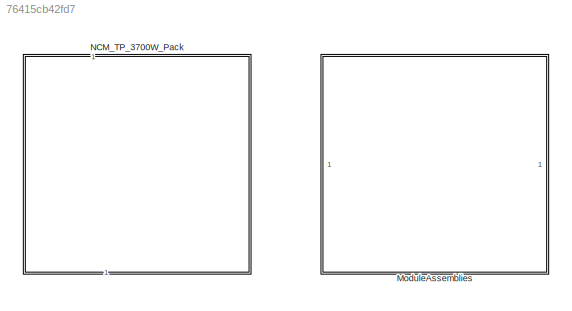
MODEL slx_76415cb42fd7
KIND library
CONFIG AbsTol = auto
CONFIG EnableMultiTasking = off
CONFIG FixedStep = auto
CONFIG MaxStep = auto
CONFIG MinStep = auto
CONFIG RelTol = 1e-3
CONFIG SampleTimeConstraint = Unconstrained
CONFIG SolverName = VariableStepAuto
CONFIG StartTime = 0.0
CONFIG StopTime = 10.0
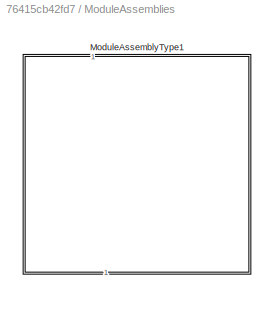
BLOCK [SubSystem] ModuleAssemblies
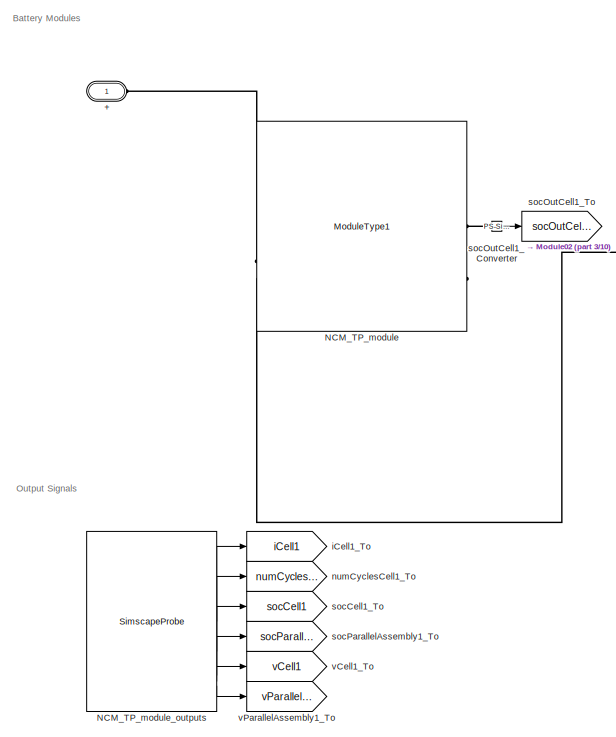
[diagram: ModuleAssemblies/ModuleAssemblyType1 - part 1/10, top left region]
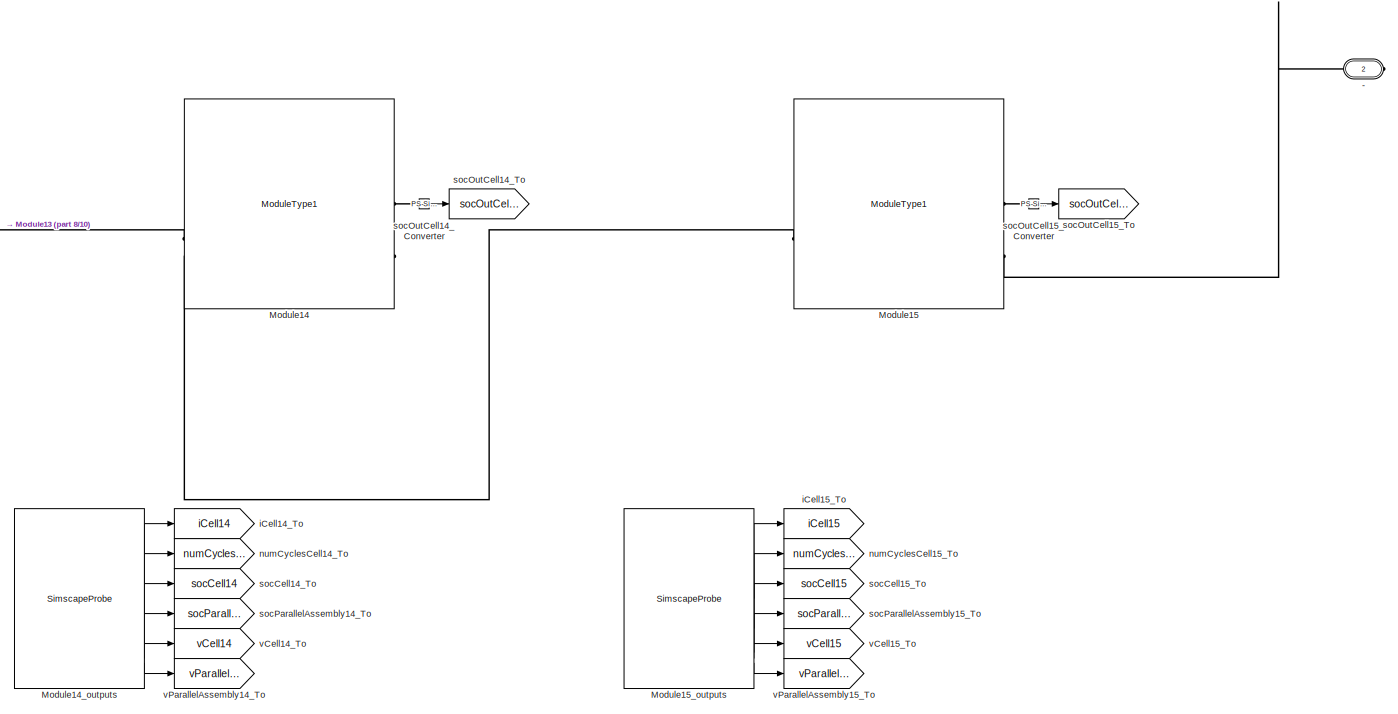
[diagram: ModuleAssemblies/ModuleAssemblyType1 - part 2/10, top right region]
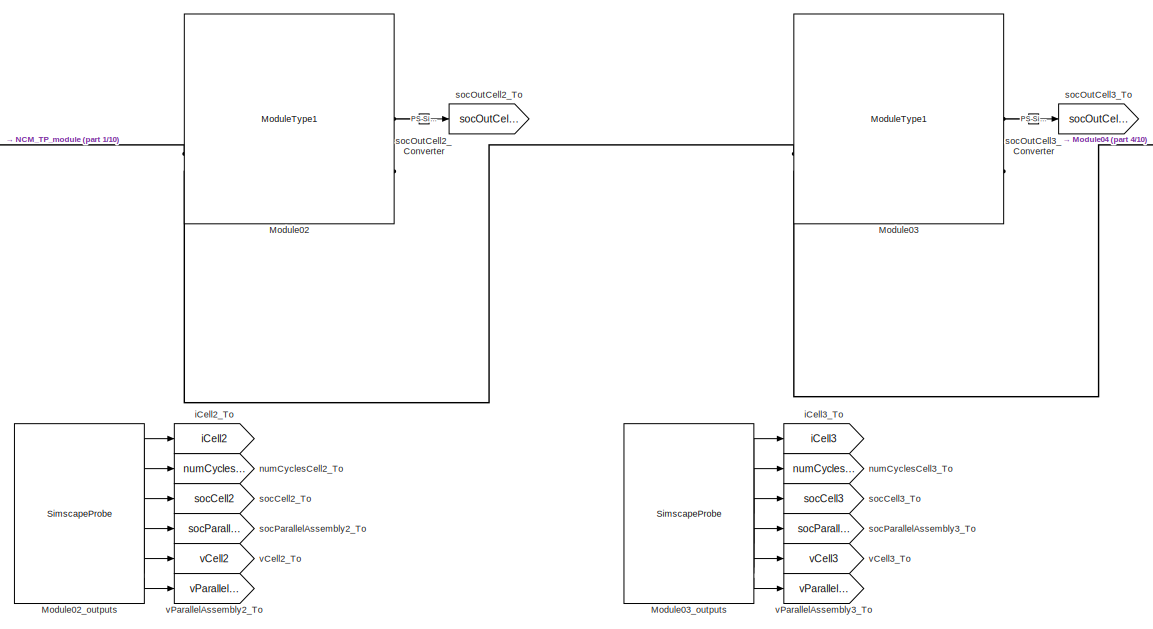
[diagram: ModuleAssemblies/ModuleAssemblyType1 - part 3/10, top left region]
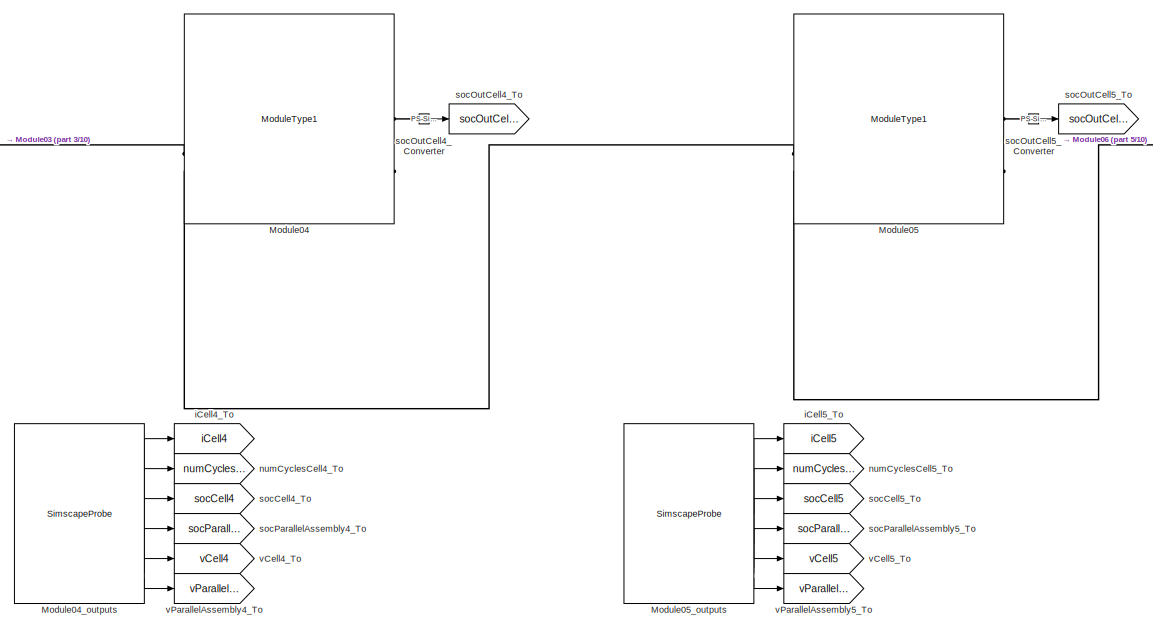
[diagram: ModuleAssemblies/ModuleAssemblyType1 - part 4/10, top left region]
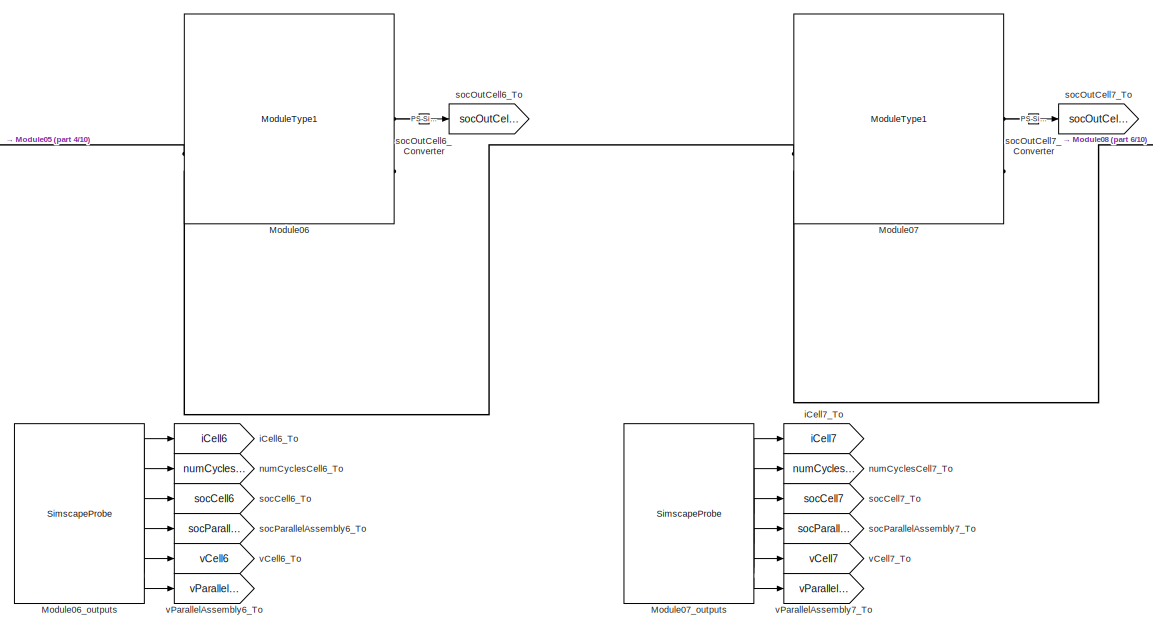
[diagram: ModuleAssemblies/ModuleAssemblyType1 - part 5/10, top center region]
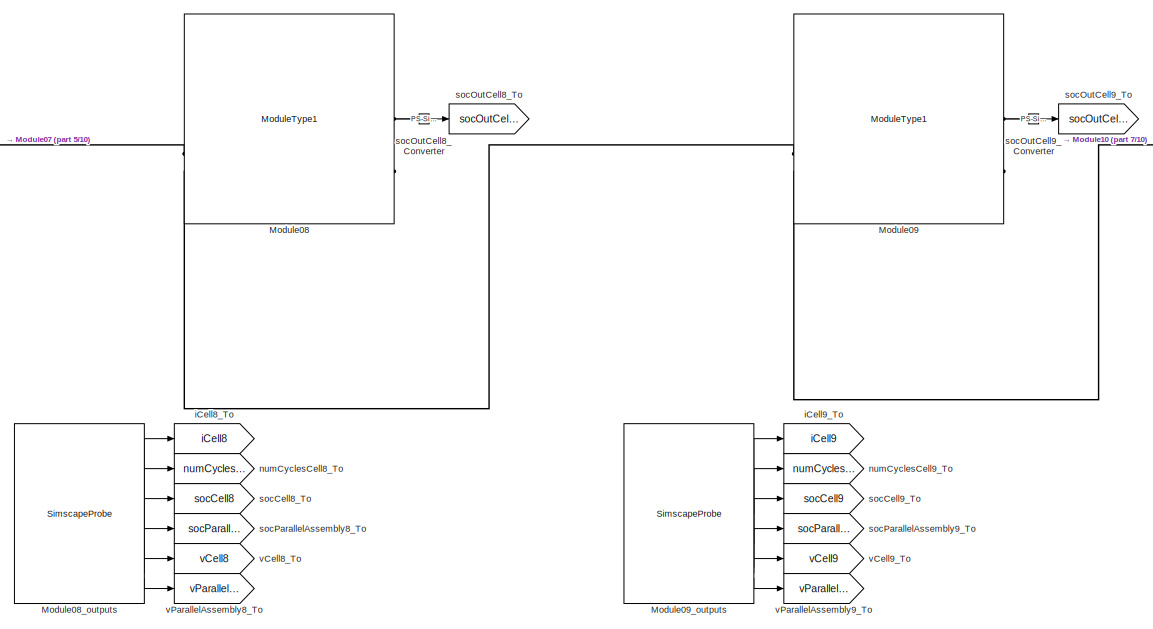
[diagram: ModuleAssemblies/ModuleAssemblyType1 - part 6/10, top center region]
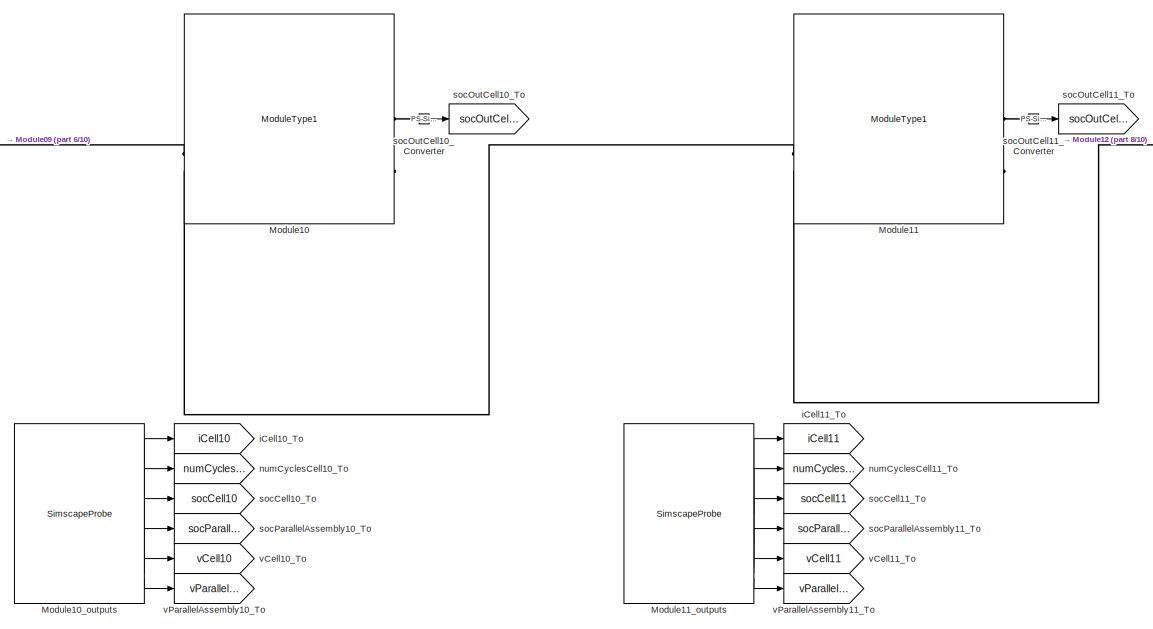
[diagram: ModuleAssemblies/ModuleAssemblyType1 - part 7/10, top center region]
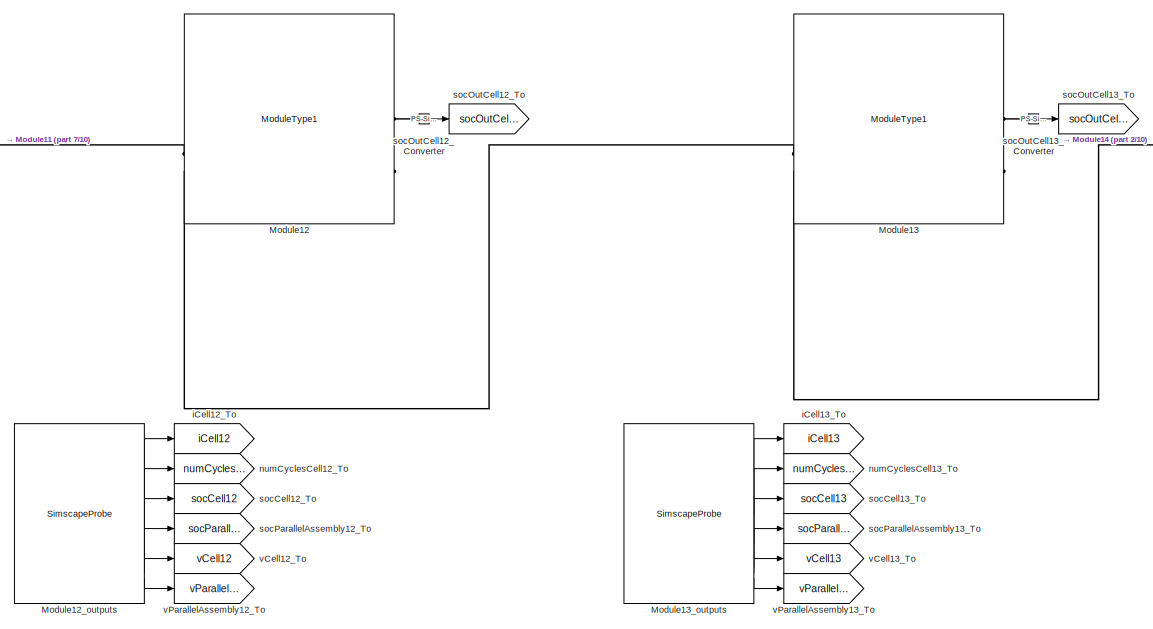
[diagram: ModuleAssemblies/ModuleAssemblyType1 - part 8/10, top right region]
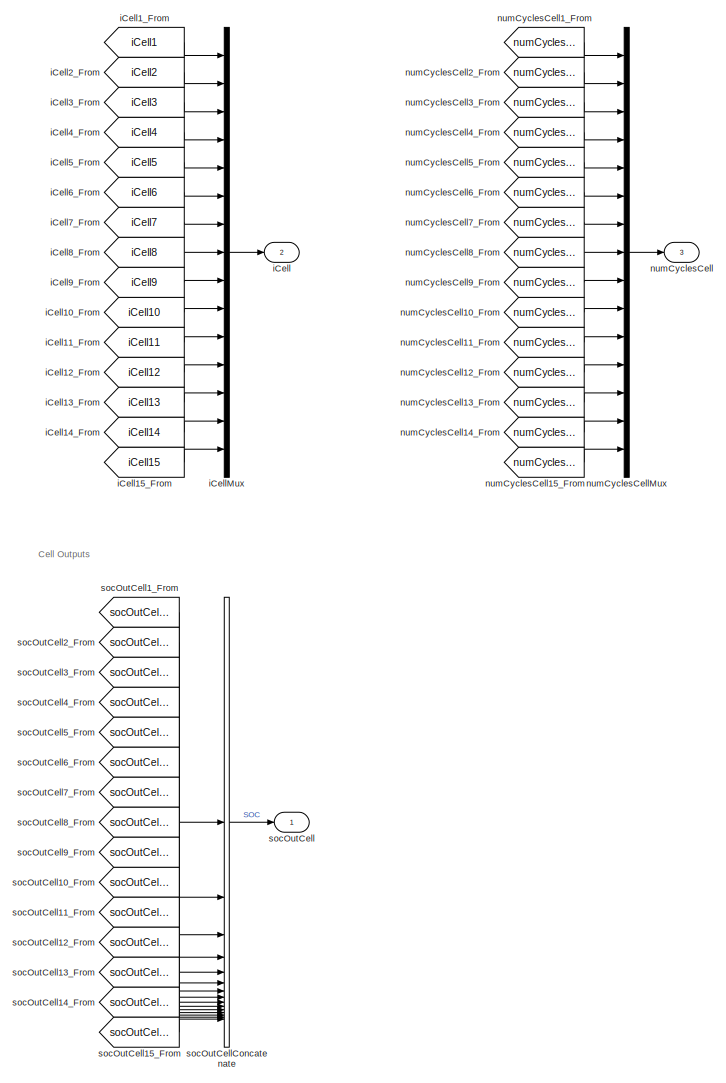
[diagram: ModuleAssemblies/ModuleAssemblyType1 - part 9/10, bottom left region]
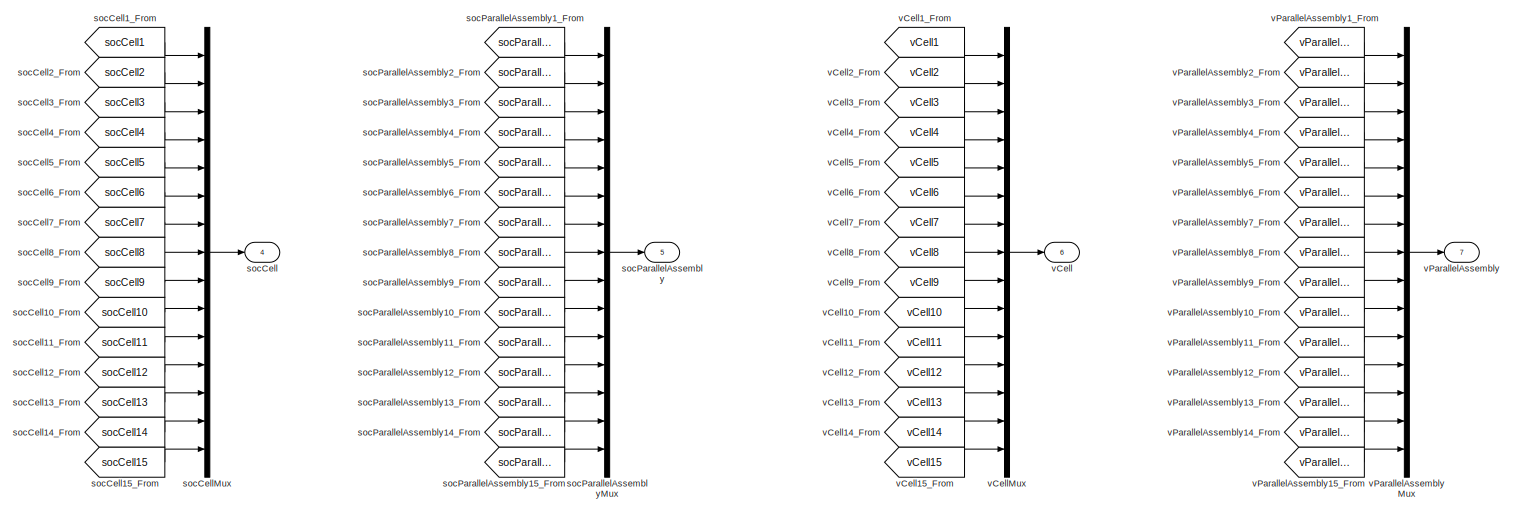
[diagram: ModuleAssemblies/ModuleAssemblyType1 - part 10/10, middle left region]
BLOCK [SubSystem] ModuleAssemblies/ModuleAssemblyType1
  CopyFcn = battery_builder_rtmsupport('copyfcn',gcbh);
  LoadFcn = battery_builder_rtmsupport('loadfcn',gcbh);
  PortSchema = {"entries":[{"content":{"sides":[{"content":{"connectorIds":["LConn1"]},"type":"ConnectorPlacement.EquallySpacedRectSide","uuid":"ade6cf47-5c74-4de5-b63e-38ab085eaa81"},{"content":{"connectorIds":["RConn1"],"side":"RIGHT"},"type":"ConnectorPlacement.EquallySpacedRectSide","uuid":"71e99cc0-4e29-44db-a862-89332aff9194"},{"content":{"side":"TOP"},"type":"ConnectorPlacement.EquallySpacedRectSide","uui...<+419ch>  <repeated x3 — deduplicated; at blocks: ModuleAssemblyType1, NCM_TP_3700W_Pack, NCM_TP_moduleAssy>
  PreCopyFcn = battery_builder_rtmsupport('precopyfcn',gcbh);
  PreDeleteFcn = battery_builder_rtmsupport('predeletefcn',gcbh);
BLOCK [PMIOPort] ModuleAssemblies/ModuleAssemblyType1/+
  Side = Left
BLOCK [PMIOPort] ModuleAssemblies/ModuleAssemblyType1/-
  Port = 2
  Side = Right
BLOCK [Reference] ModuleAssemblies/ModuleAssemblyType1/Module02  REF=NCM_TP_3700W_Pack_lib/Modules/ModuleType1
  SourceBlock = NCM_TP_3700W_Pack_lib/Modules/ModuleType1
  SourceType = ModuleType1
BLOCK [SimscapeProbe] ModuleAssemblies/ModuleAssemblyType1/Module02_outputs
  BoundBlock = 4
  Variables = {"iCell":{"Probing":"ON"},"numCyclesCell":{"Probing":"ON"},"socCell":{"Probing":"ON"},"socParallelAssembly":{"Probing":"ON"},"vCell":{"Probing":"ON"},"vParallelAssembly":{"Probing":"ON"}}
BLOCK [Reference] ModuleAssemblies/ModuleAssemblyType1/Module03  REF=NCM_TP_3700W_Pack_lib/Modules/ModuleType1
  SourceBlock = NCM_TP_3700W_Pack_lib/Modules/ModuleType1
  SourceType = ModuleType1
BLOCK [SimscapeProbe] ModuleAssemblies/ModuleAssemblyType1/Module03_outputs
  BoundBlock = 5
  Variables = {"iCell":{"Probing":"ON"},"numCyclesCell":{"Probing":"ON"},"socCell":{"Probing":"ON"},"socParallelAssembly":{"Probing":"ON"},"vCell":{"Probing":"ON"},"vParallelAssembly":{"Probing":"ON"}}
BLOCK [Reference] ModuleAssemblies/ModuleAssemblyType1/Module04  REF=NCM_TP_3700W_Pack_lib/Modules/ModuleType1
  SourceBlock = NCM_TP_3700W_Pack_lib/Modules/ModuleType1
  SourceType = ModuleType1
BLOCK [SimscapeProbe] ModuleAssemblies/ModuleAssemblyType1/Module04_outputs
  BoundBlock = 6
  Variables = {"iCell":{"Probing":"ON"},"numCyclesCell":{"Probing":"ON"},"socCell":{"Probing":"ON"},"socParallelAssembly":{"Probing":"ON"},"vCell":{"Probing":"ON"},"vParallelAssembly":{"Probing":"ON"}}
BLOCK [Reference] ModuleAssemblies/ModuleAssemblyType1/Module05  REF=NCM_TP_3700W_Pack_lib/Modules/ModuleType1
  SourceBlock = NCM_TP_3700W_Pack_lib/Modules/ModuleType1
  SourceType = ModuleType1
BLOCK [SimscapeProbe] ModuleAssemblies/ModuleAssemblyType1/Module05_outputs
  BoundBlock = 7
  Variables = {"iCell":{"Probing":"ON"},"numCyclesCell":{"Probing":"ON"},"socCell":{"Probing":"ON"},"socParallelAssembly":{"Probing":"ON"},"vCell":{"Probing":"ON"},"vParallelAssembly":{"Probing":"ON"}}
BLOCK [Reference] ModuleAssemblies/ModuleAssemblyType1/Module06  REF=NCM_TP_3700W_Pack_lib/Modules/ModuleType1
  SourceBlock = NCM_TP_3700W_Pack_lib/Modules/ModuleType1
  SourceType = ModuleType1
BLOCK [SimscapeProbe] ModuleAssemblies/ModuleAssemblyType1/Module06_outputs
  BoundBlock = 8
  Variables = {"iCell":{"Probing":"ON"},"numCyclesCell":{"Probing":"ON"},"socCell":{"Probing":"ON"},"socParallelAssembly":{"Probing":"ON"},"vCell":{"Probing":"ON"},"vParallelAssembly":{"Probing":"ON"}}
BLOCK [Reference] ModuleAssemblies/ModuleAssemblyType1/Module07  REF=NCM_TP_3700W_Pack_lib/Modules/ModuleType1
  SourceBlock = NCM_TP_3700W_Pack_lib/Modules/ModuleType1
  SourceType = ModuleType1
BLOCK [SimscapeProbe] ModuleAssemblies/ModuleAssemblyType1/Module07_outputs
  BoundBlock = 9
  Variables = {"iCell":{"Probing":"ON"},"numCyclesCell":{"Probing":"ON"},"socCell":{"Probing":"ON"},"socParallelAssembly":{"Probing":"ON"},"vCell":{"Probing":"ON"},"vParallelAssembly":{"Probing":"ON"}}
BLOCK [Reference] ModuleAssemblies/ModuleAssemblyType1/Module08  REF=NCM_TP_3700W_Pack_lib/Modules/ModuleType1
  SourceBlock = NCM_TP_3700W_Pack_lib/Modules/ModuleType1
  SourceType = ModuleType1
BLOCK [SimscapeProbe] ModuleAssemblies/ModuleAssemblyType1/Module08_outputs
  BoundBlock = 10
  Variables = {"iCell":{"Probing":"ON"},"numCyclesCell":{"Probing":"ON"},"socCell":{"Probing":"ON"},"socParallelAssembly":{"Probing":"ON"},"vCell":{"Probing":"ON"},"vParallelAssembly":{"Probing":"ON"}}
BLOCK [Reference] ModuleAssemblies/ModuleAssemblyType1/Module09  REF=NCM_TP_3700W_Pack_lib/Modules/ModuleType1
  SourceBlock = NCM_TP_3700W_Pack_lib/Modules/ModuleType1
  SourceType = ModuleType1
BLOCK [SimscapeProbe] ModuleAssemblies/ModuleAssemblyType1/Module09_outputs
  BoundBlock = 11
  Variables = {"iCell":{"Probing":"ON"},"numCyclesCell":{"Probing":"ON"},"socCell":{"Probing":"ON"},"socParallelAssembly":{"Probing":"ON"},"vCell":{"Probing":"ON"},"vParallelAssembly":{"Probing":"ON"}}
BLOCK [Reference] ModuleAssemblies/ModuleAssemblyType1/Module10  REF=NCM_TP_3700W_Pack_lib/Modules/ModuleType1
  SourceBlock = NCM_TP_3700W_Pack_lib/Modules/ModuleType1
  SourceType = ModuleType1
BLOCK [SimscapeProbe] ModuleAssemblies/ModuleAssemblyType1/Module10_outputs
  BoundBlock = 12
  Variables = {"iCell":{"Probing":"ON"},"numCyclesCell":{"Probing":"ON"},"socCell":{"Probing":"ON"},"socParallelAssembly":{"Probing":"ON"},"vCell":{"Probing":"ON"},"vParallelAssembly":{"Probing":"ON"}}
BLOCK [Reference] ModuleAssemblies/ModuleAssemblyType1/Module11  REF=NCM_TP_3700W_Pack_lib/Modules/ModuleType1
  SourceBlock = NCM_TP_3700W_Pack_lib/Modules/ModuleType1
  SourceType = ModuleType1
BLOCK [SimscapeProbe] ModuleAssemblies/ModuleAssemblyType1/Module11_outputs
  BoundBlock = 13
  Variables = {"iCell":{"Probing":"ON"},"numCyclesCell":{"Probing":"ON"},"socCell":{"Probing":"ON"},"socParallelAssembly":{"Probing":"ON"},"vCell":{"Probing":"ON"},"vParallelAssembly":{"Probing":"ON"}}
BLOCK [Reference] ModuleAssemblies/ModuleAssemblyType1/Module12  REF=NCM_TP_3700W_Pack_lib/Modules/ModuleType1
  SourceBlock = NCM_TP_3700W_Pack_lib/Modules/ModuleType1
  SourceType = ModuleType1
BLOCK [SimscapeProbe] ModuleAssemblies/ModuleAssemblyType1/Module12_outputs
  BoundBlock = 14
  Variables = {"iCell":{"Probing":"ON"},"numCyclesCell":{"Probing":"ON"},"socCell":{"Probing":"ON"},"socParallelAssembly":{"Probing":"ON"},"vCell":{"Probing":"ON"},"vParallelAssembly":{"Probing":"ON"}}
BLOCK [Reference] ModuleAssemblies/ModuleAssemblyType1/Module13  REF=NCM_TP_3700W_Pack_lib/Modules/ModuleType1
  SourceBlock = NCM_TP_3700W_Pack_lib/Modules/ModuleType1
  SourceType = ModuleType1
BLOCK [SimscapeProbe] ModuleAssemblies/ModuleAssemblyType1/Module13_outputs
  BoundBlock = 15
  Variables = {"iCell":{"Probing":"ON"},"numCyclesCell":{"Probing":"ON"},"socCell":{"Probing":"ON"},"socParallelAssembly":{"Probing":"ON"},"vCell":{"Probing":"ON"},"vParallelAssembly":{"Probing":"ON"}}
BLOCK [Reference] ModuleAssemblies/ModuleAssemblyType1/Module14  REF=NCM_TP_3700W_Pack_lib/Modules/ModuleType1
  SourceBlock = NCM_TP_3700W_Pack_lib/Modules/ModuleType1
  SourceType = ModuleType1
BLOCK [SimscapeProbe] ModuleAssemblies/ModuleAssemblyType1/Module14_outputs
  BoundBlock = 16
  Variables = {"iCell":{"Probing":"ON"},"numCyclesCell":{"Probing":"ON"},"socCell":{"Probing":"ON"},"socParallelAssembly":{"Probing":"ON"},"vCell":{"Probing":"ON"},"vParallelAssembly":{"Probing":"ON"}}
BLOCK [Reference] ModuleAssemblies/ModuleAssemblyType1/Module15  REF=NCM_TP_3700W_Pack_lib/Modules/ModuleType1
  SourceBlock = NCM_TP_3700W_Pack_lib/Modules/ModuleType1
  SourceType = ModuleType1
BLOCK [SimscapeProbe] ModuleAssemblies/ModuleAssemblyType1/Module15_outputs
  BoundBlock = 17
  Variables = {"iCell":{"Probing":"ON"},"numCyclesCell":{"Probing":"ON"},"socCell":{"Probing":"ON"},"socParallelAssembly":{"Probing":"ON"},"vCell":{"Probing":"ON"},"vParallelAssembly":{"Probing":"ON"}}
BLOCK [Reference] ModuleAssemblies/ModuleAssemblyType1/NCM_TP_module  REF=NCM_TP_3700W_Pack_lib/Modules/ModuleType1
  SourceBlock = NCM_TP_3700W_Pack_lib/Modules/ModuleType1
  SourceType = ModuleType1
BLOCK [SimscapeProbe] ModuleAssemblies/ModuleAssemblyType1/NCM_TP_module_outputs
  BoundBlock = 3
  Variables = {"iCell":{"Probing":"ON"},"numCyclesCell":{"Probing":"ON"},"socCell":{"Probing":"ON"},"socParallelAssembly":{"Probing":"ON"},"vCell":{"Probing":"ON"},"vParallelAssembly":{"Probing":"ON"}}
BLOCK [Outport] ModuleAssemblies/ModuleAssemblyType1/iCell
  Port = 2
BLOCK [From] ModuleAssemblies/ModuleAssemblyType1/iCell10_From
  GotoTag = iCell10
BLOCK [Goto] ModuleAssemblies/ModuleAssemblyType1/iCell10_To
  GotoTag = iCell10
BLOCK [From] ModuleAssemblies/ModuleAssemblyType1/iCell11_From
  GotoTag = iCell11
BLOCK [Goto] ModuleAssemblies/ModuleAssemblyType1/iCell11_To
  GotoTag = iCell11
BLOCK [From] ModuleAssemblies/ModuleAssemblyType1/iCell12_From
  GotoTag = iCell12
BLOCK [Goto] ModuleAssemblies/ModuleAssemblyType1/iCell12_To
  GotoTag = iCell12
BLOCK [From] ModuleAssemblies/ModuleAssemblyType1/iCell13_From
  GotoTag = iCell13
BLOCK [Goto] ModuleAssemblies/ModuleAssemblyType1/iCell13_To
  GotoTag = iCell13
BLOCK [From] ModuleAssemblies/ModuleAssemblyType1/iCell14_From
  GotoTag = iCell14
BLOCK [Goto] ModuleAssemblies/ModuleAssemblyType1/iCell14_To
  GotoTag = iCell14
BLOCK [From] ModuleAssemblies/ModuleAssemblyType1/iCell15_From
  GotoTag = iCell15
BLOCK [Goto] ModuleAssemblies/ModuleAssemblyType1/iCell15_To
  GotoTag = iCell15
BLOCK [From] ModuleAssemblies/ModuleAssemblyType1/iCell1_From
  GotoTag = iCell1
BLOCK [Goto] ModuleAssemblies/ModuleAssemblyType1/iCell1_To
  GotoTag = iCell1
BLOCK [From] ModuleAssemblies/ModuleAssemblyType1/iCell2_From
  GotoTag = iCell2
BLOCK [Goto] ModuleAssemblies/ModuleAssemblyType1/iCell2_To
  GotoTag = iCell2
BLOCK [From] ModuleAssemblies/ModuleAssemblyType1/iCell3_From
  GotoTag = iCell3
BLOCK [Goto] ModuleAssemblies/ModuleAssemblyType1/iCell3_To
  GotoTag = iCell3
BLOCK [From] ModuleAssemblies/ModuleAssemblyType1/iCell4_From
  GotoTag = iCell4
BLOCK [Goto] ModuleAssemblies/ModuleAssemblyType1/iCell4_To
  GotoTag = iCell4
BLOCK [From] ModuleAssemblies/ModuleAssemblyType1/iCell5_From
  GotoTag = iCell5
BLOCK [Goto] ModuleAssemblies/ModuleAssemblyType1/iCell5_To
  GotoTag = iCell5
BLOCK [From] ModuleAssemblies/ModuleAssemblyType1/iCell6_From
  GotoTag = iCell6
BLOCK [Goto] ModuleAssemblies/ModuleAssemblyType1/iCell6_To
  GotoTag = iCell6
BLOCK [From] ModuleAssemblies/ModuleAssemblyType1/iCell7_From
  GotoTag = iCell7
BLOCK [Goto] ModuleAssemblies/ModuleAssemblyType1/iCell7_To
  GotoTag = iCell7
BLOCK [From] ModuleAssemblies/ModuleAssemblyType1/iCell8_From
  GotoTag = iCell8
BLOCK [Goto] ModuleAssemblies/ModuleAssemblyType1/iCell8_To
  GotoTag = iCell8
BLOCK [From] ModuleAssemblies/ModuleAssemblyType1/iCell9_From
  GotoTag = iCell9
BLOCK [Goto] ModuleAssemblies/ModuleAssemblyType1/iCell9_To
  GotoTag = iCell9
BLOCK [Mux] ModuleAssemblies/ModuleAssemblyType1/iCellMux
  DisplayOption = bar
  Inputs = 15
BLOCK [Outport] ModuleAssemblies/ModuleAssemblyType1/numCyclesCell
  Port = 3
BLOCK [From] ModuleAssemblies/ModuleAssemblyType1/numCyclesCell10_From
  GotoTag = numCyclesCell10
BLOCK [Goto] ModuleAssemblies/ModuleAssemblyType1/numCyclesCell10_To
  GotoTag = numCyclesCell10
BLOCK [From] ModuleAssemblies/ModuleAssemblyType1/numCyclesCell11_From
  GotoTag = numCyclesCell11
BLOCK [Goto] ModuleAssemblies/ModuleAssemblyType1/numCyclesCell11_To
  GotoTag = numCyclesCell11
BLOCK [From] ModuleAssemblies/ModuleAssemblyType1/numCyclesCell12_From
  GotoTag = numCyclesCell12
BLOCK [Goto] ModuleAssemblies/ModuleAssemblyType1/numCyclesCell12_To
  GotoTag = numCyclesCell12
BLOCK [From] ModuleAssemblies/ModuleAssemblyType1/numCyclesCell13_From
  GotoTag = numCyclesCell13
BLOCK [Goto] ModuleAssemblies/ModuleAssemblyType1/numCyclesCell13_To
  GotoTag = numCyclesCell13
BLOCK [From] ModuleAssemblies/ModuleAssemblyType1/numCyclesCell14_From
  GotoTag = numCyclesCell14
BLOCK [Goto] ModuleAssemblies/ModuleAssemblyType1/numCyclesCell14_To
  GotoTag = numCyclesCell14
BLOCK [From] ModuleAssemblies/ModuleAssemblyType1/numCyclesCell15_From
  GotoTag = numCyclesCell15
BLOCK [Goto] ModuleAssemblies/ModuleAssemblyType1/numCyclesCell15_To
  GotoTag = numCyclesCell15
BLOCK [From] ModuleAssemblies/ModuleAssemblyType1/numCyclesCell1_From
  GotoTag = numCyclesCell1
BLOCK [Goto] ModuleAssemblies/ModuleAssemblyType1/numCyclesCell1_To
  GotoTag = numCyclesCell1
BLOCK [From] ModuleAssemblies/ModuleAssemblyType1/numCyclesCell2_From
  GotoTag = numCyclesCell2
BLOCK [Goto] ModuleAssemblies/ModuleAssemblyType1/numCyclesCell2_To
  GotoTag = numCyclesCell2
BLOCK [From] ModuleAssemblies/ModuleAssemblyType1/numCyclesCell3_From
  GotoTag = numCyclesCell3
BLOCK [Goto] ModuleAssemblies/ModuleAssemblyType1/numCyclesCell3_To
  GotoTag = numCyclesCell3
BLOCK [From] ModuleAssemblies/ModuleAssemblyType1/numCyclesCell4_From
  GotoTag = numCyclesCell4
BLOCK [Goto] ModuleAssemblies/ModuleAssemblyType1/numCyclesCell4_To
  GotoTag = numCyclesCell4
BLOCK [From] ModuleAssemblies/ModuleAssemblyType1/numCyclesCell5_From
  GotoTag = numCyclesCell5
BLOCK [Goto] ModuleAssemblies/ModuleAssemblyType1/numCyclesCell5_To
  GotoTag = numCyclesCell5
BLOCK [From] ModuleAssemblies/ModuleAssemblyType1/numCyclesCell6_From
  GotoTag = numCyclesCell6
BLOCK [Goto] ModuleAssemblies/ModuleAssemblyType1/numCyclesCell6_To
  GotoTag = numCyclesCell6
BLOCK [From] ModuleAssemblies/ModuleAssemblyType1/numCyclesCell7_From
  GotoTag = numCyclesCell7
BLOCK [Goto] ModuleAssemblies/ModuleAssemblyType1/numCyclesCell7_To
  GotoTag = numCyclesCell7
BLOCK [From] ModuleAssemblies/ModuleAssemblyType1/numCyclesCell8_From
  GotoTag = numCyclesCell8
BLOCK [Goto] ModuleAssemblies/ModuleAssemblyType1/numCyclesCell8_To
  GotoTag = numCyclesCell8
BLOCK [From] ModuleAssemblies/ModuleAssemblyType1/numCyclesCell9_From
  GotoTag = numCyclesCell9
BLOCK [Goto] ModuleAssemblies/ModuleAssemblyType1/numCyclesCell9_To
  GotoTag = numCyclesCell9
BLOCK [Mux] ModuleAssemblies/ModuleAssemblyType1/numCyclesCellMux
  DisplayOption = bar
  Inputs = 15
BLOCK [Outport] ModuleAssemblies/ModuleAssemblyType1/socCell
  Port = 4
BLOCK [From] ModuleAssemblies/ModuleAssemblyType1/socCell10_From
  GotoTag = socCell10
BLOCK [Goto] ModuleAssemblies/ModuleAssemblyType1/socCell10_To
  GotoTag = socCell10
BLOCK [From] ModuleAssemblies/ModuleAssemblyType1/socCell11_From
  GotoTag = socCell11
BLOCK [Goto] ModuleAssemblies/ModuleAssemblyType1/socCell11_To
  GotoTag = socCell11
BLOCK [From] ModuleAssemblies/ModuleAssemblyType1/socCell12_From
  GotoTag = socCell12
BLOCK [Goto] ModuleAssemblies/ModuleAssemblyType1/socCell12_To
  GotoTag = socCell12
BLOCK [From] ModuleAssemblies/ModuleAssemblyType1/socCell13_From
  GotoTag = socCell13
BLOCK [Goto] ModuleAssemblies/ModuleAssemblyType1/socCell13_To
  GotoTag = socCell13
BLOCK [From] ModuleAssemblies/ModuleAssemblyType1/socCell14_From
  GotoTag = socCell14
BLOCK [Goto] ModuleAssemblies/ModuleAssemblyType1/socCell14_To
  GotoTag = socCell14
BLOCK [From] ModuleAssemblies/ModuleAssemblyType1/socCell15_From
  GotoTag = socCell15
BLOCK [Goto] ModuleAssemblies/ModuleAssemblyType1/socCell15_To
  GotoTag = socCell15
BLOCK [From] ModuleAssemblies/ModuleAssemblyType1/socCell1_From
  GotoTag = socCell1
BLOCK [Goto] ModuleAssemblies/ModuleAssemblyType1/socCell1_To
  GotoTag = socCell1
BLOCK [From] ModuleAssemblies/ModuleAssemblyType1/socCell2_From
  GotoTag = socCell2
BLOCK [Goto] ModuleAssemblies/ModuleAssemblyType1/socCell2_To
  GotoTag = socCell2
BLOCK [From] ModuleAssemblies/ModuleAssemblyType1/socCell3_From
  GotoTag = socCell3
BLOCK [Goto] ModuleAssemblies/ModuleAssemblyType1/socCell3_To
  GotoTag = socCell3
BLOCK [From] ModuleAssemblies/ModuleAssemblyType1/socCell4_From
  GotoTag = socCell4
BLOCK [Goto] ModuleAssemblies/ModuleAssemblyType1/socCell4_To
  GotoTag = socCell4
BLOCK [From] ModuleAssemblies/ModuleAssemblyType1/socCell5_From
  GotoTag = socCell5
BLOCK [Goto] ModuleAssemblies/ModuleAssemblyType1/socCell5_To
  GotoTag = socCell5
BLOCK [From] ModuleAssemblies/ModuleAssemblyType1/socCell6_From
  GotoTag = socCell6
BLOCK [Goto] ModuleAssemblies/ModuleAssemblyType1/socCell6_To
  GotoTag = socCell6
BLOCK [From] ModuleAssemblies/ModuleAssemblyType1/socCell7_From
  GotoTag = socCell7
BLOCK [Goto] ModuleAssemblies/ModuleAssemblyType1/socCell7_To
  GotoTag = socCell7
BLOCK [From] ModuleAssemblies/ModuleAssemblyType1/socCell8_From
  GotoTag = socCell8
BLOCK [Goto] ModuleAssemblies/ModuleAssemblyType1/socCell8_To
  GotoTag = socCell8
BLOCK [From] ModuleAssemblies/ModuleAssemblyType1/socCell9_From
  GotoTag = socCell9
BLOCK [Goto] ModuleAssemblies/ModuleAssemblyType1/socCell9_To
  GotoTag = socCell9
BLOCK [Mux] ModuleAssemblies/ModuleAssemblyType1/socCellMux
  DisplayOption = bar
  Inputs = 15
BLOCK [Outport] ModuleAssemblies/ModuleAssemblyType1/socOutCell
  IconDisplay = Signal name
BLOCK [Reference] ModuleAssemblies/ModuleAssemblyType1/socOutCell10_Converter  REF=nesl_utility/PS-Simulink
Converter
  SourceBlock = nesl_utility/PS-Simulink\nConverter
  SourceType = PS-Simulink\nConverter
BLOCK [From] ModuleAssemblies/ModuleAssemblyType1/socOutCell10_From
  GotoTag = socOutCell10
BLOCK [Goto] ModuleAssemblies/ModuleAssemblyType1/socOutCell10_To
  GotoTag = socOutCell10
BLOCK [Reference] ModuleAssemblies/ModuleAssemblyType1/socOutCell11_Converter  REF=nesl_utility/PS-Simulink
Converter
  SourceBlock = nesl_utility/PS-Simulink\nConverter
  SourceType = PS-Simulink\nConverter
BLOCK [From] ModuleAssemblies/ModuleAssemblyType1/socOutCell11_From
  GotoTag = socOutCell11
BLOCK [Goto] ModuleAssemblies/ModuleAssemblyType1/socOutCell11_To
  GotoTag = socOutCell11
BLOCK [Reference] ModuleAssemblies/ModuleAssemblyType1/socOutCell12_Converter  REF=nesl_utility/PS-Simulink
Converter
  SourceBlock = nesl_utility/PS-Simulink\nConverter
  SourceType = PS-Simulink\nConverter
BLOCK [From] ModuleAssemblies/ModuleAssemblyType1/socOutCell12_From
  GotoTag = socOutCell12
BLOCK [Goto] ModuleAssemblies/ModuleAssemblyType1/socOutCell12_To
  GotoTag = socOutCell12
BLOCK [Reference] ModuleAssemblies/ModuleAssemblyType1/socOutCell13_Converter  REF=nesl_utility/PS-Simulink
Converter
  SourceBlock = nesl_utility/PS-Simulink\nConverter
  SourceType = PS-Simulink\nConverter
BLOCK [From] ModuleAssemblies/ModuleAssemblyType1/socOutCell13_From
  GotoTag = socOutCell13
BLOCK [Goto] ModuleAssemblies/ModuleAssemblyType1/socOutCell13_To
  GotoTag = socOutCell13
BLOCK [Reference] ModuleAssemblies/ModuleAssemblyType1/socOutCell14_Converter  REF=nesl_utility/PS-Simulink
Converter
  SourceBlock = nesl_utility/PS-Simulink\nConverter
  SourceType = PS-Simulink\nConverter
BLOCK [From] ModuleAssemblies/ModuleAssemblyType1/socOutCell14_From
  GotoTag = socOutCell14
BLOCK [Goto] ModuleAssemblies/ModuleAssemblyType1/socOutCell14_To
  GotoTag = socOutCell14
BLOCK [Reference] ModuleAssemblies/ModuleAssemblyType1/socOutCell15_Converter  REF=nesl_utility/PS-Simulink
Converter
  SourceBlock = nesl_utility/PS-Simulink\nConverter
  SourceType = PS-Simulink\nConverter
BLOCK [From] ModuleAssemblies/ModuleAssemblyType1/socOutCell15_From
  GotoTag = socOutCell15
BLOCK [Goto] ModuleAssemblies/ModuleAssemblyType1/socOutCell15_To
  GotoTag = socOutCell15
BLOCK [Reference] ModuleAssemblies/ModuleAssemblyType1/socOutCell1_Converter  REF=nesl_utility/PS-Simulink
Converter
  SourceBlock = nesl_utility/PS-Simulink\nConverter
  SourceType = PS-Simulink\nConverter
BLOCK [From] ModuleAssemblies/ModuleAssemblyType1/socOutCell1_From
  GotoTag = socOutCell1
BLOCK [Goto] ModuleAssemblies/ModuleAssemblyType1/socOutCell1_To
  GotoTag = socOutCell1
BLOCK [Reference] ModuleAssemblies/ModuleAssemblyType1/socOutCell2_Converter  REF=nesl_utility/PS-Simulink
Converter
  SourceBlock = nesl_utility/PS-Simulink\nConverter
  SourceType = PS-Simulink\nConverter
BLOCK [From] ModuleAssemblies/ModuleAssemblyType1/socOutCell2_From
  GotoTag = socOutCell2
BLOCK [Goto] ModuleAssemblies/ModuleAssemblyType1/socOutCell2_To
  GotoTag = socOutCell2
BLOCK [Reference] ModuleAssemblies/ModuleAssemblyType1/socOutCell3_Converter  REF=nesl_utility/PS-Simulink
Converter
  SourceBlock = nesl_utility/PS-Simulink\nConverter
  SourceType = PS-Simulink\nConverter
BLOCK [From] ModuleAssemblies/ModuleAssemblyType1/socOutCell3_From
  GotoTag = socOutCell3
BLOCK [Goto] ModuleAssemblies/ModuleAssemblyType1/socOutCell3_To
  GotoTag = socOutCell3
BLOCK [Reference] ModuleAssemblies/ModuleAssemblyType1/socOutCell4_Converter  REF=nesl_utility/PS-Simulink
Converter
  SourceBlock = nesl_utility/PS-Simulink\nConverter
  SourceType = PS-Simulink\nConverter
BLOCK [From] ModuleAssemblies/ModuleAssemblyType1/socOutCell4_From
  GotoTag = socOutCell4
BLOCK [Goto] ModuleAssemblies/ModuleAssemblyType1/socOutCell4_To
  GotoTag = socOutCell4
BLOCK [Reference] ModuleAssemblies/ModuleAssemblyType1/socOutCell5_Converter  REF=nesl_utility/PS-Simulink
Converter
  SourceBlock = nesl_utility/PS-Simulink\nConverter
  SourceType = PS-Simulink\nConverter
BLOCK [From] ModuleAssemblies/ModuleAssemblyType1/socOutCell5_From
  GotoTag = socOutCell5
BLOCK [Goto] ModuleAssemblies/ModuleAssemblyType1/socOutCell5_To
  GotoTag = socOutCell5
BLOCK [Reference] ModuleAssemblies/ModuleAssemblyType1/socOutCell6_Converter  REF=nesl_utility/PS-Simulink
Converter
  SourceBlock = nesl_utility/PS-Simulink\nConverter
  SourceType = PS-Simulink\nConverter
BLOCK [From] ModuleAssemblies/ModuleAssemblyType1/socOutCell6_From
  GotoTag = socOutCell6
BLOCK [Goto] ModuleAssemblies/ModuleAssemblyType1/socOutCell6_To
  GotoTag = socOutCell6
BLOCK [Reference] ModuleAssemblies/ModuleAssemblyType1/socOutCell7_Converter  REF=nesl_utility/PS-Simulink
Converter
  SourceBlock = nesl_utility/PS-Simulink\nConverter
  SourceType = PS-Simulink\nConverter
BLOCK [From] ModuleAssemblies/ModuleAssemblyType1/socOutCell7_From
  GotoTag = socOutCell7
BLOCK [Goto] ModuleAssemblies/ModuleAssemblyType1/socOutCell7_To
  GotoTag = socOutCell7
BLOCK [Reference] ModuleAssemblies/ModuleAssemblyType1/socOutCell8_Converter  REF=nesl_utility/PS-Simulink
Converter
  SourceBlock = nesl_utility/PS-Simulink\nConverter
  SourceType = PS-Simulink\nConverter
BLOCK [From] ModuleAssemblies/ModuleAssemblyType1/socOutCell8_From
  GotoTag = socOutCell8
BLOCK [Goto] ModuleAssemblies/ModuleAssemblyType1/socOutCell8_To
  GotoTag = socOutCell8
BLOCK [Reference] ModuleAssemblies/ModuleAssemblyType1/socOutCell9_Converter  REF=nesl_utility/PS-Simulink
Converter
  SourceBlock = nesl_utility/PS-Simulink\nConverter
  SourceType = PS-Simulink\nConverter
BLOCK [From] ModuleAssemblies/ModuleAssemblyType1/socOutCell9_From
  GotoTag = socOutCell9
BLOCK [Goto] ModuleAssemblies/ModuleAssemblyType1/socOutCell9_To
  GotoTag = socOutCell9
BLOCK [Concatenate] ModuleAssemblies/ModuleAssemblyType1/socOutCellConcatenate
  ConcatenateDimension = 2
  Mode = Multidimensional array
  NumInputs = 15
BLOCK [Outport] ModuleAssemblies/ModuleAssemblyType1/socParallelAssembly
  Port = 5
BLOCK [From] ModuleAssemblies/ModuleAssemblyType1/socParallelAssembly10_From
  GotoTag = socParallelAssembly10
BLOCK [Goto] ModuleAssemblies/ModuleAssemblyType1/socParallelAssembly10_To
  GotoTag = socParallelAssembly10
BLOCK [From] ModuleAssemblies/ModuleAssemblyType1/socParallelAssembly11_From
  GotoTag = socParallelAssembly11
BLOCK [Goto] ModuleAssemblies/ModuleAssemblyType1/socParallelAssembly11_To
  GotoTag = socParallelAssembly11
BLOCK [From] ModuleAssemblies/ModuleAssemblyType1/socParallelAssembly12_From
  GotoTag = socParallelAssembly12
BLOCK [Goto] ModuleAssemblies/ModuleAssemblyType1/socParallelAssembly12_To
  GotoTag = socParallelAssembly12
BLOCK [From] ModuleAssemblies/ModuleAssemblyType1/socParallelAssembly13_From
  GotoTag = socParallelAssembly13
BLOCK [Goto] ModuleAssemblies/ModuleAssemblyType1/socParallelAssembly13_To
  GotoTag = socParallelAssembly13
BLOCK [From] ModuleAssemblies/ModuleAssemblyType1/socParallelAssembly14_From
  GotoTag = socParallelAssembly14
BLOCK [Goto] ModuleAssemblies/ModuleAssemblyType1/socParallelAssembly14_To
  GotoTag = socParallelAssembly14
BLOCK [From] ModuleAssemblies/ModuleAssemblyType1/socParallelAssembly15_From
  GotoTag = socParallelAssembly15
BLOCK [Goto] ModuleAssemblies/ModuleAssemblyType1/socParallelAssembly15_To
  GotoTag = socParallelAssembly15
BLOCK [From] ModuleAssemblies/ModuleAssemblyType1/socParallelAssembly1_From
  GotoTag = socParallelAssembly1
BLOCK [Goto] ModuleAssemblies/ModuleAssemblyType1/socParallelAssembly1_To
  GotoTag = socParallelAssembly1
BLOCK [From] ModuleAssemblies/ModuleAssemblyType1/socParallelAssembly2_From
  GotoTag = socParallelAssembly2
BLOCK [Goto] ModuleAssemblies/ModuleAssemblyType1/socParallelAssembly2_To
  GotoTag = socParallelAssembly2
BLOCK [From] ModuleAssemblies/ModuleAssemblyType1/socParallelAssembly3_From
  GotoTag = socParallelAssembly3
BLOCK [Goto] ModuleAssemblies/ModuleAssemblyType1/socParallelAssembly3_To
  GotoTag = socParallelAssembly3
BLOCK [From] ModuleAssemblies/ModuleAssemblyType1/socParallelAssembly4_From
  GotoTag = socParallelAssembly4
BLOCK [Goto] ModuleAssemblies/ModuleAssemblyType1/socParallelAssembly4_To
  GotoTag = socParallelAssembly4
BLOCK [From] ModuleAssemblies/ModuleAssemblyType1/socParallelAssembly5_From
  GotoTag = socParallelAssembly5
BLOCK [Goto] ModuleAssemblies/ModuleAssemblyType1/socParallelAssembly5_To
  GotoTag = socParallelAssembly5
BLOCK [From] ModuleAssemblies/ModuleAssemblyType1/socParallelAssembly6_From
  GotoTag = socParallelAssembly6
BLOCK [Goto] ModuleAssemblies/ModuleAssemblyType1/socParallelAssembly6_To
  GotoTag = socParallelAssembly6
BLOCK [From] ModuleAssemblies/ModuleAssemblyType1/socParallelAssembly7_From
  GotoTag = socParallelAssembly7
BLOCK [Goto] ModuleAssemblies/ModuleAssemblyType1/socParallelAssembly7_To
  GotoTag = socParallelAssembly7
BLOCK [From] ModuleAssemblies/ModuleAssemblyType1/socParallelAssembly8_From
  GotoTag = socParallelAssembly8
BLOCK [Goto] ModuleAssemblies/ModuleAssemblyType1/socParallelAssembly8_To
  GotoTag = socParallelAssembly8
BLOCK [From] ModuleAssemblies/ModuleAssemblyType1/socParallelAssembly9_From
  GotoTag = socParallelAssembly9
BLOCK [Goto] ModuleAssemblies/ModuleAssemblyType1/socParallelAssembly9_To
  GotoTag = socParallelAssembly9
BLOCK [Mux] ModuleAssemblies/ModuleAssemblyType1/socParallelAssemblyMux
  DisplayOption = bar
  Inputs = 15
BLOCK [Outport] ModuleAssemblies/ModuleAssemblyType1/vCell
  Port = 6
BLOCK [From] ModuleAssemblies/ModuleAssemblyType1/vCell10_From
  GotoTag = vCell10
BLOCK [Goto] ModuleAssemblies/ModuleAssemblyType1/vCell10_To
  GotoTag = vCell10
BLOCK [From] ModuleAssemblies/ModuleAssemblyType1/vCell11_From
  GotoTag = vCell11
BLOCK [Goto] ModuleAssemblies/ModuleAssemblyType1/vCell11_To
  GotoTag = vCell11
BLOCK [From] ModuleAssemblies/ModuleAssemblyType1/vCell12_From
  GotoTag = vCell12
BLOCK [Goto] ModuleAssemblies/ModuleAssemblyType1/vCell12_To
  GotoTag = vCell12
BLOCK [From] ModuleAssemblies/ModuleAssemblyType1/vCell13_From
  GotoTag = vCell13
BLOCK [Goto] ModuleAssemblies/ModuleAssemblyType1/vCell13_To
  GotoTag = vCell13
BLOCK [From] ModuleAssemblies/ModuleAssemblyType1/vCell14_From
  GotoTag = vCell14
BLOCK [Goto] ModuleAssemblies/ModuleAssemblyType1/vCell14_To
  GotoTag = vCell14
BLOCK [From] ModuleAssemblies/ModuleAssemblyType1/vCell15_From
  GotoTag = vCell15
BLOCK [Goto] ModuleAssemblies/ModuleAssemblyType1/vCell15_To
  GotoTag = vCell15
BLOCK [From] ModuleAssemblies/ModuleAssemblyType1/vCell1_From
  GotoTag = vCell1
BLOCK [Goto] ModuleAssemblies/ModuleAssemblyType1/vCell1_To
  GotoTag = vCell1
BLOCK [From] ModuleAssemblies/ModuleAssemblyType1/vCell2_From
  GotoTag = vCell2
BLOCK [Goto] ModuleAssemblies/ModuleAssemblyType1/vCell2_To
  GotoTag = vCell2
BLOCK [From] ModuleAssemblies/ModuleAssemblyType1/vCell3_From
  GotoTag = vCell3
BLOCK [Goto] ModuleAssemblies/ModuleAssemblyType1/vCell3_To
  GotoTag = vCell3
BLOCK [From] ModuleAssemblies/ModuleAssemblyType1/vCell4_From
  GotoTag = vCell4
BLOCK [Goto] ModuleAssemblies/ModuleAssemblyType1/vCell4_To
  GotoTag = vCell4
BLOCK [From] ModuleAssemblies/ModuleAssemblyType1/vCell5_From
  GotoTag = vCell5
BLOCK [Goto] ModuleAssemblies/ModuleAssemblyType1/vCell5_To
  GotoTag = vCell5
BLOCK [From] ModuleAssemblies/ModuleAssemblyType1/vCell6_From
  GotoTag = vCell6
BLOCK [Goto] ModuleAssemblies/ModuleAssemblyType1/vCell6_To
  GotoTag = vCell6
BLOCK [From] ModuleAssemblies/ModuleAssemblyType1/vCell7_From
  GotoTag = vCell7
BLOCK [Goto] ModuleAssemblies/ModuleAssemblyType1/vCell7_To
  GotoTag = vCell7
BLOCK [From] ModuleAssemblies/ModuleAssemblyType1/vCell8_From
  GotoTag = vCell8
BLOCK [Goto] ModuleAssemblies/ModuleAssemblyType1/vCell8_To
  GotoTag = vCell8
BLOCK [From] ModuleAssemblies/ModuleAssemblyType1/vCell9_From
  GotoTag = vCell9
BLOCK [Goto] ModuleAssemblies/ModuleAssemblyType1/vCell9_To
  GotoTag = vCell9
BLOCK [Mux] ModuleAssemblies/ModuleAssemblyType1/vCellMux
  DisplayOption = bar
  Inputs = 15
BLOCK [Outport] ModuleAssemblies/ModuleAssemblyType1/vParallelAssembly
  Port = 7
BLOCK [From] ModuleAssemblies/ModuleAssemblyType1/vParallelAssembly10_From
  GotoTag = vParallelAssembly10
BLOCK [Goto] ModuleAssemblies/ModuleAssemblyType1/vParallelAssembly10_To
  GotoTag = vParallelAssembly10
BLOCK [From] ModuleAssemblies/ModuleAssemblyType1/vParallelAssembly11_From
  GotoTag = vParallelAssembly11
BLOCK [Goto] ModuleAssemblies/ModuleAssemblyType1/vParallelAssembly11_To
  GotoTag = vParallelAssembly11
BLOCK [From] ModuleAssemblies/ModuleAssemblyType1/vParallelAssembly12_From
  GotoTag = vParallelAssembly12
BLOCK [Goto] ModuleAssemblies/ModuleAssemblyType1/vParallelAssembly12_To
  GotoTag = vParallelAssembly12
BLOCK [From] ModuleAssemblies/ModuleAssemblyType1/vParallelAssembly13_From
  GotoTag = vParallelAssembly13
BLOCK [Goto] ModuleAssemblies/ModuleAssemblyType1/vParallelAssembly13_To
  GotoTag = vParallelAssembly13
BLOCK [From] ModuleAssemblies/ModuleAssemblyType1/vParallelAssembly14_From
  GotoTag = vParallelAssembly14
BLOCK [Goto] ModuleAssemblies/ModuleAssemblyType1/vParallelAssembly14_To
  GotoTag = vParallelAssembly14
BLOCK [From] ModuleAssemblies/ModuleAssemblyType1/vParallelAssembly15_From
  GotoTag = vParallelAssembly15
BLOCK [Goto] ModuleAssemblies/ModuleAssemblyType1/vParallelAssembly15_To
  GotoTag = vParallelAssembly15
BLOCK [From] ModuleAssemblies/ModuleAssemblyType1/vParallelAssembly1_From
  GotoTag = vParallelAssembly1
BLOCK [Goto] ModuleAssemblies/ModuleAssemblyType1/vParallelAssembly1_To
  GotoTag = vParallelAssembly1
BLOCK [From] ModuleAssemblies/ModuleAssemblyType1/vParallelAssembly2_From
  GotoTag = vParallelAssembly2
BLOCK [Goto] ModuleAssemblies/ModuleAssemblyType1/vParallelAssembly2_To
  GotoTag = vParallelAssembly2
BLOCK [From] ModuleAssemblies/ModuleAssemblyType1/vParallelAssembly3_From
  GotoTag = vParallelAssembly3
BLOCK [Goto] ModuleAssemblies/ModuleAssemblyType1/vParallelAssembly3_To
  GotoTag = vParallelAssembly3
BLOCK [From] ModuleAssemblies/ModuleAssemblyType1/vParallelAssembly4_From
  GotoTag = vParallelAssembly4
BLOCK [Goto] ModuleAssemblies/ModuleAssemblyType1/vParallelAssembly4_To
  GotoTag = vParallelAssembly4
BLOCK [From] ModuleAssemblies/ModuleAssemblyType1/vParallelAssembly5_From
  GotoTag = vParallelAssembly5
BLOCK [Goto] ModuleAssemblies/ModuleAssemblyType1/vParallelAssembly5_To
  GotoTag = vParallelAssembly5
BLOCK [From] ModuleAssemblies/ModuleAssemblyType1/vParallelAssembly6_From
  GotoTag = vParallelAssembly6
BLOCK [Goto] ModuleAssemblies/ModuleAssemblyType1/vParallelAssembly6_To
  GotoTag = vParallelAssembly6
BLOCK [From] ModuleAssemblies/ModuleAssemblyType1/vParallelAssembly7_From
  GotoTag = vParallelAssembly7
BLOCK [Goto] ModuleAssemblies/ModuleAssemblyType1/vParallelAssembly7_To
  GotoTag = vParallelAssembly7
BLOCK [From] ModuleAssemblies/ModuleAssemblyType1/vParallelAssembly8_From
  GotoTag = vParallelAssembly8
BLOCK [Goto] ModuleAssemblies/ModuleAssemblyType1/vParallelAssembly8_To
  GotoTag = vParallelAssembly8
BLOCK [From] ModuleAssemblies/ModuleAssemblyType1/vParallelAssembly9_From
  GotoTag = vParallelAssembly9
BLOCK [Goto] ModuleAssemblies/ModuleAssemblyType1/vParallelAssembly9_To
  GotoTag = vParallelAssembly9
BLOCK [Mux] ModuleAssemblies/ModuleAssemblyType1/vParallelAssemblyMux
  DisplayOption = bar
  Inputs = 15
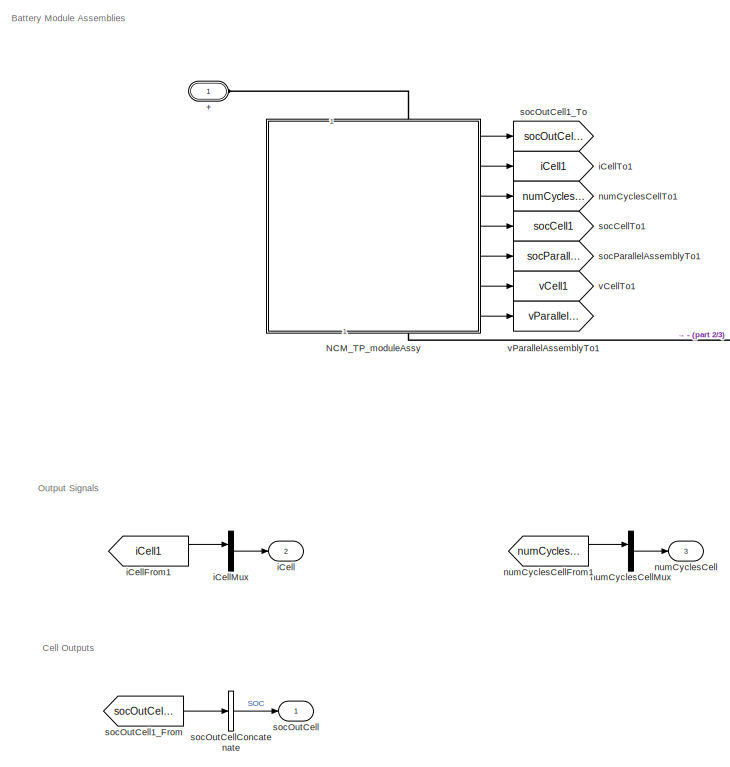
[diagram: NCM_TP_3700W_Pack - part 1/3, left side, full height]
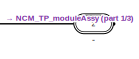
[diagram: NCM_TP_3700W_Pack - part 2/3, top right region]
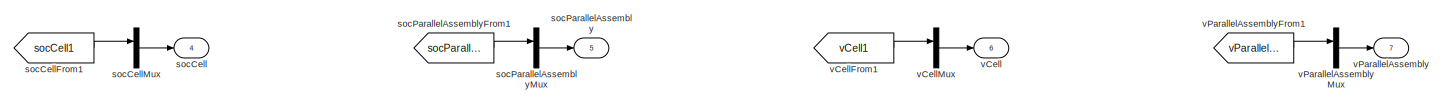
[diagram: NCM_TP_3700W_Pack - part 3/3, bottom right region]
BLOCK [SubSystem] NCM_TP_3700W_Pack
  CopyFcn = battery_builder_rtmsupport('copyfcn',gcbh);
  LoadFcn = battery_builder_rtmsupport('loadfcn',gcbh);
  PreCopyFcn = battery_builder_rtmsupport('precopyfcn',gcbh);
  PreDeleteFcn = battery_builder_rtmsupport('predeletefcn',gcbh);
BLOCK [PMIOPort] NCM_TP_3700W_Pack/+
  Side = Left
BLOCK [PMIOPort] NCM_TP_3700W_Pack/-
  Port = 2
  Side = Right
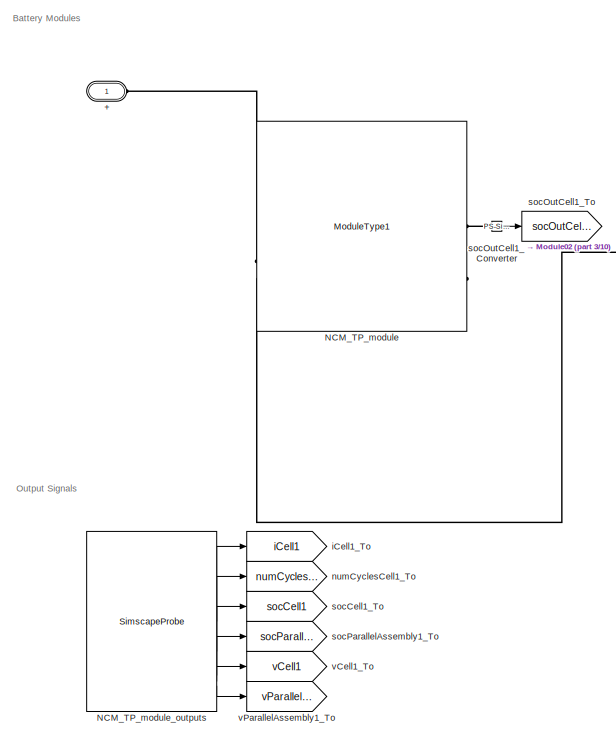
[diagram: NCM_TP_3700W_Pack/NCM_TP_moduleAssy - part 1/10, top left region]
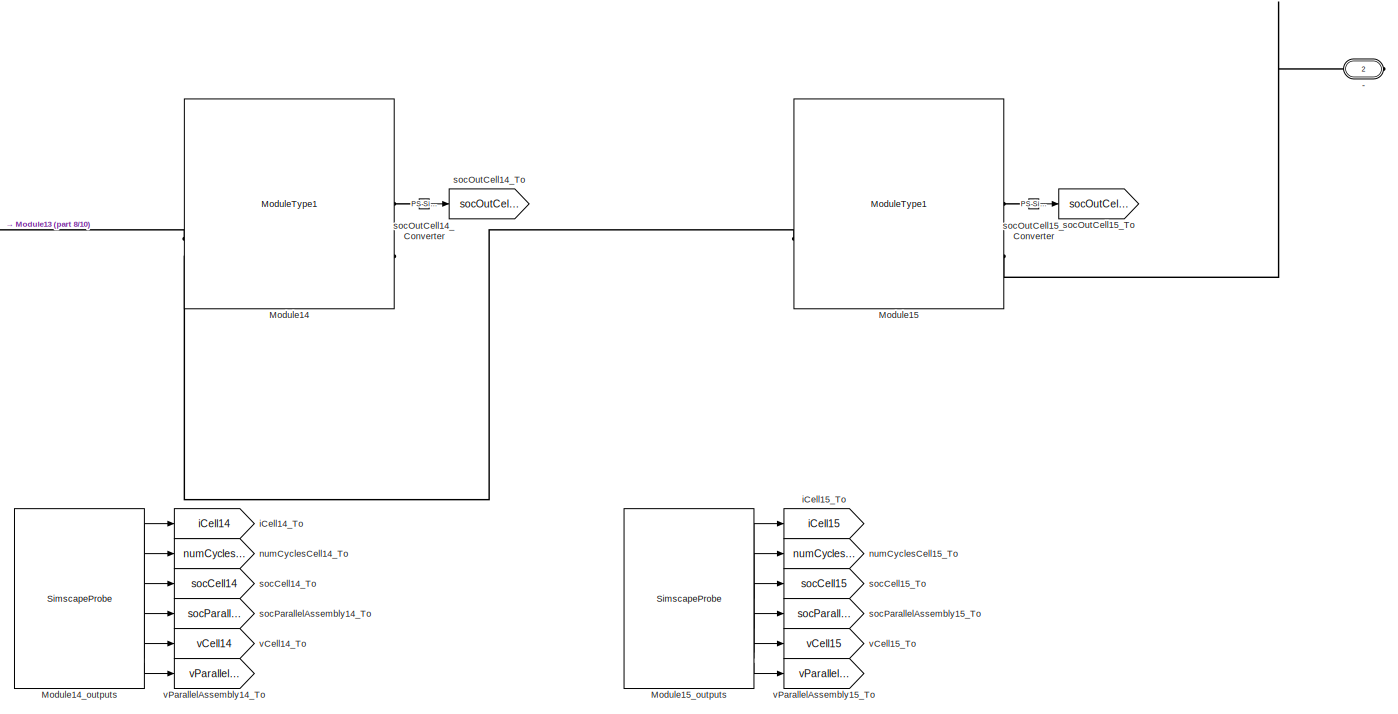
[diagram: NCM_TP_3700W_Pack/NCM_TP_moduleAssy - part 2/10, top right region]
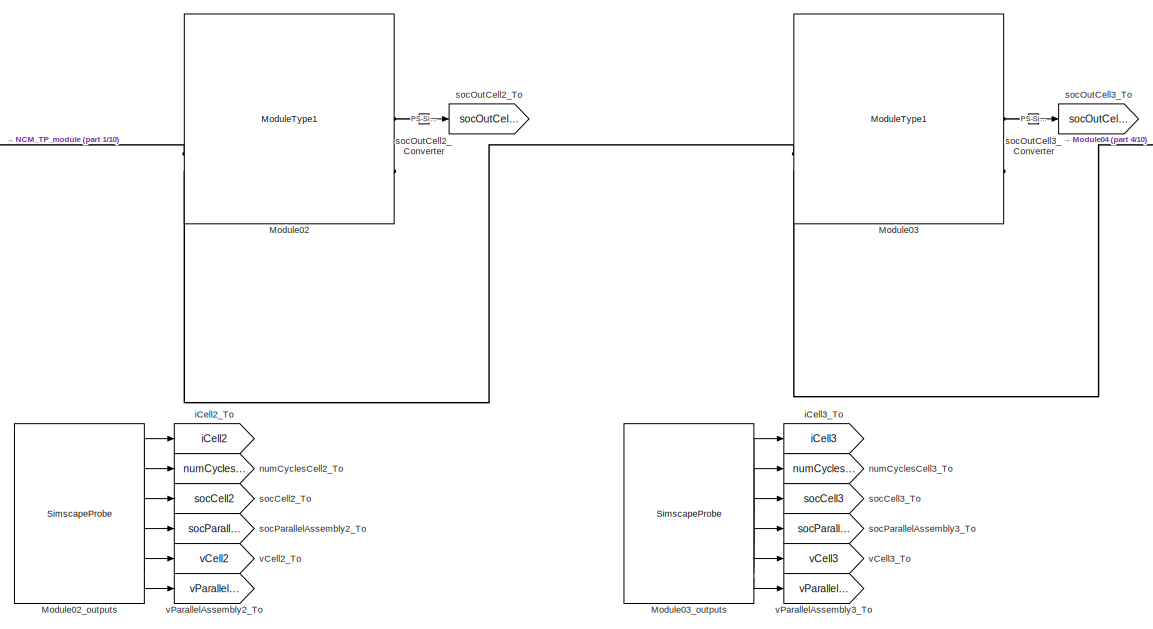
[diagram: NCM_TP_3700W_Pack/NCM_TP_moduleAssy - part 3/10, top left region]
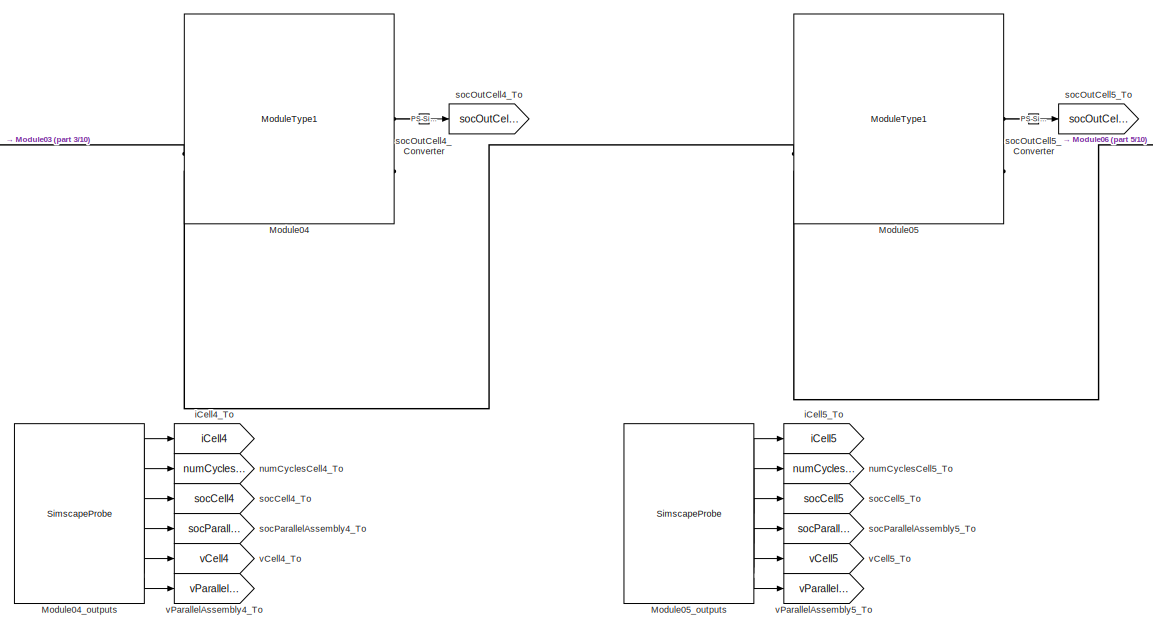
[diagram: NCM_TP_3700W_Pack/NCM_TP_moduleAssy - part 4/10, top left region]
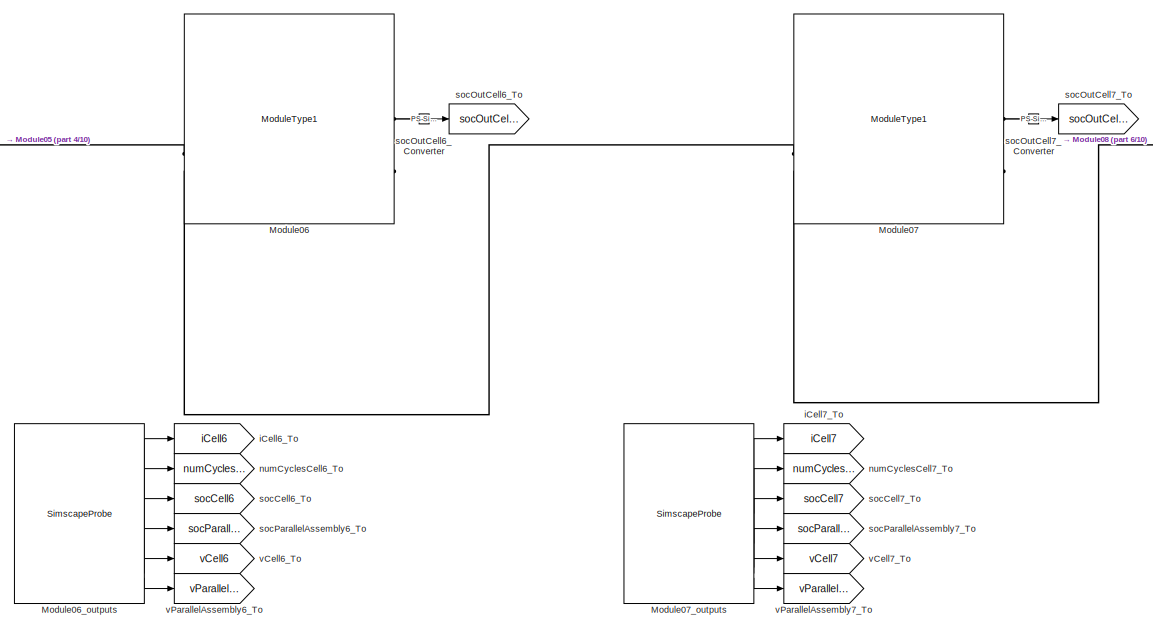
[diagram: NCM_TP_3700W_Pack/NCM_TP_moduleAssy - part 5/10, top center region]
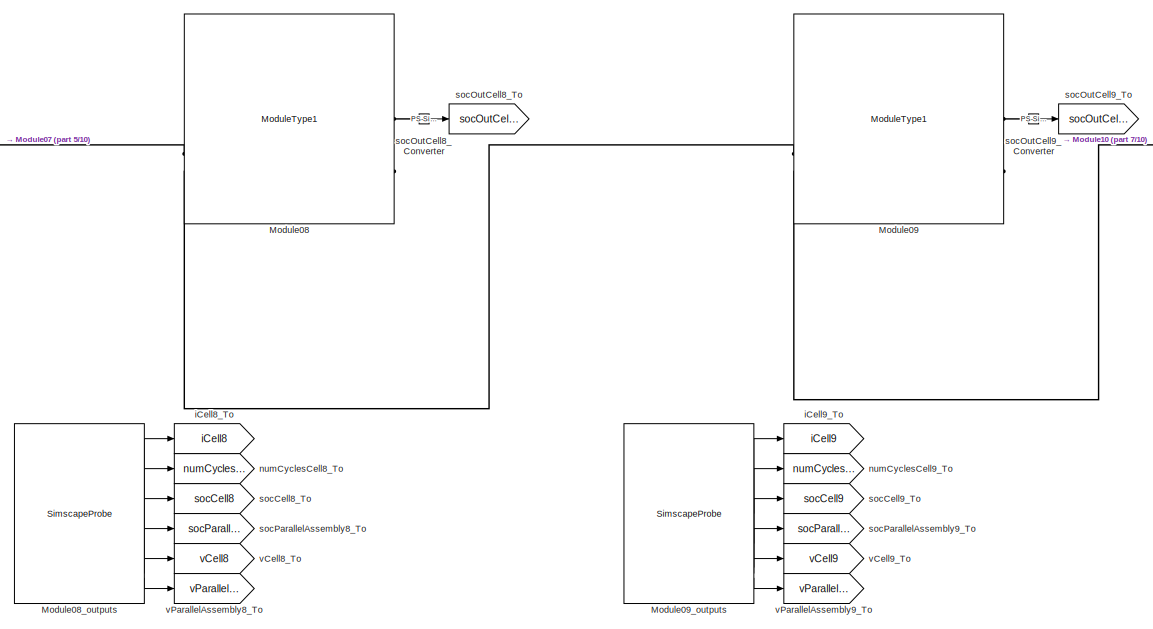
[diagram: NCM_TP_3700W_Pack/NCM_TP_moduleAssy - part 6/10, top center region]
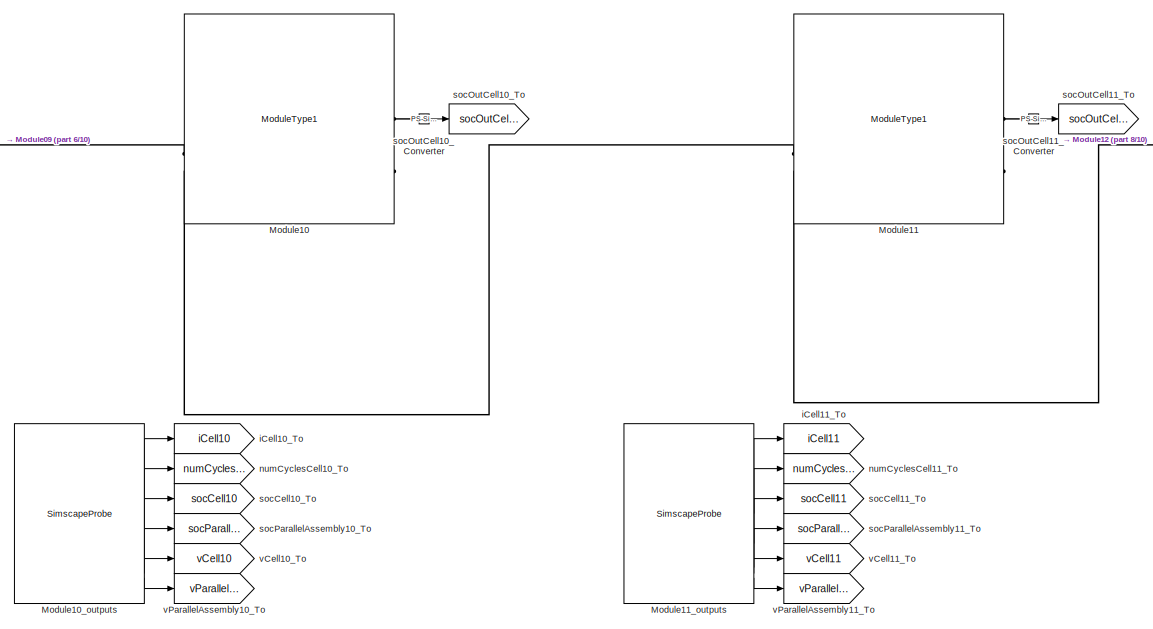
[diagram: NCM_TP_3700W_Pack/NCM_TP_moduleAssy - part 7/10, top center region]
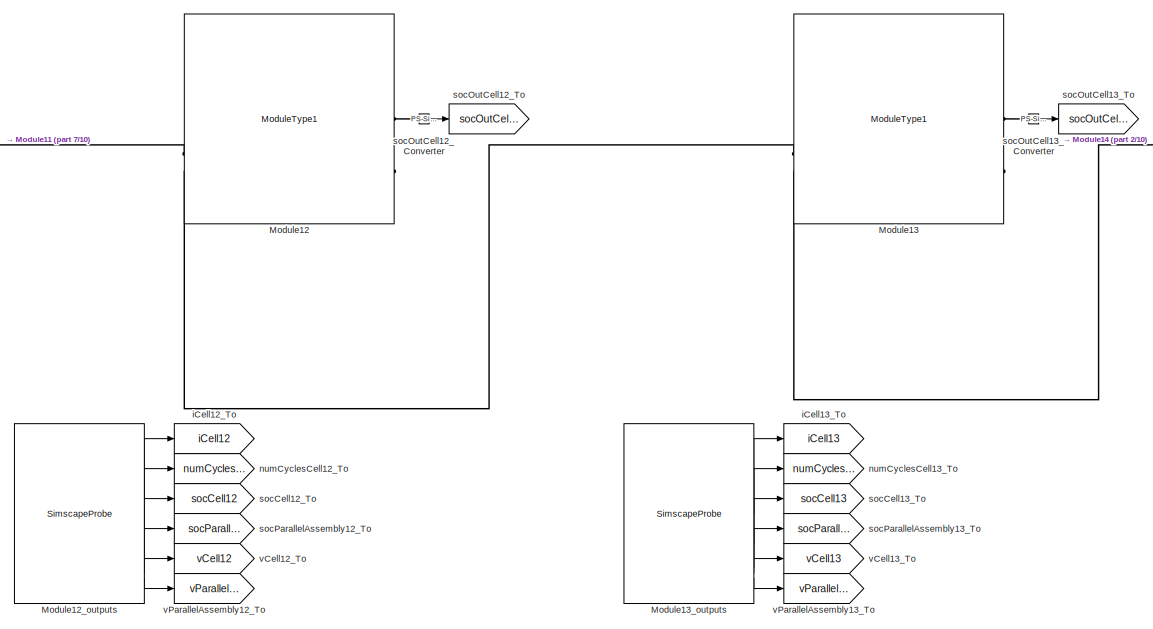
[diagram: NCM_TP_3700W_Pack/NCM_TP_moduleAssy - part 8/10, top right region]
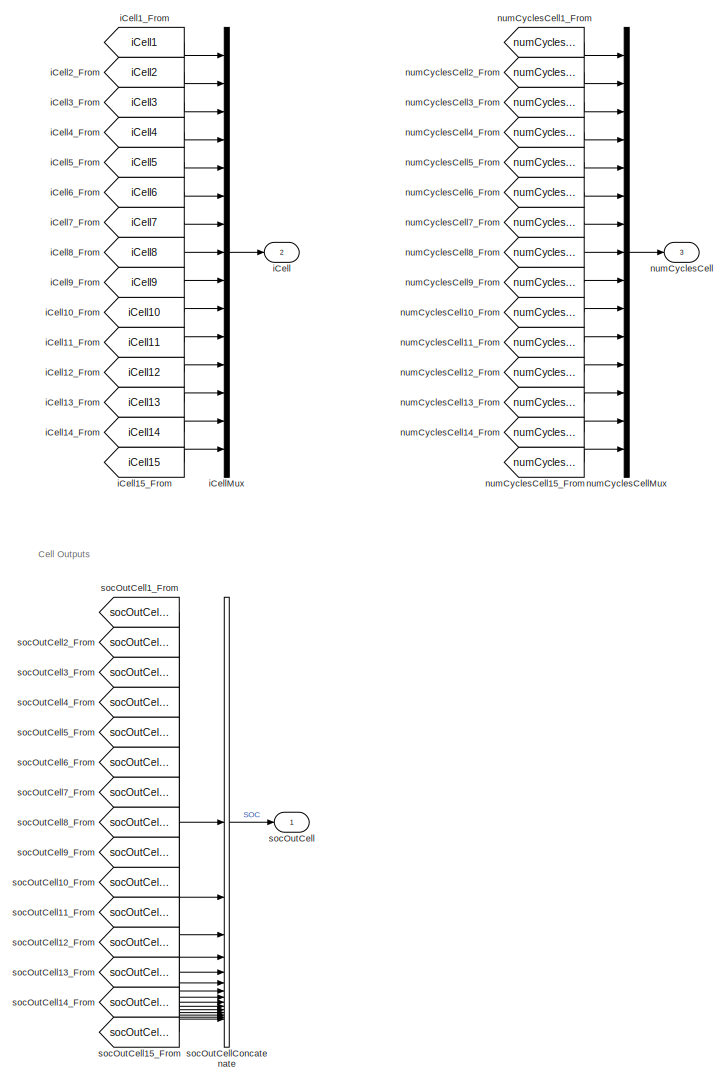
[diagram: NCM_TP_3700W_Pack/NCM_TP_moduleAssy - part 9/10, bottom left region]
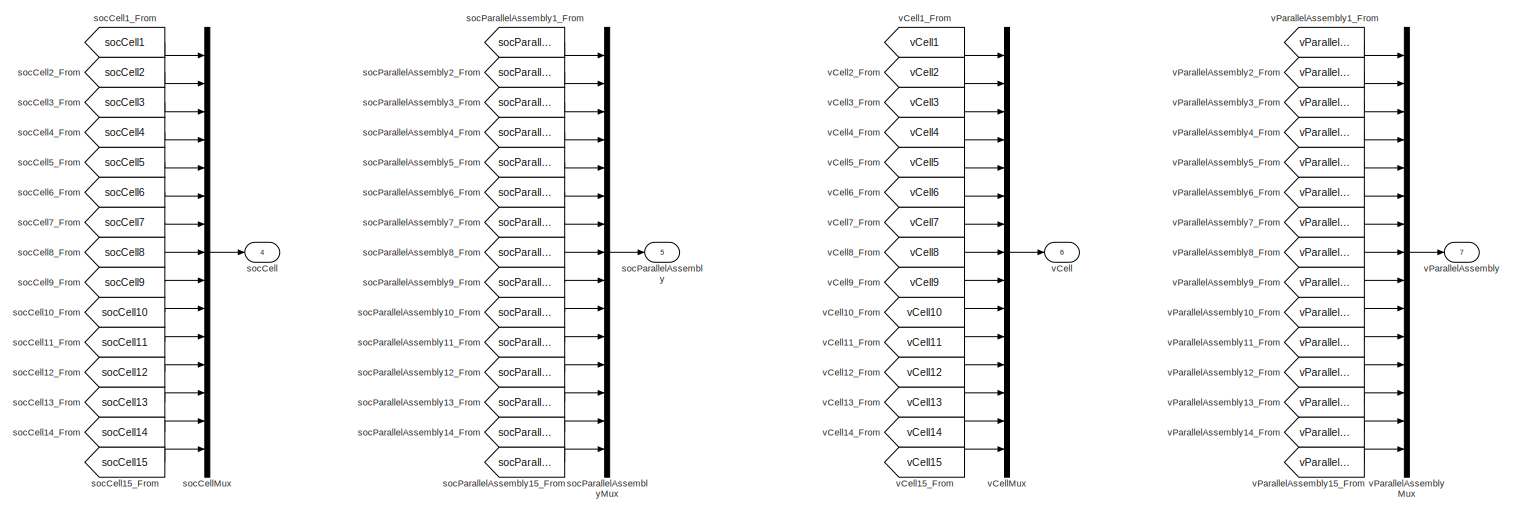
[diagram: NCM_TP_3700W_Pack/NCM_TP_moduleAssy - part 10/10, middle left region]
BLOCK [SubSystem] NCM_TP_3700W_Pack/NCM_TP_moduleAssy
  CopyFcn = battery_builder_rtmsupport('copyfcn',gcbh);
  LoadFcn = battery_builder_rtmsupport('loadfcn',gcbh);
  PreCopyFcn = battery_builder_rtmsupport('precopyfcn',gcbh);
  PreDeleteFcn = battery_builder_rtmsupport('predeletefcn',gcbh);
BLOCK [PMIOPort] NCM_TP_3700W_Pack/NCM_TP_moduleAssy/+
  Side = Left
BLOCK [PMIOPort] NCM_TP_3700W_Pack/NCM_TP_moduleAssy/-
  Port = 2
  Side = Right
BLOCK [Reference] NCM_TP_3700W_Pack/NCM_TP_moduleAssy/Module02  REF=NCM_TP_3700W_Pack_lib/Modules/ModuleType1
  SourceBlock = NCM_TP_3700W_Pack_lib/Modules/ModuleType1
  SourceType = ModuleType1
BLOCK [SimscapeProbe] NCM_TP_3700W_Pack/NCM_TP_moduleAssy/Module02_outputs
  BoundBlock = 279
  Variables = {"iCell":{"Probing":"ON"},"numCyclesCell":{"Probing":"ON"},"socCell":{"Probing":"ON"},"socParallelAssembly":{"Probing":"ON"},"vCell":{"Probing":"ON"},"vParallelAssembly":{"Probing":"ON"}}
BLOCK [Reference] NCM_TP_3700W_Pack/NCM_TP_moduleAssy/Module03  REF=NCM_TP_3700W_Pack_lib/Modules/ModuleType1
  SourceBlock = NCM_TP_3700W_Pack_lib/Modules/ModuleType1
  SourceType = ModuleType1
BLOCK [SimscapeProbe] NCM_TP_3700W_Pack/NCM_TP_moduleAssy/Module03_outputs
  BoundBlock = 281
  Variables = {"iCell":{"Probing":"ON"},"numCyclesCell":{"Probing":"ON"},"socCell":{"Probing":"ON"},"socParallelAssembly":{"Probing":"ON"},"vCell":{"Probing":"ON"},"vParallelAssembly":{"Probing":"ON"}}
BLOCK [Reference] NCM_TP_3700W_Pack/NCM_TP_moduleAssy/Module04  REF=NCM_TP_3700W_Pack_lib/Modules/ModuleType1
  SourceBlock = NCM_TP_3700W_Pack_lib/Modules/ModuleType1
  SourceType = ModuleType1
BLOCK [SimscapeProbe] NCM_TP_3700W_Pack/NCM_TP_moduleAssy/Module04_outputs
  BoundBlock = 283
  Variables = {"iCell":{"Probing":"ON"},"numCyclesCell":{"Probing":"ON"},"socCell":{"Probing":"ON"},"socParallelAssembly":{"Probing":"ON"},"vCell":{"Probing":"ON"},"vParallelAssembly":{"Probing":"ON"}}
BLOCK [Reference] NCM_TP_3700W_Pack/NCM_TP_moduleAssy/Module05  REF=NCM_TP_3700W_Pack_lib/Modules/ModuleType1
  SourceBlock = NCM_TP_3700W_Pack_lib/Modules/ModuleType1
  SourceType = ModuleType1
BLOCK [SimscapeProbe] NCM_TP_3700W_Pack/NCM_TP_moduleAssy/Module05_outputs
  BoundBlock = 285
  Variables = {"iCell":{"Probing":"ON"},"numCyclesCell":{"Probing":"ON"},"socCell":{"Probing":"ON"},"socParallelAssembly":{"Probing":"ON"},"vCell":{"Probing":"ON"},"vParallelAssembly":{"Probing":"ON"}}
BLOCK [Reference] NCM_TP_3700W_Pack/NCM_TP_moduleAssy/Module06  REF=NCM_TP_3700W_Pack_lib/Modules/ModuleType1
  SourceBlock = NCM_TP_3700W_Pack_lib/Modules/ModuleType1
  SourceType = ModuleType1
BLOCK [SimscapeProbe] NCM_TP_3700W_Pack/NCM_TP_moduleAssy/Module06_outputs
  BoundBlock = 287
  Variables = {"iCell":{"Probing":"ON"},"numCyclesCell":{"Probing":"ON"},"socCell":{"Probing":"ON"},"socParallelAssembly":{"Probing":"ON"},"vCell":{"Probing":"ON"},"vParallelAssembly":{"Probing":"ON"}}
BLOCK [Reference] NCM_TP_3700W_Pack/NCM_TP_moduleAssy/Module07  REF=NCM_TP_3700W_Pack_lib/Modules/ModuleType1
  SourceBlock = NCM_TP_3700W_Pack_lib/Modules/ModuleType1
  SourceType = ModuleType1
BLOCK [SimscapeProbe] NCM_TP_3700W_Pack/NCM_TP_moduleAssy/Module07_outputs
  BoundBlock = 289
  Variables = {"iCell":{"Probing":"ON"},"numCyclesCell":{"Probing":"ON"},"socCell":{"Probing":"ON"},"socParallelAssembly":{"Probing":"ON"},"vCell":{"Probing":"ON"},"vParallelAssembly":{"Probing":"ON"}}
BLOCK [Reference] NCM_TP_3700W_Pack/NCM_TP_moduleAssy/Module08  REF=NCM_TP_3700W_Pack_lib/Modules/ModuleType1
  SourceBlock = NCM_TP_3700W_Pack_lib/Modules/ModuleType1
  SourceType = ModuleType1
BLOCK [SimscapeProbe] NCM_TP_3700W_Pack/NCM_TP_moduleAssy/Module08_outputs
  BoundBlock = 291
  Variables = {"iCell":{"Probing":"ON"},"numCyclesCell":{"Probing":"ON"},"socCell":{"Probing":"ON"},"socParallelAssembly":{"Probing":"ON"},"vCell":{"Probing":"ON"},"vParallelAssembly":{"Probing":"ON"}}
BLOCK [Reference] NCM_TP_3700W_Pack/NCM_TP_moduleAssy/Module09  REF=NCM_TP_3700W_Pack_lib/Modules/ModuleType1
  SourceBlock = NCM_TP_3700W_Pack_lib/Modules/ModuleType1
  SourceType = ModuleType1
BLOCK [SimscapeProbe] NCM_TP_3700W_Pack/NCM_TP_moduleAssy/Module09_outputs
  BoundBlock = 293
  Variables = {"iCell":{"Probing":"ON"},"numCyclesCell":{"Probing":"ON"},"socCell":{"Probing":"ON"},"socParallelAssembly":{"Probing":"ON"},"vCell":{"Probing":"ON"},"vParallelAssembly":{"Probing":"ON"}}
BLOCK [Reference] NCM_TP_3700W_Pack/NCM_TP_moduleAssy/Module10  REF=NCM_TP_3700W_Pack_lib/Modules/ModuleType1
  SourceBlock = NCM_TP_3700W_Pack_lib/Modules/ModuleType1
  SourceType = ModuleType1
BLOCK [SimscapeProbe] NCM_TP_3700W_Pack/NCM_TP_moduleAssy/Module10_outputs
  BoundBlock = 295
  Variables = {"iCell":{"Probing":"ON"},"numCyclesCell":{"Probing":"ON"},"socCell":{"Probing":"ON"},"socParallelAssembly":{"Probing":"ON"},"vCell":{"Probing":"ON"},"vParallelAssembly":{"Probing":"ON"}}
BLOCK [Reference] NCM_TP_3700W_Pack/NCM_TP_moduleAssy/Module11  REF=NCM_TP_3700W_Pack_lib/Modules/ModuleType1
  SourceBlock = NCM_TP_3700W_Pack_lib/Modules/ModuleType1
  SourceType = ModuleType1
BLOCK [SimscapeProbe] NCM_TP_3700W_Pack/NCM_TP_moduleAssy/Module11_outputs
  BoundBlock = 297
  Variables = {"iCell":{"Probing":"ON"},"numCyclesCell":{"Probing":"ON"},"socCell":{"Probing":"ON"},"socParallelAssembly":{"Probing":"ON"},"vCell":{"Probing":"ON"},"vParallelAssembly":{"Probing":"ON"}}
BLOCK [Reference] NCM_TP_3700W_Pack/NCM_TP_moduleAssy/Module12  REF=NCM_TP_3700W_Pack_lib/Modules/ModuleType1
  SourceBlock = NCM_TP_3700W_Pack_lib/Modules/ModuleType1
  SourceType = ModuleType1
BLOCK [SimscapeProbe] NCM_TP_3700W_Pack/NCM_TP_moduleAssy/Module12_outputs
  BoundBlock = 299
  Variables = {"iCell":{"Probing":"ON"},"numCyclesCell":{"Probing":"ON"},"socCell":{"Probing":"ON"},"socParallelAssembly":{"Probing":"ON"},"vCell":{"Probing":"ON"},"vParallelAssembly":{"Probing":"ON"}}
BLOCK [Reference] NCM_TP_3700W_Pack/NCM_TP_moduleAssy/Module13  REF=NCM_TP_3700W_Pack_lib/Modules/ModuleType1
  SourceBlock = NCM_TP_3700W_Pack_lib/Modules/ModuleType1
  SourceType = ModuleType1
BLOCK [SimscapeProbe] NCM_TP_3700W_Pack/NCM_TP_moduleAssy/Module13_outputs
  BoundBlock = 301
  Variables = {"iCell":{"Probing":"ON"},"numCyclesCell":{"Probing":"ON"},"socCell":{"Probing":"ON"},"socParallelAssembly":{"Probing":"ON"},"vCell":{"Probing":"ON"},"vParallelAssembly":{"Probing":"ON"}}
BLOCK [Reference] NCM_TP_3700W_Pack/NCM_TP_moduleAssy/Module14  REF=NCM_TP_3700W_Pack_lib/Modules/ModuleType1
  SourceBlock = NCM_TP_3700W_Pack_lib/Modules/ModuleType1
  SourceType = ModuleType1
BLOCK [SimscapeProbe] NCM_TP_3700W_Pack/NCM_TP_moduleAssy/Module14_outputs
  BoundBlock = 303
  Variables = {"iCell":{"Probing":"ON"},"numCyclesCell":{"Probing":"ON"},"socCell":{"Probing":"ON"},"socParallelAssembly":{"Probing":"ON"},"vCell":{"Probing":"ON"},"vParallelAssembly":{"Probing":"ON"}}
BLOCK [Reference] NCM_TP_3700W_Pack/NCM_TP_moduleAssy/Module15  REF=NCM_TP_3700W_Pack_lib/Modules/ModuleType1
  SourceBlock = NCM_TP_3700W_Pack_lib/Modules/ModuleType1
  SourceType = ModuleType1
BLOCK [SimscapeProbe] NCM_TP_3700W_Pack/NCM_TP_moduleAssy/Module15_outputs
  BoundBlock = 305
  Variables = {"iCell":{"Probing":"ON"},"numCyclesCell":{"Probing":"ON"},"socCell":{"Probing":"ON"},"socParallelAssembly":{"Probing":"ON"},"vCell":{"Probing":"ON"},"vParallelAssembly":{"Probing":"ON"}}
BLOCK [Reference] NCM_TP_3700W_Pack/NCM_TP_moduleAssy/NCM_TP_module  REF=NCM_TP_3700W_Pack_lib/Modules/ModuleType1
  SourceBlock = NCM_TP_3700W_Pack_lib/Modules/ModuleType1
  SourceType = ModuleType1
BLOCK [SimscapeProbe] NCM_TP_3700W_Pack/NCM_TP_moduleAssy/NCM_TP_module_outputs
  BoundBlock = 307
  Variables = {"iCell":{"Probing":"ON"},"numCyclesCell":{"Probing":"ON"},"socCell":{"Probing":"ON"},"socParallelAssembly":{"Probing":"ON"},"vCell":{"Probing":"ON"},"vParallelAssembly":{"Probing":"ON"}}
BLOCK [Outport] NCM_TP_3700W_Pack/NCM_TP_moduleAssy/iCell
  Port = 2
BLOCK [From] NCM_TP_3700W_Pack/NCM_TP_moduleAssy/iCell10_From
  GotoTag = iCell10
BLOCK [Goto] NCM_TP_3700W_Pack/NCM_TP_moduleAssy/iCell10_To
  GotoTag = iCell10
BLOCK [From] NCM_TP_3700W_Pack/NCM_TP_moduleAssy/iCell11_From
  GotoTag = iCell11
BLOCK [Goto] NCM_TP_3700W_Pack/NCM_TP_moduleAssy/iCell11_To
  GotoTag = iCell11
BLOCK [From] NCM_TP_3700W_Pack/NCM_TP_moduleAssy/iCell12_From
  GotoTag = iCell12
BLOCK [Goto] NCM_TP_3700W_Pack/NCM_TP_moduleAssy/iCell12_To
  GotoTag = iCell12
BLOCK [From] NCM_TP_3700W_Pack/NCM_TP_moduleAssy/iCell13_From
  GotoTag = iCell13
BLOCK [Goto] NCM_TP_3700W_Pack/NCM_TP_moduleAssy/iCell13_To
  GotoTag = iCell13
BLOCK [From] NCM_TP_3700W_Pack/NCM_TP_moduleAssy/iCell14_From
  GotoTag = iCell14
BLOCK [Goto] NCM_TP_3700W_Pack/NCM_TP_moduleAssy/iCell14_To
  GotoTag = iCell14
BLOCK [From] NCM_TP_3700W_Pack/NCM_TP_moduleAssy/iCell15_From
  GotoTag = iCell15
BLOCK [Goto] NCM_TP_3700W_Pack/NCM_TP_moduleAssy/iCell15_To
  GotoTag = iCell15
BLOCK [From] NCM_TP_3700W_Pack/NCM_TP_moduleAssy/iCell1_From
  GotoTag = iCell1
BLOCK [Goto] NCM_TP_3700W_Pack/NCM_TP_moduleAssy/iCell1_To
  GotoTag = iCell1
BLOCK [From] NCM_TP_3700W_Pack/NCM_TP_moduleAssy/iCell2_From
  GotoTag = iCell2
BLOCK [Goto] NCM_TP_3700W_Pack/NCM_TP_moduleAssy/iCell2_To
  GotoTag = iCell2
BLOCK [From] NCM_TP_3700W_Pack/NCM_TP_moduleAssy/iCell3_From
  GotoTag = iCell3
BLOCK [Goto] NCM_TP_3700W_Pack/NCM_TP_moduleAssy/iCell3_To
  GotoTag = iCell3
BLOCK [From] NCM_TP_3700W_Pack/NCM_TP_moduleAssy/iCell4_From
  GotoTag = iCell4
BLOCK [Goto] NCM_TP_3700W_Pack/NCM_TP_moduleAssy/iCell4_To
  GotoTag = iCell4
BLOCK [From] NCM_TP_3700W_Pack/NCM_TP_moduleAssy/iCell5_From
  GotoTag = iCell5
BLOCK [Goto] NCM_TP_3700W_Pack/NCM_TP_moduleAssy/iCell5_To
  GotoTag = iCell5
BLOCK [From] NCM_TP_3700W_Pack/NCM_TP_moduleAssy/iCell6_From
  GotoTag = iCell6
BLOCK [Goto] NCM_TP_3700W_Pack/NCM_TP_moduleAssy/iCell6_To
  GotoTag = iCell6
BLOCK [From] NCM_TP_3700W_Pack/NCM_TP_moduleAssy/iCell7_From
  GotoTag = iCell7
BLOCK [Goto] NCM_TP_3700W_Pack/NCM_TP_moduleAssy/iCell7_To
  GotoTag = iCell7
BLOCK [From] NCM_TP_3700W_Pack/NCM_TP_moduleAssy/iCell8_From
  GotoTag = iCell8
BLOCK [Goto] NCM_TP_3700W_Pack/NCM_TP_moduleAssy/iCell8_To
  GotoTag = iCell8
BLOCK [From] NCM_TP_3700W_Pack/NCM_TP_moduleAssy/iCell9_From
  GotoTag = iCell9
BLOCK [Goto] NCM_TP_3700W_Pack/NCM_TP_moduleAssy/iCell9_To
  GotoTag = iCell9
BLOCK [Mux] NCM_TP_3700W_Pack/NCM_TP_moduleAssy/iCellMux
  DisplayOption = bar
  Inputs = 15
BLOCK [Outport] NCM_TP_3700W_Pack/NCM_TP_moduleAssy/numCyclesCell
  Port = 3
BLOCK [From] NCM_TP_3700W_Pack/NCM_TP_moduleAssy/numCyclesCell10_From
  GotoTag = numCyclesCell10
BLOCK [Goto] NCM_TP_3700W_Pack/NCM_TP_moduleAssy/numCyclesCell10_To
  GotoTag = numCyclesCell10
BLOCK [From] NCM_TP_3700W_Pack/NCM_TP_moduleAssy/numCyclesCell11_From
  GotoTag = numCyclesCell11
BLOCK [Goto] NCM_TP_3700W_Pack/NCM_TP_moduleAssy/numCyclesCell11_To
  GotoTag = numCyclesCell11
BLOCK [From] NCM_TP_3700W_Pack/NCM_TP_moduleAssy/numCyclesCell12_From
  GotoTag = numCyclesCell12
BLOCK [Goto] NCM_TP_3700W_Pack/NCM_TP_moduleAssy/numCyclesCell12_To
  GotoTag = numCyclesCell12
BLOCK [From] NCM_TP_3700W_Pack/NCM_TP_moduleAssy/numCyclesCell13_From
  GotoTag = numCyclesCell13
BLOCK [Goto] NCM_TP_3700W_Pack/NCM_TP_moduleAssy/numCyclesCell13_To
  GotoTag = numCyclesCell13
BLOCK [From] NCM_TP_3700W_Pack/NCM_TP_moduleAssy/numCyclesCell14_From
  GotoTag = numCyclesCell14
BLOCK [Goto] NCM_TP_3700W_Pack/NCM_TP_moduleAssy/numCyclesCell14_To
  GotoTag = numCyclesCell14
BLOCK [From] NCM_TP_3700W_Pack/NCM_TP_moduleAssy/numCyclesCell15_From
  GotoTag = numCyclesCell15
BLOCK [Goto] NCM_TP_3700W_Pack/NCM_TP_moduleAssy/numCyclesCell15_To
  GotoTag = numCyclesCell15
BLOCK [From] NCM_TP_3700W_Pack/NCM_TP_moduleAssy/numCyclesCell1_From
  GotoTag = numCyclesCell1
BLOCK [Goto] NCM_TP_3700W_Pack/NCM_TP_moduleAssy/numCyclesCell1_To
  GotoTag = numCyclesCell1
BLOCK [From] NCM_TP_3700W_Pack/NCM_TP_moduleAssy/numCyclesCell2_From
  GotoTag = numCyclesCell2
BLOCK [Goto] NCM_TP_3700W_Pack/NCM_TP_moduleAssy/numCyclesCell2_To
  GotoTag = numCyclesCell2
BLOCK [From] NCM_TP_3700W_Pack/NCM_TP_moduleAssy/numCyclesCell3_From
  GotoTag = numCyclesCell3
BLOCK [Goto] NCM_TP_3700W_Pack/NCM_TP_moduleAssy/numCyclesCell3_To
  GotoTag = numCyclesCell3
BLOCK [From] NCM_TP_3700W_Pack/NCM_TP_moduleAssy/numCyclesCell4_From
  GotoTag = numCyclesCell4
BLOCK [Goto] NCM_TP_3700W_Pack/NCM_TP_moduleAssy/numCyclesCell4_To
  GotoTag = numCyclesCell4
BLOCK [From] NCM_TP_3700W_Pack/NCM_TP_moduleAssy/numCyclesCell5_From
  GotoTag = numCyclesCell5
BLOCK [Goto] NCM_TP_3700W_Pack/NCM_TP_moduleAssy/numCyclesCell5_To
  GotoTag = numCyclesCell5
BLOCK [From] NCM_TP_3700W_Pack/NCM_TP_moduleAssy/numCyclesCell6_From
  GotoTag = numCyclesCell6
BLOCK [Goto] NCM_TP_3700W_Pack/NCM_TP_moduleAssy/numCyclesCell6_To
  GotoTag = numCyclesCell6
BLOCK [From] NCM_TP_3700W_Pack/NCM_TP_moduleAssy/numCyclesCell7_From
  GotoTag = numCyclesCell7
BLOCK [Goto] NCM_TP_3700W_Pack/NCM_TP_moduleAssy/numCyclesCell7_To
  GotoTag = numCyclesCell7
BLOCK [From] NCM_TP_3700W_Pack/NCM_TP_moduleAssy/numCyclesCell8_From
  GotoTag = numCyclesCell8
BLOCK [Goto] NCM_TP_3700W_Pack/NCM_TP_moduleAssy/numCyclesCell8_To
  GotoTag = numCyclesCell8
BLOCK [From] NCM_TP_3700W_Pack/NCM_TP_moduleAssy/numCyclesCell9_From
  GotoTag = numCyclesCell9
BLOCK [Goto] NCM_TP_3700W_Pack/NCM_TP_moduleAssy/numCyclesCell9_To
  GotoTag = numCyclesCell9
BLOCK [Mux] NCM_TP_3700W_Pack/NCM_TP_moduleAssy/numCyclesCellMux
  DisplayOption = bar
  Inputs = 15
BLOCK [Outport] NCM_TP_3700W_Pack/NCM_TP_moduleAssy/socCell
  Port = 4
BLOCK [From] NCM_TP_3700W_Pack/NCM_TP_moduleAssy/socCell10_From
  GotoTag = socCell10
BLOCK [Goto] NCM_TP_3700W_Pack/NCM_TP_moduleAssy/socCell10_To
  GotoTag = socCell10
BLOCK [From] NCM_TP_3700W_Pack/NCM_TP_moduleAssy/socCell11_From
  GotoTag = socCell11
BLOCK [Goto] NCM_TP_3700W_Pack/NCM_TP_moduleAssy/socCell11_To
  GotoTag = socCell11
BLOCK [From] NCM_TP_3700W_Pack/NCM_TP_moduleAssy/socCell12_From
  GotoTag = socCell12
BLOCK [Goto] NCM_TP_3700W_Pack/NCM_TP_moduleAssy/socCell12_To
  GotoTag = socCell12
BLOCK [From] NCM_TP_3700W_Pack/NCM_TP_moduleAssy/socCell13_From
  GotoTag = socCell13
BLOCK [Goto] NCM_TP_3700W_Pack/NCM_TP_moduleAssy/socCell13_To
  GotoTag = socCell13
BLOCK [From] NCM_TP_3700W_Pack/NCM_TP_moduleAssy/socCell14_From
  GotoTag = socCell14
BLOCK [Goto] NCM_TP_3700W_Pack/NCM_TP_moduleAssy/socCell14_To
  GotoTag = socCell14
BLOCK [From] NCM_TP_3700W_Pack/NCM_TP_moduleAssy/socCell15_From
  GotoTag = socCell15
BLOCK [Goto] NCM_TP_3700W_Pack/NCM_TP_moduleAssy/socCell15_To
  GotoTag = socCell15
BLOCK [From] NCM_TP_3700W_Pack/NCM_TP_moduleAssy/socCell1_From
  GotoTag = socCell1
BLOCK [Goto] NCM_TP_3700W_Pack/NCM_TP_moduleAssy/socCell1_To
  GotoTag = socCell1
BLOCK [From] NCM_TP_3700W_Pack/NCM_TP_moduleAssy/socCell2_From
  GotoTag = socCell2
BLOCK [Goto] NCM_TP_3700W_Pack/NCM_TP_moduleAssy/socCell2_To
  GotoTag = socCell2
BLOCK [From] NCM_TP_3700W_Pack/NCM_TP_moduleAssy/socCell3_From
  GotoTag = socCell3
BLOCK [Goto] NCM_TP_3700W_Pack/NCM_TP_moduleAssy/socCell3_To
  GotoTag = socCell3
BLOCK [From] NCM_TP_3700W_Pack/NCM_TP_moduleAssy/socCell4_From
  GotoTag = socCell4
BLOCK [Goto] NCM_TP_3700W_Pack/NCM_TP_moduleAssy/socCell4_To
  GotoTag = socCell4
BLOCK [From] NCM_TP_3700W_Pack/NCM_TP_moduleAssy/socCell5_From
  GotoTag = socCell5
BLOCK [Goto] NCM_TP_3700W_Pack/NCM_TP_moduleAssy/socCell5_To
  GotoTag = socCell5
BLOCK [From] NCM_TP_3700W_Pack/NCM_TP_moduleAssy/socCell6_From
  GotoTag = socCell6
BLOCK [Goto] NCM_TP_3700W_Pack/NCM_TP_moduleAssy/socCell6_To
  GotoTag = socCell6
BLOCK [From] NCM_TP_3700W_Pack/NCM_TP_moduleAssy/socCell7_From
  GotoTag = socCell7
BLOCK [Goto] NCM_TP_3700W_Pack/NCM_TP_moduleAssy/socCell7_To
  GotoTag = socCell7
BLOCK [From] NCM_TP_3700W_Pack/NCM_TP_moduleAssy/socCell8_From
  GotoTag = socCell8
BLOCK [Goto] NCM_TP_3700W_Pack/NCM_TP_moduleAssy/socCell8_To
  GotoTag = socCell8
BLOCK [From] NCM_TP_3700W_Pack/NCM_TP_moduleAssy/socCell9_From
  GotoTag = socCell9
BLOCK [Goto] NCM_TP_3700W_Pack/NCM_TP_moduleAssy/socCell9_To
  GotoTag = socCell9
BLOCK [Mux] NCM_TP_3700W_Pack/NCM_TP_moduleAssy/socCellMux
  DisplayOption = bar
  Inputs = 15
BLOCK [Outport] NCM_TP_3700W_Pack/NCM_TP_moduleAssy/socOutCell
  IconDisplay = Signal name
BLOCK [Reference] NCM_TP_3700W_Pack/NCM_TP_moduleAssy/socOutCell10_Converter  REF=nesl_utility/PS-Simulink
Converter
  SourceBlock = nesl_utility/PS-Simulink\nConverter
  SourceType = PS-Simulink\nConverter
BLOCK [From] NCM_TP_3700W_Pack/NCM_TP_moduleAssy/socOutCell10_From
  GotoTag = socOutCell10
BLOCK [Goto] NCM_TP_3700W_Pack/NCM_TP_moduleAssy/socOutCell10_To
  GotoTag = socOutCell10
BLOCK [Reference] NCM_TP_3700W_Pack/NCM_TP_moduleAssy/socOutCell11_Converter  REF=nesl_utility/PS-Simulink
Converter
  SourceBlock = nesl_utility/PS-Simulink\nConverter
  SourceType = PS-Simulink\nConverter
BLOCK [From] NCM_TP_3700W_Pack/NCM_TP_moduleAssy/socOutCell11_From
  GotoTag = socOutCell11
BLOCK [Goto] NCM_TP_3700W_Pack/NCM_TP_moduleAssy/socOutCell11_To
  GotoTag = socOutCell11
BLOCK [Reference] NCM_TP_3700W_Pack/NCM_TP_moduleAssy/socOutCell12_Converter  REF=nesl_utility/PS-Simulink
Converter
  SourceBlock = nesl_utility/PS-Simulink\nConverter
  SourceType = PS-Simulink\nConverter
BLOCK [From] NCM_TP_3700W_Pack/NCM_TP_moduleAssy/socOutCell12_From
  GotoTag = socOutCell12
BLOCK [Goto] NCM_TP_3700W_Pack/NCM_TP_moduleAssy/socOutCell12_To
  GotoTag = socOutCell12
BLOCK [Reference] NCM_TP_3700W_Pack/NCM_TP_moduleAssy/socOutCell13_Converter  REF=nesl_utility/PS-Simulink
Converter
  SourceBlock = nesl_utility/PS-Simulink\nConverter
  SourceType = PS-Simulink\nConverter
BLOCK [From] NCM_TP_3700W_Pack/NCM_TP_moduleAssy/socOutCell13_From
  GotoTag = socOutCell13
BLOCK [Goto] NCM_TP_3700W_Pack/NCM_TP_moduleAssy/socOutCell13_To
  GotoTag = socOutCell13
BLOCK [Reference] NCM_TP_3700W_Pack/NCM_TP_moduleAssy/socOutCell14_Converter  REF=nesl_utility/PS-Simulink
Converter
  SourceBlock = nesl_utility/PS-Simulink\nConverter
  SourceType = PS-Simulink\nConverter
BLOCK [From] NCM_TP_3700W_Pack/NCM_TP_moduleAssy/socOutCell14_From
  GotoTag = socOutCell14
BLOCK [Goto] NCM_TP_3700W_Pack/NCM_TP_moduleAssy/socOutCell14_To
  GotoTag = socOutCell14
BLOCK [Reference] NCM_TP_3700W_Pack/NCM_TP_moduleAssy/socOutCell15_Converter  REF=nesl_utility/PS-Simulink
Converter
  SourceBlock = nesl_utility/PS-Simulink\nConverter
  SourceType = PS-Simulink\nConverter
BLOCK [From] NCM_TP_3700W_Pack/NCM_TP_moduleAssy/socOutCell15_From
  GotoTag = socOutCell15
BLOCK [Goto] NCM_TP_3700W_Pack/NCM_TP_moduleAssy/socOutCell15_To
  GotoTag = socOutCell15
BLOCK [Reference] NCM_TP_3700W_Pack/NCM_TP_moduleAssy/socOutCell1_Converter  REF=nesl_utility/PS-Simulink
Converter
  SourceBlock = nesl_utility/PS-Simulink\nConverter
  SourceType = PS-Simulink\nConverter
BLOCK [From] NCM_TP_3700W_Pack/NCM_TP_moduleAssy/socOutCell1_From
  GotoTag = socOutCell1
BLOCK [Goto] NCM_TP_3700W_Pack/NCM_TP_moduleAssy/socOutCell1_To
  GotoTag = socOutCell1
BLOCK [Reference] NCM_TP_3700W_Pack/NCM_TP_moduleAssy/socOutCell2_Converter  REF=nesl_utility/PS-Simulink
Converter
  SourceBlock = nesl_utility/PS-Simulink\nConverter
  SourceType = PS-Simulink\nConverter
BLOCK [From] NCM_TP_3700W_Pack/NCM_TP_moduleAssy/socOutCell2_From
  GotoTag = socOutCell2
BLOCK [Goto] NCM_TP_3700W_Pack/NCM_TP_moduleAssy/socOutCell2_To
  GotoTag = socOutCell2
BLOCK [Reference] NCM_TP_3700W_Pack/NCM_TP_moduleAssy/socOutCell3_Converter  REF=nesl_utility/PS-Simulink
Converter
  SourceBlock = nesl_utility/PS-Simulink\nConverter
  SourceType = PS-Simulink\nConverter
BLOCK [From] NCM_TP_3700W_Pack/NCM_TP_moduleAssy/socOutCell3_From
  GotoTag = socOutCell3
BLOCK [Goto] NCM_TP_3700W_Pack/NCM_TP_moduleAssy/socOutCell3_To
  GotoTag = socOutCell3
BLOCK [Reference] NCM_TP_3700W_Pack/NCM_TP_moduleAssy/socOutCell4_Converter  REF=nesl_utility/PS-Simulink
Converter
  SourceBlock = nesl_utility/PS-Simulink\nConverter
  SourceType = PS-Simulink\nConverter
BLOCK [From] NCM_TP_3700W_Pack/NCM_TP_moduleAssy/socOutCell4_From
  GotoTag = socOutCell4
BLOCK [Goto] NCM_TP_3700W_Pack/NCM_TP_moduleAssy/socOutCell4_To
  GotoTag = socOutCell4
BLOCK [Reference] NCM_TP_3700W_Pack/NCM_TP_moduleAssy/socOutCell5_Converter  REF=nesl_utility/PS-Simulink
Converter
  SourceBlock = nesl_utility/PS-Simulink\nConverter
  SourceType = PS-Simulink\nConverter
BLOCK [From] NCM_TP_3700W_Pack/NCM_TP_moduleAssy/socOutCell5_From
  GotoTag = socOutCell5
BLOCK [Goto] NCM_TP_3700W_Pack/NCM_TP_moduleAssy/socOutCell5_To
  GotoTag = socOutCell5
BLOCK [Reference] NCM_TP_3700W_Pack/NCM_TP_moduleAssy/socOutCell6_Converter  REF=nesl_utility/PS-Simulink
Converter
  SourceBlock = nesl_utility/PS-Simulink\nConverter
  SourceType = PS-Simulink\nConverter
BLOCK [From] NCM_TP_3700W_Pack/NCM_TP_moduleAssy/socOutCell6_From
  GotoTag = socOutCell6
BLOCK [Goto] NCM_TP_3700W_Pack/NCM_TP_moduleAssy/socOutCell6_To
  GotoTag = socOutCell6
BLOCK [Reference] NCM_TP_3700W_Pack/NCM_TP_moduleAssy/socOutCell7_Converter  REF=nesl_utility/PS-Simulink
Converter
  SourceBlock = nesl_utility/PS-Simulink\nConverter
  SourceType = PS-Simulink\nConverter
BLOCK [From] NCM_TP_3700W_Pack/NCM_TP_moduleAssy/socOutCell7_From
  GotoTag = socOutCell7
BLOCK [Goto] NCM_TP_3700W_Pack/NCM_TP_moduleAssy/socOutCell7_To
  GotoTag = socOutCell7
BLOCK [Reference] NCM_TP_3700W_Pack/NCM_TP_moduleAssy/socOutCell8_Converter  REF=nesl_utility/PS-Simulink
Converter
  SourceBlock = nesl_utility/PS-Simulink\nConverter
  SourceType = PS-Simulink\nConverter
BLOCK [From] NCM_TP_3700W_Pack/NCM_TP_moduleAssy/socOutCell8_From
  GotoTag = socOutCell8
BLOCK [Goto] NCM_TP_3700W_Pack/NCM_TP_moduleAssy/socOutCell8_To
  GotoTag = socOutCell8
BLOCK [Reference] NCM_TP_3700W_Pack/NCM_TP_moduleAssy/socOutCell9_Converter  REF=nesl_utility/PS-Simulink
Converter
  SourceBlock = nesl_utility/PS-Simulink\nConverter
  SourceType = PS-Simulink\nConverter
BLOCK [From] NCM_TP_3700W_Pack/NCM_TP_moduleAssy/socOutCell9_From
  GotoTag = socOutCell9
BLOCK [Goto] NCM_TP_3700W_Pack/NCM_TP_moduleAssy/socOutCell9_To
  GotoTag = socOutCell9
BLOCK [Concatenate] NCM_TP_3700W_Pack/NCM_TP_moduleAssy/socOutCellConcatenate
  ConcatenateDimension = 2
  Mode = Multidimensional array
  NumInputs = 15
BLOCK [Outport] NCM_TP_3700W_Pack/NCM_TP_moduleAssy/socParallelAssembly
  Port = 5
BLOCK [From] NCM_TP_3700W_Pack/NCM_TP_moduleAssy/socParallelAssembly10_From
  GotoTag = socParallelAssembly10
BLOCK [Goto] NCM_TP_3700W_Pack/NCM_TP_moduleAssy/socParallelAssembly10_To
  GotoTag = socParallelAssembly10
BLOCK [From] NCM_TP_3700W_Pack/NCM_TP_moduleAssy/socParallelAssembly11_From
  GotoTag = socParallelAssembly11
BLOCK [Goto] NCM_TP_3700W_Pack/NCM_TP_moduleAssy/socParallelAssembly11_To
  GotoTag = socParallelAssembly11
BLOCK [From] NCM_TP_3700W_Pack/NCM_TP_moduleAssy/socParallelAssembly12_From
  GotoTag = socParallelAssembly12
BLOCK [Goto] NCM_TP_3700W_Pack/NCM_TP_moduleAssy/socParallelAssembly12_To
  GotoTag = socParallelAssembly12
BLOCK [From] NCM_TP_3700W_Pack/NCM_TP_moduleAssy/socParallelAssembly13_From
  GotoTag = socParallelAssembly13
BLOCK [Goto] NCM_TP_3700W_Pack/NCM_TP_moduleAssy/socParallelAssembly13_To
  GotoTag = socParallelAssembly13
BLOCK [From] NCM_TP_3700W_Pack/NCM_TP_moduleAssy/socParallelAssembly14_From
  GotoTag = socParallelAssembly14
BLOCK [Goto] NCM_TP_3700W_Pack/NCM_TP_moduleAssy/socParallelAssembly14_To
  GotoTag = socParallelAssembly14
BLOCK [From] NCM_TP_3700W_Pack/NCM_TP_moduleAssy/socParallelAssembly15_From
  GotoTag = socParallelAssembly15
BLOCK [Goto] NCM_TP_3700W_Pack/NCM_TP_moduleAssy/socParallelAssembly15_To
  GotoTag = socParallelAssembly15
BLOCK [From] NCM_TP_3700W_Pack/NCM_TP_moduleAssy/socParallelAssembly1_From
  GotoTag = socParallelAssembly1
BLOCK [Goto] NCM_TP_3700W_Pack/NCM_TP_moduleAssy/socParallelAssembly1_To
  GotoTag = socParallelAssembly1
BLOCK [From] NCM_TP_3700W_Pack/NCM_TP_moduleAssy/socParallelAssembly2_From
  GotoTag = socParallelAssembly2
BLOCK [Goto] NCM_TP_3700W_Pack/NCM_TP_moduleAssy/socParallelAssembly2_To
  GotoTag = socParallelAssembly2
BLOCK [From] NCM_TP_3700W_Pack/NCM_TP_moduleAssy/socParallelAssembly3_From
  GotoTag = socParallelAssembly3
BLOCK [Goto] NCM_TP_3700W_Pack/NCM_TP_moduleAssy/socParallelAssembly3_To
  GotoTag = socParallelAssembly3
BLOCK [From] NCM_TP_3700W_Pack/NCM_TP_moduleAssy/socParallelAssembly4_From
  GotoTag = socParallelAssembly4
BLOCK [Goto] NCM_TP_3700W_Pack/NCM_TP_moduleAssy/socParallelAssembly4_To
  GotoTag = socParallelAssembly4
BLOCK [From] NCM_TP_3700W_Pack/NCM_TP_moduleAssy/socParallelAssembly5_From
  GotoTag = socParallelAssembly5
BLOCK [Goto] NCM_TP_3700W_Pack/NCM_TP_moduleAssy/socParallelAssembly5_To
  GotoTag = socParallelAssembly5
BLOCK [From] NCM_TP_3700W_Pack/NCM_TP_moduleAssy/socParallelAssembly6_From
  GotoTag = socParallelAssembly6
BLOCK [Goto] NCM_TP_3700W_Pack/NCM_TP_moduleAssy/socParallelAssembly6_To
  GotoTag = socParallelAssembly6
BLOCK [From] NCM_TP_3700W_Pack/NCM_TP_moduleAssy/socParallelAssembly7_From
  GotoTag = socParallelAssembly7
BLOCK [Goto] NCM_TP_3700W_Pack/NCM_TP_moduleAssy/socParallelAssembly7_To
  GotoTag = socParallelAssembly7
BLOCK [From] NCM_TP_3700W_Pack/NCM_TP_moduleAssy/socParallelAssembly8_From
  GotoTag = socParallelAssembly8
BLOCK [Goto] NCM_TP_3700W_Pack/NCM_TP_moduleAssy/socParallelAssembly8_To
  GotoTag = socParallelAssembly8
BLOCK [From] NCM_TP_3700W_Pack/NCM_TP_moduleAssy/socParallelAssembly9_From
  GotoTag = socParallelAssembly9
BLOCK [Goto] NCM_TP_3700W_Pack/NCM_TP_moduleAssy/socParallelAssembly9_To
  GotoTag = socParallelAssembly9
BLOCK [Mux] NCM_TP_3700W_Pack/NCM_TP_moduleAssy/socParallelAssemblyMux
  DisplayOption = bar
  Inputs = 15
BLOCK [Outport] NCM_TP_3700W_Pack/NCM_TP_moduleAssy/vCell
  Port = 6
BLOCK [From] NCM_TP_3700W_Pack/NCM_TP_moduleAssy/vCell10_From
  GotoTag = vCell10
BLOCK [Goto] NCM_TP_3700W_Pack/NCM_TP_moduleAssy/vCell10_To
  GotoTag = vCell10
BLOCK [From] NCM_TP_3700W_Pack/NCM_TP_moduleAssy/vCell11_From
  GotoTag = vCell11
BLOCK [Goto] NCM_TP_3700W_Pack/NCM_TP_moduleAssy/vCell11_To
  GotoTag = vCell11
BLOCK [From] NCM_TP_3700W_Pack/NCM_TP_moduleAssy/vCell12_From
  GotoTag = vCell12
BLOCK [Goto] NCM_TP_3700W_Pack/NCM_TP_moduleAssy/vCell12_To
  GotoTag = vCell12
BLOCK [From] NCM_TP_3700W_Pack/NCM_TP_moduleAssy/vCell13_From
  GotoTag = vCell13
BLOCK [Goto] NCM_TP_3700W_Pack/NCM_TP_moduleAssy/vCell13_To
  GotoTag = vCell13
BLOCK [From] NCM_TP_3700W_Pack/NCM_TP_moduleAssy/vCell14_From
  GotoTag = vCell14
BLOCK [Goto] NCM_TP_3700W_Pack/NCM_TP_moduleAssy/vCell14_To
  GotoTag = vCell14
BLOCK [From] NCM_TP_3700W_Pack/NCM_TP_moduleAssy/vCell15_From
  GotoTag = vCell15
BLOCK [Goto] NCM_TP_3700W_Pack/NCM_TP_moduleAssy/vCell15_To
  GotoTag = vCell15
BLOCK [From] NCM_TP_3700W_Pack/NCM_TP_moduleAssy/vCell1_From
  GotoTag = vCell1
BLOCK [Goto] NCM_TP_3700W_Pack/NCM_TP_moduleAssy/vCell1_To
  GotoTag = vCell1
BLOCK [From] NCM_TP_3700W_Pack/NCM_TP_moduleAssy/vCell2_From
  GotoTag = vCell2
BLOCK [Goto] NCM_TP_3700W_Pack/NCM_TP_moduleAssy/vCell2_To
  GotoTag = vCell2
BLOCK [From] NCM_TP_3700W_Pack/NCM_TP_moduleAssy/vCell3_From
  GotoTag = vCell3
BLOCK [Goto] NCM_TP_3700W_Pack/NCM_TP_moduleAssy/vCell3_To
  GotoTag = vCell3
BLOCK [From] NCM_TP_3700W_Pack/NCM_TP_moduleAssy/vCell4_From
  GotoTag = vCell4
BLOCK [Goto] NCM_TP_3700W_Pack/NCM_TP_moduleAssy/vCell4_To
  GotoTag = vCell4
BLOCK [From] NCM_TP_3700W_Pack/NCM_TP_moduleAssy/vCell5_From
  GotoTag = vCell5
BLOCK [Goto] NCM_TP_3700W_Pack/NCM_TP_moduleAssy/vCell5_To
  GotoTag = vCell5
BLOCK [From] NCM_TP_3700W_Pack/NCM_TP_moduleAssy/vCell6_From
  GotoTag = vCell6
BLOCK [Goto] NCM_TP_3700W_Pack/NCM_TP_moduleAssy/vCell6_To
  GotoTag = vCell6
BLOCK [From] NCM_TP_3700W_Pack/NCM_TP_moduleAssy/vCell7_From
  GotoTag = vCell7
BLOCK [Goto] NCM_TP_3700W_Pack/NCM_TP_moduleAssy/vCell7_To
  GotoTag = vCell7
BLOCK [From] NCM_TP_3700W_Pack/NCM_TP_moduleAssy/vCell8_From
  GotoTag = vCell8
BLOCK [Goto] NCM_TP_3700W_Pack/NCM_TP_moduleAssy/vCell8_To
  GotoTag = vCell8
BLOCK [From] NCM_TP_3700W_Pack/NCM_TP_moduleAssy/vCell9_From
  GotoTag = vCell9
BLOCK [Goto] NCM_TP_3700W_Pack/NCM_TP_moduleAssy/vCell9_To
  GotoTag = vCell9
BLOCK [Mux] NCM_TP_3700W_Pack/NCM_TP_moduleAssy/vCellMux
  DisplayOption = bar
  Inputs = 15
BLOCK [Outport] NCM_TP_3700W_Pack/NCM_TP_moduleAssy/vParallelAssembly
  Port = 7
BLOCK [From] NCM_TP_3700W_Pack/NCM_TP_moduleAssy/vParallelAssembly10_From
  GotoTag = vParallelAssembly10
BLOCK [Goto] NCM_TP_3700W_Pack/NCM_TP_moduleAssy/vParallelAssembly10_To
  GotoTag = vParallelAssembly10
BLOCK [From] NCM_TP_3700W_Pack/NCM_TP_moduleAssy/vParallelAssembly11_From
  GotoTag = vParallelAssembly11
BLOCK [Goto] NCM_TP_3700W_Pack/NCM_TP_moduleAssy/vParallelAssembly11_To
  GotoTag = vParallelAssembly11
BLOCK [From] NCM_TP_3700W_Pack/NCM_TP_moduleAssy/vParallelAssembly12_From
  GotoTag = vParallelAssembly12
BLOCK [Goto] NCM_TP_3700W_Pack/NCM_TP_moduleAssy/vParallelAssembly12_To
  GotoTag = vParallelAssembly12
BLOCK [From] NCM_TP_3700W_Pack/NCM_TP_moduleAssy/vParallelAssembly13_From
  GotoTag = vParallelAssembly13
BLOCK [Goto] NCM_TP_3700W_Pack/NCM_TP_moduleAssy/vParallelAssembly13_To
  GotoTag = vParallelAssembly13
BLOCK [From] NCM_TP_3700W_Pack/NCM_TP_moduleAssy/vParallelAssembly14_From
  GotoTag = vParallelAssembly14
BLOCK [Goto] NCM_TP_3700W_Pack/NCM_TP_moduleAssy/vParallelAssembly14_To
  GotoTag = vParallelAssembly14
BLOCK [From] NCM_TP_3700W_Pack/NCM_TP_moduleAssy/vParallelAssembly15_From
  GotoTag = vParallelAssembly15
BLOCK [Goto] NCM_TP_3700W_Pack/NCM_TP_moduleAssy/vParallelAssembly15_To
  GotoTag = vParallelAssembly15
BLOCK [From] NCM_TP_3700W_Pack/NCM_TP_moduleAssy/vParallelAssembly1_From
  GotoTag = vParallelAssembly1
BLOCK [Goto] NCM_TP_3700W_Pack/NCM_TP_moduleAssy/vParallelAssembly1_To
  GotoTag = vParallelAssembly1
BLOCK [From] NCM_TP_3700W_Pack/NCM_TP_moduleAssy/vParallelAssembly2_From
  GotoTag = vParallelAssembly2
BLOCK [Goto] NCM_TP_3700W_Pack/NCM_TP_moduleAssy/vParallelAssembly2_To
  GotoTag = vParallelAssembly2
BLOCK [From] NCM_TP_3700W_Pack/NCM_TP_moduleAssy/vParallelAssembly3_From
  GotoTag = vParallelAssembly3
BLOCK [Goto] NCM_TP_3700W_Pack/NCM_TP_moduleAssy/vParallelAssembly3_To
  GotoTag = vParallelAssembly3
BLOCK [From] NCM_TP_3700W_Pack/NCM_TP_moduleAssy/vParallelAssembly4_From
  GotoTag = vParallelAssembly4
BLOCK [Goto] NCM_TP_3700W_Pack/NCM_TP_moduleAssy/vParallelAssembly4_To
  GotoTag = vParallelAssembly4
BLOCK [From] NCM_TP_3700W_Pack/NCM_TP_moduleAssy/vParallelAssembly5_From
  GotoTag = vParallelAssembly5
BLOCK [Goto] NCM_TP_3700W_Pack/NCM_TP_moduleAssy/vParallelAssembly5_To
  GotoTag = vParallelAssembly5
BLOCK [From] NCM_TP_3700W_Pack/NCM_TP_moduleAssy/vParallelAssembly6_From
  GotoTag = vParallelAssembly6
BLOCK [Goto] NCM_TP_3700W_Pack/NCM_TP_moduleAssy/vParallelAssembly6_To
  GotoTag = vParallelAssembly6
BLOCK [From] NCM_TP_3700W_Pack/NCM_TP_moduleAssy/vParallelAssembly7_From
  GotoTag = vParallelAssembly7
BLOCK [Goto] NCM_TP_3700W_Pack/NCM_TP_moduleAssy/vParallelAssembly7_To
  GotoTag = vParallelAssembly7
BLOCK [From] NCM_TP_3700W_Pack/NCM_TP_moduleAssy/vParallelAssembly8_From
  GotoTag = vParallelAssembly8
BLOCK [Goto] NCM_TP_3700W_Pack/NCM_TP_moduleAssy/vParallelAssembly8_To
  GotoTag = vParallelAssembly8
BLOCK [From] NCM_TP_3700W_Pack/NCM_TP_moduleAssy/vParallelAssembly9_From
  GotoTag = vParallelAssembly9
BLOCK [Goto] NCM_TP_3700W_Pack/NCM_TP_moduleAssy/vParallelAssembly9_To
  GotoTag = vParallelAssembly9
BLOCK [Mux] NCM_TP_3700W_Pack/NCM_TP_moduleAssy/vParallelAssemblyMux
  DisplayOption = bar
  Inputs = 15
BLOCK [Outport] NCM_TP_3700W_Pack/iCell
  Port = 2
BLOCK [From] NCM_TP_3700W_Pack/iCellFrom1
  GotoTag = iCell1
BLOCK [Mux] NCM_TP_3700W_Pack/iCellMux
  DisplayOption = bar
  Inputs = 1
BLOCK [Goto] NCM_TP_3700W_Pack/iCellTo1
  GotoTag = iCell1
BLOCK [Outport] NCM_TP_3700W_Pack/numCyclesCell
  Port = 3
BLOCK [From] NCM_TP_3700W_Pack/numCyclesCellFrom1
  GotoTag = numCyclesCell1
BLOCK [Mux] NCM_TP_3700W_Pack/numCyclesCellMux
  DisplayOption = bar
  Inputs = 1
BLOCK [Goto] NCM_TP_3700W_Pack/numCyclesCellTo1
  GotoTag = numCyclesCell1
BLOCK [Outport] NCM_TP_3700W_Pack/socCell
  Port = 4
BLOCK [From] NCM_TP_3700W_Pack/socCellFrom1
  GotoTag = socCell1
BLOCK [Mux] NCM_TP_3700W_Pack/socCellMux
  DisplayOption = bar
  Inputs = 1
BLOCK [Goto] NCM_TP_3700W_Pack/socCellTo1
  GotoTag = socCell1
BLOCK [Outport] NCM_TP_3700W_Pack/socOutCell
  IconDisplay = Signal name
BLOCK [From] NCM_TP_3700W_Pack/socOutCell1_From
  GotoTag = socOutCell1
BLOCK [Goto] NCM_TP_3700W_Pack/socOutCell1_To
  GotoTag = socOutCell1
BLOCK [Concatenate] NCM_TP_3700W_Pack/socOutCellConcatenate
  ConcatenateDimension = 2
  Mode = Multidimensional array
  NumInputs = 1
BLOCK [Outport] NCM_TP_3700W_Pack/socParallelAssembly
  Port = 5
BLOCK [From] NCM_TP_3700W_Pack/socParallelAssemblyFrom1
  GotoTag = socParallelAssembly1
BLOCK [Mux] NCM_TP_3700W_Pack/socParallelAssemblyMux
  DisplayOption = bar
  Inputs = 1
BLOCK [Goto] NCM_TP_3700W_Pack/socParallelAssemblyTo1
  GotoTag = socParallelAssembly1
BLOCK [Outport] NCM_TP_3700W_Pack/vCell
  Port = 6
BLOCK [From] NCM_TP_3700W_Pack/vCellFrom1
  GotoTag = vCell1
BLOCK [Mux] NCM_TP_3700W_Pack/vCellMux
  DisplayOption = bar
  Inputs = 1
BLOCK [Goto] NCM_TP_3700W_Pack/vCellTo1
  GotoTag = vCell1
BLOCK [Outport] NCM_TP_3700W_Pack/vParallelAssembly
  Port = 7
BLOCK [From] NCM_TP_3700W_Pack/vParallelAssemblyFrom1
  GotoTag = vParallelAssembly1
BLOCK [Mux] NCM_TP_3700W_Pack/vParallelAssemblyMux
  DisplayOption = bar
  Inputs = 1
BLOCK [Goto] NCM_TP_3700W_Pack/vParallelAssemblyTo1
  GotoTag = vParallelAssembly1
ANNOTATION ModuleAssemblies/ModuleAssemblyType1: Battery Modules
ANNOTATION ModuleAssemblies/ModuleAssemblyType1: Cell Outputs
ANNOTATION ModuleAssemblies/ModuleAssemblyType1: Output Signals
ANNOTATION NCM_TP_3700W_Pack: Battery Module Assemblies
ANNOTATION NCM_TP_3700W_Pack: Cell Outputs
ANNOTATION NCM_TP_3700W_Pack: Output Signals
ANNOTATION NCM_TP_3700W_Pack/NCM_TP_moduleAssy: Battery Modules
ANNOTATION NCM_TP_3700W_Pack/NCM_TP_moduleAssy: Cell Outputs
ANNOTATION NCM_TP_3700W_Pack/NCM_TP_moduleAssy: Output Signals
LINE ModuleAssemblies/ModuleAssemblyType1/Module02_outputs:1 -> ModuleAssemblies/ModuleAssemblyType1/iCell2_To:1
LINE ModuleAssemblies/ModuleAssemblyType1/Module02_outputs:2 -> ModuleAssemblies/ModuleAssemblyType1/numCyclesCell2_To:1
LINE ModuleAssemblies/ModuleAssemblyType1/Module02_outputs:3 -> ModuleAssemblies/ModuleAssemblyType1/socCell2_To:1
LINE ModuleAssemblies/ModuleAssemblyType1/Module02_outputs:4 -> ModuleAssemblies/ModuleAssemblyType1/socParallelAssembly2_To:1
LINE ModuleAssemblies/ModuleAssemblyType1/Module02_outputs:5 -> ModuleAssemblies/ModuleAssemblyType1/vCell2_To:1
LINE ModuleAssemblies/ModuleAssemblyType1/Module02_outputs:6 -> ModuleAssemblies/ModuleAssemblyType1/vParallelAssembly2_To:1
LINE ModuleAssemblies/ModuleAssemblyType1/Module03_outputs:1 -> ModuleAssemblies/ModuleAssemblyType1/iCell3_To:1
LINE ModuleAssemblies/ModuleAssemblyType1/Module03_outputs:2 -> ModuleAssemblies/ModuleAssemblyType1/numCyclesCell3_To:1
LINE ModuleAssemblies/ModuleAssemblyType1/Module03_outputs:3 -> ModuleAssemblies/ModuleAssemblyType1/socCell3_To:1
LINE ModuleAssemblies/ModuleAssemblyType1/Module03_outputs:4 -> ModuleAssemblies/ModuleAssemblyType1/socParallelAssembly3_To:1
LINE ModuleAssemblies/ModuleAssemblyType1/Module03_outputs:5 -> ModuleAssemblies/ModuleAssemblyType1/vCell3_To:1
LINE ModuleAssemblies/ModuleAssemblyType1/Module03_outputs:6 -> ModuleAssemblies/ModuleAssemblyType1/vParallelAssembly3_To:1
LINE ModuleAssemblies/ModuleAssemblyType1/Module04_outputs:1 -> ModuleAssemblies/ModuleAssemblyType1/iCell4_To:1
LINE ModuleAssemblies/ModuleAssemblyType1/Module04_outputs:2 -> ModuleAssemblies/ModuleAssemblyType1/numCyclesCell4_To:1
LINE ModuleAssemblies/ModuleAssemblyType1/Module04_outputs:3 -> ModuleAssemblies/ModuleAssemblyType1/socCell4_To:1
LINE ModuleAssemblies/ModuleAssemblyType1/Module04_outputs:4 -> ModuleAssemblies/ModuleAssemblyType1/socParallelAssembly4_To:1
LINE ModuleAssemblies/ModuleAssemblyType1/Module04_outputs:5 -> ModuleAssemblies/ModuleAssemblyType1/vCell4_To:1
LINE ModuleAssemblies/ModuleAssemblyType1/Module04_outputs:6 -> ModuleAssemblies/ModuleAssemblyType1/vParallelAssembly4_To:1
LINE ModuleAssemblies/ModuleAssemblyType1/Module05_outputs:1 -> ModuleAssemblies/ModuleAssemblyType1/iCell5_To:1
LINE ModuleAssemblies/ModuleAssemblyType1/Module05_outputs:2 -> ModuleAssemblies/ModuleAssemblyType1/numCyclesCell5_To:1
LINE ModuleAssemblies/ModuleAssemblyType1/Module05_outputs:3 -> ModuleAssemblies/ModuleAssemblyType1/socCell5_To:1
LINE ModuleAssemblies/ModuleAssemblyType1/Module05_outputs:4 -> ModuleAssemblies/ModuleAssemblyType1/socParallelAssembly5_To:1
LINE ModuleAssemblies/ModuleAssemblyType1/Module05_outputs:5 -> ModuleAssemblies/ModuleAssemblyType1/vCell5_To:1
LINE ModuleAssemblies/ModuleAssemblyType1/Module05_outputs:6 -> ModuleAssemblies/ModuleAssemblyType1/vParallelAssembly5_To:1
LINE ModuleAssemblies/ModuleAssemblyType1/Module06_outputs:1 -> ModuleAssemblies/ModuleAssemblyType1/iCell6_To:1
LINE ModuleAssemblies/ModuleAssemblyType1/Module06_outputs:2 -> ModuleAssemblies/ModuleAssemblyType1/numCyclesCell6_To:1
LINE ModuleAssemblies/ModuleAssemblyType1/Module06_outputs:3 -> ModuleAssemblies/ModuleAssemblyType1/socCell6_To:1
LINE ModuleAssemblies/ModuleAssemblyType1/Module06_outputs:4 -> ModuleAssemblies/ModuleAssemblyType1/socParallelAssembly6_To:1
LINE ModuleAssemblies/ModuleAssemblyType1/Module06_outputs:5 -> ModuleAssemblies/ModuleAssemblyType1/vCell6_To:1
LINE ModuleAssemblies/ModuleAssemblyType1/Module06_outputs:6 -> ModuleAssemblies/ModuleAssemblyType1/vParallelAssembly6_To:1
LINE ModuleAssemblies/ModuleAssemblyType1/Module07_outputs:1 -> ModuleAssemblies/ModuleAssemblyType1/iCell7_To:1
LINE ModuleAssemblies/ModuleAssemblyType1/Module07_outputs:2 -> ModuleAssemblies/ModuleAssemblyType1/numCyclesCell7_To:1
LINE ModuleAssemblies/ModuleAssemblyType1/Module07_outputs:3 -> ModuleAssemblies/ModuleAssemblyType1/socCell7_To:1
LINE ModuleAssemblies/ModuleAssemblyType1/Module07_outputs:4 -> ModuleAssemblies/ModuleAssemblyType1/socParallelAssembly7_To:1
LINE ModuleAssemblies/ModuleAssemblyType1/Module07_outputs:5 -> ModuleAssemblies/ModuleAssemblyType1/vCell7_To:1
LINE ModuleAssemblies/ModuleAssemblyType1/Module07_outputs:6 -> ModuleAssemblies/ModuleAssemblyType1/vParallelAssembly7_To:1
LINE ModuleAssemblies/ModuleAssemblyType1/Module08_outputs:1 -> ModuleAssemblies/ModuleAssemblyType1/iCell8_To:1
LINE ModuleAssemblies/ModuleAssemblyType1/Module08_outputs:2 -> ModuleAssemblies/ModuleAssemblyType1/numCyclesCell8_To:1
LINE ModuleAssemblies/ModuleAssemblyType1/Module08_outputs:3 -> ModuleAssemblies/ModuleAssemblyType1/socCell8_To:1
LINE ModuleAssemblies/ModuleAssemblyType1/Module08_outputs:4 -> ModuleAssemblies/ModuleAssemblyType1/socParallelAssembly8_To:1
LINE ModuleAssemblies/ModuleAssemblyType1/Module08_outputs:5 -> ModuleAssemblies/ModuleAssemblyType1/vCell8_To:1
LINE ModuleAssemblies/ModuleAssemblyType1/Module08_outputs:6 -> ModuleAssemblies/ModuleAssemblyType1/vParallelAssembly8_To:1
LINE ModuleAssemblies/ModuleAssemblyType1/Module09_outputs:1 -> ModuleAssemblies/ModuleAssemblyType1/iCell9_To:1
LINE ModuleAssemblies/ModuleAssemblyType1/Module09_outputs:2 -> ModuleAssemblies/ModuleAssemblyType1/numCyclesCell9_To:1
LINE ModuleAssemblies/ModuleAssemblyType1/Module09_outputs:3 -> ModuleAssemblies/ModuleAssemblyType1/socCell9_To:1
LINE ModuleAssemblies/ModuleAssemblyType1/Module09_outputs:4 -> ModuleAssemblies/ModuleAssemblyType1/socParallelAssembly9_To:1
LINE ModuleAssemblies/ModuleAssemblyType1/Module09_outputs:5 -> ModuleAssemblies/ModuleAssemblyType1/vCell9_To:1
LINE ModuleAssemblies/ModuleAssemblyType1/Module09_outputs:6 -> ModuleAssemblies/ModuleAssemblyType1/vParallelAssembly9_To:1
LINE ModuleAssemblies/ModuleAssemblyType1/Module10_outputs:1 -> ModuleAssemblies/ModuleAssemblyType1/iCell10_To:1
LINE ModuleAssemblies/ModuleAssemblyType1/Module10_outputs:2 -> ModuleAssemblies/ModuleAssemblyType1/numCyclesCell10_To:1
LINE ModuleAssemblies/ModuleAssemblyType1/Module10_outputs:3 -> ModuleAssemblies/ModuleAssemblyType1/socCell10_To:1
LINE ModuleAssemblies/ModuleAssemblyType1/Module10_outputs:4 -> ModuleAssemblies/ModuleAssemblyType1/socParallelAssembly10_To:1
LINE ModuleAssemblies/ModuleAssemblyType1/Module10_outputs:5 -> ModuleAssemblies/ModuleAssemblyType1/vCell10_To:1
LINE ModuleAssemblies/ModuleAssemblyType1/Module10_outputs:6 -> ModuleAssemblies/ModuleAssemblyType1/vParallelAssembly10_To:1
LINE ModuleAssemblies/ModuleAssemblyType1/Module11_outputs:1 -> ModuleAssemblies/ModuleAssemblyType1/iCell11_To:1
LINE ModuleAssemblies/ModuleAssemblyType1/Module11_outputs:2 -> ModuleAssemblies/ModuleAssemblyType1/numCyclesCell11_To:1
LINE ModuleAssemblies/ModuleAssemblyType1/Module11_outputs:3 -> ModuleAssemblies/ModuleAssemblyType1/socCell11_To:1
LINE ModuleAssemblies/ModuleAssemblyType1/Module11_outputs:4 -> ModuleAssemblies/ModuleAssemblyType1/socParallelAssembly11_To:1
LINE ModuleAssemblies/ModuleAssemblyType1/Module11_outputs:5 -> ModuleAssemblies/ModuleAssemblyType1/vCell11_To:1
LINE ModuleAssemblies/ModuleAssemblyType1/Module11_outputs:6 -> ModuleAssemblies/ModuleAssemblyType1/vParallelAssembly11_To:1
LINE ModuleAssemblies/ModuleAssemblyType1/Module12_outputs:1 -> ModuleAssemblies/ModuleAssemblyType1/iCell12_To:1
LINE ModuleAssemblies/ModuleAssemblyType1/Module12_outputs:2 -> ModuleAssemblies/ModuleAssemblyType1/numCyclesCell12_To:1
LINE ModuleAssemblies/ModuleAssemblyType1/Module12_outputs:3 -> ModuleAssemblies/ModuleAssemblyType1/socCell12_To:1
LINE ModuleAssemblies/ModuleAssemblyType1/Module12_outputs:4 -> ModuleAssemblies/ModuleAssemblyType1/socParallelAssembly12_To:1
LINE ModuleAssemblies/ModuleAssemblyType1/Module12_outputs:5 -> ModuleAssemblies/ModuleAssemblyType1/vCell12_To:1
LINE ModuleAssemblies/ModuleAssemblyType1/Module12_outputs:6 -> ModuleAssemblies/ModuleAssemblyType1/vParallelAssembly12_To:1
LINE ModuleAssemblies/ModuleAssemblyType1/Module13_outputs:1 -> ModuleAssemblies/ModuleAssemblyType1/iCell13_To:1
LINE ModuleAssemblies/ModuleAssemblyType1/Module13_outputs:2 -> ModuleAssemblies/ModuleAssemblyType1/numCyclesCell13_To:1
LINE ModuleAssemblies/ModuleAssemblyType1/Module13_outputs:3 -> ModuleAssemblies/ModuleAssemblyType1/socCell13_To:1
LINE ModuleAssemblies/ModuleAssemblyType1/Module13_outputs:4 -> ModuleAssemblies/ModuleAssemblyType1/socParallelAssembly13_To:1
LINE ModuleAssemblies/ModuleAssemblyType1/Module13_outputs:5 -> ModuleAssemblies/ModuleAssemblyType1/vCell13_To:1
LINE ModuleAssemblies/ModuleAssemblyType1/Module13_outputs:6 -> ModuleAssemblies/ModuleAssemblyType1/vParallelAssembly13_To:1
LINE ModuleAssemblies/ModuleAssemblyType1/Module14_outputs:1 -> ModuleAssemblies/ModuleAssemblyType1/iCell14_To:1
LINE ModuleAssemblies/ModuleAssemblyType1/Module14_outputs:2 -> ModuleAssemblies/ModuleAssemblyType1/numCyclesCell14_To:1
LINE ModuleAssemblies/ModuleAssemblyType1/Module14_outputs:3 -> ModuleAssemblies/ModuleAssemblyType1/socCell14_To:1
LINE ModuleAssemblies/ModuleAssemblyType1/Module14_outputs:4 -> ModuleAssemblies/ModuleAssemblyType1/socParallelAssembly14_To:1
LINE ModuleAssemblies/ModuleAssemblyType1/Module14_outputs:5 -> ModuleAssemblies/ModuleAssemblyType1/vCell14_To:1
LINE ModuleAssemblies/ModuleAssemblyType1/Module14_outputs:6 -> ModuleAssemblies/ModuleAssemblyType1/vParallelAssembly14_To:1
LINE ModuleAssemblies/ModuleAssemblyType1/Module15_outputs:1 -> ModuleAssemblies/ModuleAssemblyType1/iCell15_To:1
LINE ModuleAssemblies/ModuleAssemblyType1/Module15_outputs:2 -> ModuleAssemblies/ModuleAssemblyType1/numCyclesCell15_To:1
LINE ModuleAssemblies/ModuleAssemblyType1/Module15_outputs:3 -> ModuleAssemblies/ModuleAssemblyType1/socCell15_To:1
LINE ModuleAssemblies/ModuleAssemblyType1/Module15_outputs:4 -> ModuleAssemblies/ModuleAssemblyType1/socParallelAssembly15_To:1
LINE ModuleAssemblies/ModuleAssemblyType1/Module15_outputs:5 -> ModuleAssemblies/ModuleAssemblyType1/vCell15_To:1
LINE ModuleAssemblies/ModuleAssemblyType1/Module15_outputs:6 -> ModuleAssemblies/ModuleAssemblyType1/vParallelAssembly15_To:1
LINE ModuleAssemblies/ModuleAssemblyType1/NCM_TP_module_outputs:1 -> ModuleAssemblies/ModuleAssemblyType1/iCell1_To:1
LINE ModuleAssemblies/ModuleAssemblyType1/NCM_TP_module_outputs:2 -> ModuleAssemblies/ModuleAssemblyType1/numCyclesCell1_To:1
LINE ModuleAssemblies/ModuleAssemblyType1/NCM_TP_module_outputs:3 -> ModuleAssemblies/ModuleAssemblyType1/socCell1_To:1
LINE ModuleAssemblies/ModuleAssemblyType1/NCM_TP_module_outputs:4 -> ModuleAssemblies/ModuleAssemblyType1/socParallelAssembly1_To:1
LINE ModuleAssemblies/ModuleAssemblyType1/NCM_TP_module_outputs:5 -> ModuleAssemblies/ModuleAssemblyType1/vCell1_To:1
LINE ModuleAssemblies/ModuleAssemblyType1/NCM_TP_module_outputs:6 -> ModuleAssemblies/ModuleAssemblyType1/vParallelAssembly1_To:1
LINE ModuleAssemblies/ModuleAssemblyType1/iCell10_From:1 -> ModuleAssemblies/ModuleAssemblyType1/iCellMux:10
LINE ModuleAssemblies/ModuleAssemblyType1/iCell11_From:1 -> ModuleAssemblies/ModuleAssemblyType1/iCellMux:11
LINE ModuleAssemblies/ModuleAssemblyType1/iCell12_From:1 -> ModuleAssemblies/ModuleAssemblyType1/iCellMux:12
LINE ModuleAssemblies/ModuleAssemblyType1/iCell13_From:1 -> ModuleAssemblies/ModuleAssemblyType1/iCellMux:13
LINE ModuleAssemblies/ModuleAssemblyType1/iCell14_From:1 -> ModuleAssemblies/ModuleAssemblyType1/iCellMux:14
LINE ModuleAssemblies/ModuleAssemblyType1/iCell15_From:1 -> ModuleAssemblies/ModuleAssemblyType1/iCellMux:15
LINE ModuleAssemblies/ModuleAssemblyType1/iCell1_From:1 -> ModuleAssemblies/ModuleAssemblyType1/iCellMux:1
LINE ModuleAssemblies/ModuleAssemblyType1/iCell2_From:1 -> ModuleAssemblies/ModuleAssemblyType1/iCellMux:2
LINE ModuleAssemblies/ModuleAssemblyType1/iCell3_From:1 -> ModuleAssemblies/ModuleAssemblyType1/iCellMux:3
LINE ModuleAssemblies/ModuleAssemblyType1/iCell4_From:1 -> ModuleAssemblies/ModuleAssemblyType1/iCellMux:4
LINE ModuleAssemblies/ModuleAssemblyType1/iCell5_From:1 -> ModuleAssemblies/ModuleAssemblyType1/iCellMux:5
LINE ModuleAssemblies/ModuleAssemblyType1/iCell6_From:1 -> ModuleAssemblies/ModuleAssemblyType1/iCellMux:6
LINE ModuleAssemblies/ModuleAssemblyType1/iCell7_From:1 -> ModuleAssemblies/ModuleAssemblyType1/iCellMux:7
LINE ModuleAssemblies/ModuleAssemblyType1/iCell8_From:1 -> ModuleAssemblies/ModuleAssemblyType1/iCellMux:8
LINE ModuleAssemblies/ModuleAssemblyType1/iCell9_From:1 -> ModuleAssemblies/ModuleAssemblyType1/iCellMux:9
LINE ModuleAssemblies/ModuleAssemblyType1/iCellMux:1 -> ModuleAssemblies/ModuleAssemblyType1/iCell:1
LINE ModuleAssemblies/ModuleAssemblyType1/numCyclesCell10_From:1 -> ModuleAssemblies/ModuleAssemblyType1/numCyclesCellMux:10
LINE ModuleAssemblies/ModuleAssemblyType1/numCyclesCell11_From:1 -> ModuleAssemblies/ModuleAssemblyType1/numCyclesCellMux:11
LINE ModuleAssemblies/ModuleAssemblyType1/numCyclesCell12_From:1 -> ModuleAssemblies/ModuleAssemblyType1/numCyclesCellMux:12
LINE ModuleAssemblies/ModuleAssemblyType1/numCyclesCell13_From:1 -> ModuleAssemblies/ModuleAssemblyType1/numCyclesCellMux:13
LINE ModuleAssemblies/ModuleAssemblyType1/numCyclesCell14_From:1 -> ModuleAssemblies/ModuleAssemblyType1/numCyclesCellMux:14
LINE ModuleAssemblies/ModuleAssemblyType1/numCyclesCell15_From:1 -> ModuleAssemblies/ModuleAssemblyType1/numCyclesCellMux:15
LINE ModuleAssemblies/ModuleAssemblyType1/numCyclesCell1_From:1 -> ModuleAssemblies/ModuleAssemblyType1/numCyclesCellMux:1
LINE ModuleAssemblies/ModuleAssemblyType1/numCyclesCell2_From:1 -> ModuleAssemblies/ModuleAssemblyType1/numCyclesCellMux:2
LINE ModuleAssemblies/ModuleAssemblyType1/numCyclesCell3_From:1 -> ModuleAssemblies/ModuleAssemblyType1/numCyclesCellMux:3
LINE ModuleAssemblies/ModuleAssemblyType1/numCyclesCell4_From:1 -> ModuleAssemblies/ModuleAssemblyType1/numCyclesCellMux:4
LINE ModuleAssemblies/ModuleAssemblyType1/numCyclesCell5_From:1 -> ModuleAssemblies/ModuleAssemblyType1/numCyclesCellMux:5
LINE ModuleAssemblies/ModuleAssemblyType1/numCyclesCell6_From:1 -> ModuleAssemblies/ModuleAssemblyType1/numCyclesCellMux:6
LINE ModuleAssemblies/ModuleAssemblyType1/numCyclesCell7_From:1 -> ModuleAssemblies/ModuleAssemblyType1/numCyclesCellMux:7
LINE ModuleAssemblies/ModuleAssemblyType1/numCyclesCell8_From:1 -> ModuleAssemblies/ModuleAssemblyType1/numCyclesCellMux:8
LINE ModuleAssemblies/ModuleAssemblyType1/numCyclesCell9_From:1 -> ModuleAssemblies/ModuleAssemblyType1/numCyclesCellMux:9
LINE ModuleAssemblies/ModuleAssemblyType1/numCyclesCellMux:1 -> ModuleAssemblies/ModuleAssemblyType1/numCyclesCell:1
LINE ModuleAssemblies/ModuleAssemblyType1/socCell10_From:1 -> ModuleAssemblies/ModuleAssemblyType1/socCellMux:10
LINE ModuleAssemblies/ModuleAssemblyType1/socCell11_From:1 -> ModuleAssemblies/ModuleAssemblyType1/socCellMux:11
LINE ModuleAssemblies/ModuleAssemblyType1/socCell12_From:1 -> ModuleAssemblies/ModuleAssemblyType1/socCellMux:12
LINE ModuleAssemblies/ModuleAssemblyType1/socCell13_From:1 -> ModuleAssemblies/ModuleAssemblyType1/socCellMux:13
LINE ModuleAssemblies/ModuleAssemblyType1/socCell14_From:1 -> ModuleAssemblies/ModuleAssemblyType1/socCellMux:14
LINE ModuleAssemblies/ModuleAssemblyType1/socCell15_From:1 -> ModuleAssemblies/ModuleAssemblyType1/socCellMux:15
LINE ModuleAssemblies/ModuleAssemblyType1/socCell1_From:1 -> ModuleAssemblies/ModuleAssemblyType1/socCellMux:1
LINE ModuleAssemblies/ModuleAssemblyType1/socCell2_From:1 -> ModuleAssemblies/ModuleAssemblyType1/socCellMux:2
LINE ModuleAssemblies/ModuleAssemblyType1/socCell3_From:1 -> ModuleAssemblies/ModuleAssemblyType1/socCellMux:3
LINE ModuleAssemblies/ModuleAssemblyType1/socCell4_From:1 -> ModuleAssemblies/ModuleAssemblyType1/socCellMux:4
LINE ModuleAssemblies/ModuleAssemblyType1/socCell5_From:1 -> ModuleAssemblies/ModuleAssemblyType1/socCellMux:5
LINE ModuleAssemblies/ModuleAssemblyType1/socCell6_From:1 -> ModuleAssemblies/ModuleAssemblyType1/socCellMux:6
LINE ModuleAssemblies/ModuleAssemblyType1/socCell7_From:1 -> ModuleAssemblies/ModuleAssemblyType1/socCellMux:7
LINE ModuleAssemblies/ModuleAssemblyType1/socCell8_From:1 -> ModuleAssemblies/ModuleAssemblyType1/socCellMux:8
LINE ModuleAssemblies/ModuleAssemblyType1/socCell9_From:1 -> ModuleAssemblies/ModuleAssemblyType1/socCellMux:9
LINE ModuleAssemblies/ModuleAssemblyType1/socCellMux:1 -> ModuleAssemblies/ModuleAssemblyType1/socCell:1
LINE ModuleAssemblies/ModuleAssemblyType1/socOutCell10_Converter:1 -> ModuleAssemblies/ModuleAssemblyType1/socOutCell10_To:1
LINE ModuleAssemblies/ModuleAssemblyType1/socOutCell10_From:1 -> ModuleAssemblies/ModuleAssemblyType1/socOutCellConcatenate:10
LINE ModuleAssemblies/ModuleAssemblyType1/socOutCell11_Converter:1 -> ModuleAssemblies/ModuleAssemblyType1/socOutCell11_To:1
LINE ModuleAssemblies/ModuleAssemblyType1/socOutCell11_From:1 -> ModuleAssemblies/ModuleAssemblyType1/socOutCellConcatenate:11
LINE ModuleAssemblies/ModuleAssemblyType1/socOutCell12_Converter:1 -> ModuleAssemblies/ModuleAssemblyType1/socOutCell12_To:1
LINE ModuleAssemblies/ModuleAssemblyType1/socOutCell12_From:1 -> ModuleAssemblies/ModuleAssemblyType1/socOutCellConcatenate:12
LINE ModuleAssemblies/ModuleAssemblyType1/socOutCell13_Converter:1 -> ModuleAssemblies/ModuleAssemblyType1/socOutCell13_To:1
LINE ModuleAssemblies/ModuleAssemblyType1/socOutCell13_From:1 -> ModuleAssemblies/ModuleAssemblyType1/socOutCellConcatenate:13
LINE ModuleAssemblies/ModuleAssemblyType1/socOutCell14_Converter:1 -> ModuleAssemblies/ModuleAssemblyType1/socOutCell14_To:1
LINE ModuleAssemblies/ModuleAssemblyType1/socOutCell14_From:1 -> ModuleAssemblies/ModuleAssemblyType1/socOutCellConcatenate:14
LINE ModuleAssemblies/ModuleAssemblyType1/socOutCell15_Converter:1 -> ModuleAssemblies/ModuleAssemblyType1/socOutCell15_To:1
LINE ModuleAssemblies/ModuleAssemblyType1/socOutCell15_From:1 -> ModuleAssemblies/ModuleAssemblyType1/socOutCellConcatenate:15
LINE ModuleAssemblies/ModuleAssemblyType1/socOutCell1_Converter:1 -> ModuleAssemblies/ModuleAssemblyType1/socOutCell1_To:1
LINE ModuleAssemblies/ModuleAssemblyType1/socOutCell1_From:1 -> ModuleAssemblies/ModuleAssemblyType1/socOutCellConcatenate:1
LINE ModuleAssemblies/ModuleAssemblyType1/socOutCell2_Converter:1 -> ModuleAssemblies/ModuleAssemblyType1/socOutCell2_To:1
LINE ModuleAssemblies/ModuleAssemblyType1/socOutCell2_From:1 -> ModuleAssemblies/ModuleAssemblyType1/socOutCellConcatenate:2
LINE ModuleAssemblies/ModuleAssemblyType1/socOutCell3_Converter:1 -> ModuleAssemblies/ModuleAssemblyType1/socOutCell3_To:1
LINE ModuleAssemblies/ModuleAssemblyType1/socOutCell3_From:1 -> ModuleAssemblies/ModuleAssemblyType1/socOutCellConcatenate:3
LINE ModuleAssemblies/ModuleAssemblyType1/socOutCell4_Converter:1 -> ModuleAssemblies/ModuleAssemblyType1/socOutCell4_To:1
LINE ModuleAssemblies/ModuleAssemblyType1/socOutCell4_From:1 -> ModuleAssemblies/ModuleAssemblyType1/socOutCellConcatenate:4
LINE ModuleAssemblies/ModuleAssemblyType1/socOutCell5_Converter:1 -> ModuleAssemblies/ModuleAssemblyType1/socOutCell5_To:1
LINE ModuleAssemblies/ModuleAssemblyType1/socOutCell5_From:1 -> ModuleAssemblies/ModuleAssemblyType1/socOutCellConcatenate:5
LINE ModuleAssemblies/ModuleAssemblyType1/socOutCell6_Converter:1 -> ModuleAssemblies/ModuleAssemblyType1/socOutCell6_To:1
LINE ModuleAssemblies/ModuleAssemblyType1/socOutCell6_From:1 -> ModuleAssemblies/ModuleAssemblyType1/socOutCellConcatenate:6
LINE ModuleAssemblies/ModuleAssemblyType1/socOutCell7_Converter:1 -> ModuleAssemblies/ModuleAssemblyType1/socOutCell7_To:1
LINE ModuleAssemblies/ModuleAssemblyType1/socOutCell7_From:1 -> ModuleAssemblies/ModuleAssemblyType1/socOutCellConcatenate:7
LINE ModuleAssemblies/ModuleAssemblyType1/socOutCell8_Converter:1 -> ModuleAssemblies/ModuleAssemblyType1/socOutCell8_To:1
LINE ModuleAssemblies/ModuleAssemblyType1/socOutCell8_From:1 -> ModuleAssemblies/ModuleAssemblyType1/socOutCellConcatenate:8
LINE ModuleAssemblies/ModuleAssemblyType1/socOutCell9_Converter:1 -> ModuleAssemblies/ModuleAssemblyType1/socOutCell9_To:1
LINE ModuleAssemblies/ModuleAssemblyType1/socOutCell9_From:1 -> ModuleAssemblies/ModuleAssemblyType1/socOutCellConcatenate:9
LINE ModuleAssemblies/ModuleAssemblyType1/socOutCellConcatenate:1 -> ModuleAssemblies/ModuleAssemblyType1/socOutCell:1
LINE ModuleAssemblies/ModuleAssemblyType1/socParallelAssembly10_From:1 -> ModuleAssemblies/ModuleAssemblyType1/socParallelAssemblyMux:10
LINE ModuleAssemblies/ModuleAssemblyType1/socParallelAssembly11_From:1 -> ModuleAssemblies/ModuleAssemblyType1/socParallelAssemblyMux:11
LINE ModuleAssemblies/ModuleAssemblyType1/socParallelAssembly12_From:1 -> ModuleAssemblies/ModuleAssemblyType1/socParallelAssemblyMux:12
LINE ModuleAssemblies/ModuleAssemblyType1/socParallelAssembly13_From:1 -> ModuleAssemblies/ModuleAssemblyType1/socParallelAssemblyMux:13
LINE ModuleAssemblies/ModuleAssemblyType1/socParallelAssembly14_From:1 -> ModuleAssemblies/ModuleAssemblyType1/socParallelAssemblyMux:14
LINE ModuleAssemblies/ModuleAssemblyType1/socParallelAssembly15_From:1 -> ModuleAssemblies/ModuleAssemblyType1/socParallelAssemblyMux:15
LINE ModuleAssemblies/ModuleAssemblyType1/socParallelAssembly1_From:1 -> ModuleAssemblies/ModuleAssemblyType1/socParallelAssemblyMux:1
LINE ModuleAssemblies/ModuleAssemblyType1/socParallelAssembly2_From:1 -> ModuleAssemblies/ModuleAssemblyType1/socParallelAssemblyMux:2
LINE ModuleAssemblies/ModuleAssemblyType1/socParallelAssembly3_From:1 -> ModuleAssemblies/ModuleAssemblyType1/socParallelAssemblyMux:3
LINE ModuleAssemblies/ModuleAssemblyType1/socParallelAssembly4_From:1 -> ModuleAssemblies/ModuleAssemblyType1/socParallelAssemblyMux:4
LINE ModuleAssemblies/ModuleAssemblyType1/socParallelAssembly5_From:1 -> ModuleAssemblies/ModuleAssemblyType1/socParallelAssemblyMux:5
LINE ModuleAssemblies/ModuleAssemblyType1/socParallelAssembly6_From:1 -> ModuleAssemblies/ModuleAssemblyType1/socParallelAssemblyMux:6
LINE ModuleAssemblies/ModuleAssemblyType1/socParallelAssembly7_From:1 -> ModuleAssemblies/ModuleAssemblyType1/socParallelAssemblyMux:7
LINE ModuleAssemblies/ModuleAssemblyType1/socParallelAssembly8_From:1 -> ModuleAssemblies/ModuleAssemblyType1/socParallelAssemblyMux:8
LINE ModuleAssemblies/ModuleAssemblyType1/socParallelAssembly9_From:1 -> ModuleAssemblies/ModuleAssemblyType1/socParallelAssemblyMux:9
LINE ModuleAssemblies/ModuleAssemblyType1/socParallelAssemblyMux:1 -> ModuleAssemblies/ModuleAssemblyType1/socParallelAssembly:1
LINE ModuleAssemblies/ModuleAssemblyType1/vCell10_From:1 -> ModuleAssemblies/ModuleAssemblyType1/vCellMux:10
LINE ModuleAssemblies/ModuleAssemblyType1/vCell11_From:1 -> ModuleAssemblies/ModuleAssemblyType1/vCellMux:11
LINE ModuleAssemblies/ModuleAssemblyType1/vCell12_From:1 -> ModuleAssemblies/ModuleAssemblyType1/vCellMux:12
LINE ModuleAssemblies/ModuleAssemblyType1/vCell13_From:1 -> ModuleAssemblies/ModuleAssemblyType1/vCellMux:13
LINE ModuleAssemblies/ModuleAssemblyType1/vCell14_From:1 -> ModuleAssemblies/ModuleAssemblyType1/vCellMux:14
LINE ModuleAssemblies/ModuleAssemblyType1/vCell15_From:1 -> ModuleAssemblies/ModuleAssemblyType1/vCellMux:15
LINE ModuleAssemblies/ModuleAssemblyType1/vCell1_From:1 -> ModuleAssemblies/ModuleAssemblyType1/vCellMux:1
LINE ModuleAssemblies/ModuleAssemblyType1/vCell2_From:1 -> ModuleAssemblies/ModuleAssemblyType1/vCellMux:2
LINE ModuleAssemblies/ModuleAssemblyType1/vCell3_From:1 -> ModuleAssemblies/ModuleAssemblyType1/vCellMux:3
LINE ModuleAssemblies/ModuleAssemblyType1/vCell4_From:1 -> ModuleAssemblies/ModuleAssemblyType1/vCellMux:4
LINE ModuleAssemblies/ModuleAssemblyType1/vCell5_From:1 -> ModuleAssemblies/ModuleAssemblyType1/vCellMux:5
LINE ModuleAssemblies/ModuleAssemblyType1/vCell6_From:1 -> ModuleAssemblies/ModuleAssemblyType1/vCellMux:6
LINE ModuleAssemblies/ModuleAssemblyType1/vCell7_From:1 -> ModuleAssemblies/ModuleAssemblyType1/vCellMux:7
LINE ModuleAssemblies/ModuleAssemblyType1/vCell8_From:1 -> ModuleAssemblies/ModuleAssemblyType1/vCellMux:8
LINE ModuleAssemblies/ModuleAssemblyType1/vCell9_From:1 -> ModuleAssemblies/ModuleAssemblyType1/vCellMux:9
LINE ModuleAssemblies/ModuleAssemblyType1/vCellMux:1 -> ModuleAssemblies/ModuleAssemblyType1/vCell:1
LINE ModuleAssemblies/ModuleAssemblyType1/vParallelAssembly10_From:1 -> ModuleAssemblies/ModuleAssemblyType1/vParallelAssemblyMux:10
LINE ModuleAssemblies/ModuleAssemblyType1/vParallelAssembly11_From:1 -> ModuleAssemblies/ModuleAssemblyType1/vParallelAssemblyMux:11
LINE ModuleAssemblies/ModuleAssemblyType1/vParallelAssembly12_From:1 -> ModuleAssemblies/ModuleAssemblyType1/vParallelAssemblyMux:12
LINE ModuleAssemblies/ModuleAssemblyType1/vParallelAssembly13_From:1 -> ModuleAssemblies/ModuleAssemblyType1/vParallelAssemblyMux:13
LINE ModuleAssemblies/ModuleAssemblyType1/vParallelAssembly14_From:1 -> ModuleAssemblies/ModuleAssemblyType1/vParallelAssemblyMux:14
LINE ModuleAssemblies/ModuleAssemblyType1/vParallelAssembly15_From:1 -> ModuleAssemblies/ModuleAssemblyType1/vParallelAssemblyMux:15
LINE ModuleAssemblies/ModuleAssemblyType1/vParallelAssembly1_From:1 -> ModuleAssemblies/ModuleAssemblyType1/vParallelAssemblyMux:1
LINE ModuleAssemblies/ModuleAssemblyType1/vParallelAssembly2_From:1 -> ModuleAssemblies/ModuleAssemblyType1/vParallelAssemblyMux:2
LINE ModuleAssemblies/ModuleAssemblyType1/vParallelAssembly3_From:1 -> ModuleAssemblies/ModuleAssemblyType1/vParallelAssemblyMux:3
LINE ModuleAssemblies/ModuleAssemblyType1/vParallelAssembly4_From:1 -> ModuleAssemblies/ModuleAssemblyType1/vParallelAssemblyMux:4
LINE ModuleAssemblies/ModuleAssemblyType1/vParallelAssembly5_From:1 -> ModuleAssemblies/ModuleAssemblyType1/vParallelAssemblyMux:5
LINE ModuleAssemblies/ModuleAssemblyType1/vParallelAssembly6_From:1 -> ModuleAssemblies/ModuleAssemblyType1/vParallelAssemblyMux:6
LINE ModuleAssemblies/ModuleAssemblyType1/vParallelAssembly7_From:1 -> ModuleAssemblies/ModuleAssemblyType1/vParallelAssemblyMux:7
LINE ModuleAssemblies/ModuleAssemblyType1/vParallelAssembly8_From:1 -> ModuleAssemblies/ModuleAssemblyType1/vParallelAssemblyMux:8
LINE ModuleAssemblies/ModuleAssemblyType1/vParallelAssembly9_From:1 -> ModuleAssemblies/ModuleAssemblyType1/vParallelAssemblyMux:9
LINE ModuleAssemblies/ModuleAssemblyType1/vParallelAssemblyMux:1 -> ModuleAssemblies/ModuleAssemblyType1/vParallelAssembly:1
LINE NCM_TP_3700W_Pack/NCM_TP_moduleAssy/Module02_outputs:1 -> NCM_TP_3700W_Pack/NCM_TP_moduleAssy/iCell2_To:1
LINE NCM_TP_3700W_Pack/NCM_TP_moduleAssy/Module02_outputs:2 -> NCM_TP_3700W_Pack/NCM_TP_moduleAssy/numCyclesCell2_To:1
LINE NCM_TP_3700W_Pack/NCM_TP_moduleAssy/Module02_outputs:3 -> NCM_TP_3700W_Pack/NCM_TP_moduleAssy/socCell2_To:1
LINE NCM_TP_3700W_Pack/NCM_TP_moduleAssy/Module02_outputs:4 -> NCM_TP_3700W_Pack/NCM_TP_moduleAssy/socParallelAssembly2_To:1
LINE NCM_TP_3700W_Pack/NCM_TP_moduleAssy/Module02_outputs:5 -> NCM_TP_3700W_Pack/NCM_TP_moduleAssy/vCell2_To:1
LINE NCM_TP_3700W_Pack/NCM_TP_moduleAssy/Module02_outputs:6 -> NCM_TP_3700W_Pack/NCM_TP_moduleAssy/vParallelAssembly2_To:1
LINE NCM_TP_3700W_Pack/NCM_TP_moduleAssy/Module03_outputs:1 -> NCM_TP_3700W_Pack/NCM_TP_moduleAssy/iCell3_To:1
LINE NCM_TP_3700W_Pack/NCM_TP_moduleAssy/Module03_outputs:2 -> NCM_TP_3700W_Pack/NCM_TP_moduleAssy/numCyclesCell3_To:1
LINE NCM_TP_3700W_Pack/NCM_TP_moduleAssy/Module03_outputs:3 -> NCM_TP_3700W_Pack/NCM_TP_moduleAssy/socCell3_To:1
LINE NCM_TP_3700W_Pack/NCM_TP_moduleAssy/Module03_outputs:4 -> NCM_TP_3700W_Pack/NCM_TP_moduleAssy/socParallelAssembly3_To:1
LINE NCM_TP_3700W_Pack/NCM_TP_moduleAssy/Module03_outputs:5 -> NCM_TP_3700W_Pack/NCM_TP_moduleAssy/vCell3_To:1
LINE NCM_TP_3700W_Pack/NCM_TP_moduleAssy/Module03_outputs:6 -> NCM_TP_3700W_Pack/NCM_TP_moduleAssy/vParallelAssembly3_To:1
LINE NCM_TP_3700W_Pack/NCM_TP_moduleAssy/Module04_outputs:1 -> NCM_TP_3700W_Pack/NCM_TP_moduleAssy/iCell4_To:1
LINE NCM_TP_3700W_Pack/NCM_TP_moduleAssy/Module04_outputs:2 -> NCM_TP_3700W_Pack/NCM_TP_moduleAssy/numCyclesCell4_To:1
LINE NCM_TP_3700W_Pack/NCM_TP_moduleAssy/Module04_outputs:3 -> NCM_TP_3700W_Pack/NCM_TP_moduleAssy/socCell4_To:1
LINE NCM_TP_3700W_Pack/NCM_TP_moduleAssy/Module04_outputs:4 -> NCM_TP_3700W_Pack/NCM_TP_moduleAssy/socParallelAssembly4_To:1
LINE NCM_TP_3700W_Pack/NCM_TP_moduleAssy/Module04_outputs:5 -> NCM_TP_3700W_Pack/NCM_TP_moduleAssy/vCell4_To:1
LINE NCM_TP_3700W_Pack/NCM_TP_moduleAssy/Module04_outputs:6 -> NCM_TP_3700W_Pack/NCM_TP_moduleAssy/vParallelAssembly4_To:1
LINE NCM_TP_3700W_Pack/NCM_TP_moduleAssy/Module05_outputs:1 -> NCM_TP_3700W_Pack/NCM_TP_moduleAssy/iCell5_To:1
LINE NCM_TP_3700W_Pack/NCM_TP_moduleAssy/Module05_outputs:2 -> NCM_TP_3700W_Pack/NCM_TP_moduleAssy/numCyclesCell5_To:1
LINE NCM_TP_3700W_Pack/NCM_TP_moduleAssy/Module05_outputs:3 -> NCM_TP_3700W_Pack/NCM_TP_moduleAssy/socCell5_To:1
LINE NCM_TP_3700W_Pack/NCM_TP_moduleAssy/Module05_outputs:4 -> NCM_TP_3700W_Pack/NCM_TP_moduleAssy/socParallelAssembly5_To:1
LINE NCM_TP_3700W_Pack/NCM_TP_moduleAssy/Module05_outputs:5 -> NCM_TP_3700W_Pack/NCM_TP_moduleAssy/vCell5_To:1
LINE NCM_TP_3700W_Pack/NCM_TP_moduleAssy/Module05_outputs:6 -> NCM_TP_3700W_Pack/NCM_TP_moduleAssy/vParallelAssembly5_To:1
LINE NCM_TP_3700W_Pack/NCM_TP_moduleAssy/Module06_outputs:1 -> NCM_TP_3700W_Pack/NCM_TP_moduleAssy/iCell6_To:1
LINE NCM_TP_3700W_Pack/NCM_TP_moduleAssy/Module06_outputs:2 -> NCM_TP_3700W_Pack/NCM_TP_moduleAssy/numCyclesCell6_To:1
LINE NCM_TP_3700W_Pack/NCM_TP_moduleAssy/Module06_outputs:3 -> NCM_TP_3700W_Pack/NCM_TP_moduleAssy/socCell6_To:1
LINE NCM_TP_3700W_Pack/NCM_TP_moduleAssy/Module06_outputs:4 -> NCM_TP_3700W_Pack/NCM_TP_moduleAssy/socParallelAssembly6_To:1
LINE NCM_TP_3700W_Pack/NCM_TP_moduleAssy/Module06_outputs:5 -> NCM_TP_3700W_Pack/NCM_TP_moduleAssy/vCell6_To:1
LINE NCM_TP_3700W_Pack/NCM_TP_moduleAssy/Module06_outputs:6 -> NCM_TP_3700W_Pack/NCM_TP_moduleAssy/vParallelAssembly6_To:1
LINE NCM_TP_3700W_Pack/NCM_TP_moduleAssy/Module07_outputs:1 -> NCM_TP_3700W_Pack/NCM_TP_moduleAssy/iCell7_To:1
LINE NCM_TP_3700W_Pack/NCM_TP_moduleAssy/Module07_outputs:2 -> NCM_TP_3700W_Pack/NCM_TP_moduleAssy/numCyclesCell7_To:1
LINE NCM_TP_3700W_Pack/NCM_TP_moduleAssy/Module07_outputs:3 -> NCM_TP_3700W_Pack/NCM_TP_moduleAssy/socCell7_To:1
LINE NCM_TP_3700W_Pack/NCM_TP_moduleAssy/Module07_outputs:4 -> NCM_TP_3700W_Pack/NCM_TP_moduleAssy/socParallelAssembly7_To:1
LINE NCM_TP_3700W_Pack/NCM_TP_moduleAssy/Module07_outputs:5 -> NCM_TP_3700W_Pack/NCM_TP_moduleAssy/vCell7_To:1
LINE NCM_TP_3700W_Pack/NCM_TP_moduleAssy/Module07_outputs:6 -> NCM_TP_3700W_Pack/NCM_TP_moduleAssy/vParallelAssembly7_To:1
LINE NCM_TP_3700W_Pack/NCM_TP_moduleAssy/Module08_outputs:1 -> NCM_TP_3700W_Pack/NCM_TP_moduleAssy/iCell8_To:1
LINE NCM_TP_3700W_Pack/NCM_TP_moduleAssy/Module08_outputs:2 -> NCM_TP_3700W_Pack/NCM_TP_moduleAssy/numCyclesCell8_To:1
LINE NCM_TP_3700W_Pack/NCM_TP_moduleAssy/Module08_outputs:3 -> NCM_TP_3700W_Pack/NCM_TP_moduleAssy/socCell8_To:1
LINE NCM_TP_3700W_Pack/NCM_TP_moduleAssy/Module08_outputs:4 -> NCM_TP_3700W_Pack/NCM_TP_moduleAssy/socParallelAssembly8_To:1
LINE NCM_TP_3700W_Pack/NCM_TP_moduleAssy/Module08_outputs:5 -> NCM_TP_3700W_Pack/NCM_TP_moduleAssy/vCell8_To:1
LINE NCM_TP_3700W_Pack/NCM_TP_moduleAssy/Module08_outputs:6 -> NCM_TP_3700W_Pack/NCM_TP_moduleAssy/vParallelAssembly8_To:1
LINE NCM_TP_3700W_Pack/NCM_TP_moduleAssy/Module09_outputs:1 -> NCM_TP_3700W_Pack/NCM_TP_moduleAssy/iCell9_To:1
LINE NCM_TP_3700W_Pack/NCM_TP_moduleAssy/Module09_outputs:2 -> NCM_TP_3700W_Pack/NCM_TP_moduleAssy/numCyclesCell9_To:1
LINE NCM_TP_3700W_Pack/NCM_TP_moduleAssy/Module09_outputs:3 -> NCM_TP_3700W_Pack/NCM_TP_moduleAssy/socCell9_To:1
LINE NCM_TP_3700W_Pack/NCM_TP_moduleAssy/Module09_outputs:4 -> NCM_TP_3700W_Pack/NCM_TP_moduleAssy/socParallelAssembly9_To:1
LINE NCM_TP_3700W_Pack/NCM_TP_moduleAssy/Module09_outputs:5 -> NCM_TP_3700W_Pack/NCM_TP_moduleAssy/vCell9_To:1
LINE NCM_TP_3700W_Pack/NCM_TP_moduleAssy/Module09_outputs:6 -> NCM_TP_3700W_Pack/NCM_TP_moduleAssy/vParallelAssembly9_To:1
LINE NCM_TP_3700W_Pack/NCM_TP_moduleAssy/Module10_outputs:1 -> NCM_TP_3700W_Pack/NCM_TP_moduleAssy/iCell10_To:1
LINE NCM_TP_3700W_Pack/NCM_TP_moduleAssy/Module10_outputs:2 -> NCM_TP_3700W_Pack/NCM_TP_moduleAssy/numCyclesCell10_To:1
LINE NCM_TP_3700W_Pack/NCM_TP_moduleAssy/Module10_outputs:3 -> NCM_TP_3700W_Pack/NCM_TP_moduleAssy/socCell10_To:1
LINE NCM_TP_3700W_Pack/NCM_TP_moduleAssy/Module10_outputs:4 -> NCM_TP_3700W_Pack/NCM_TP_moduleAssy/socParallelAssembly10_To:1
LINE NCM_TP_3700W_Pack/NCM_TP_moduleAssy/Module10_outputs:5 -> NCM_TP_3700W_Pack/NCM_TP_moduleAssy/vCell10_To:1
LINE NCM_TP_3700W_Pack/NCM_TP_moduleAssy/Module10_outputs:6 -> NCM_TP_3700W_Pack/NCM_TP_moduleAssy/vParallelAssembly10_To:1
LINE NCM_TP_3700W_Pack/NCM_TP_moduleAssy/Module11_outputs:1 -> NCM_TP_3700W_Pack/NCM_TP_moduleAssy/iCell11_To:1
LINE NCM_TP_3700W_Pack/NCM_TP_moduleAssy/Module11_outputs:2 -> NCM_TP_3700W_Pack/NCM_TP_moduleAssy/numCyclesCell11_To:1
LINE NCM_TP_3700W_Pack/NCM_TP_moduleAssy/Module11_outputs:3 -> NCM_TP_3700W_Pack/NCM_TP_moduleAssy/socCell11_To:1
LINE NCM_TP_3700W_Pack/NCM_TP_moduleAssy/Module11_outputs:4 -> NCM_TP_3700W_Pack/NCM_TP_moduleAssy/socParallelAssembly11_To:1
LINE NCM_TP_3700W_Pack/NCM_TP_moduleAssy/Module11_outputs:5 -> NCM_TP_3700W_Pack/NCM_TP_moduleAssy/vCell11_To:1
LINE NCM_TP_3700W_Pack/NCM_TP_moduleAssy/Module11_outputs:6 -> NCM_TP_3700W_Pack/NCM_TP_moduleAssy/vParallelAssembly11_To:1
LINE NCM_TP_3700W_Pack/NCM_TP_moduleAssy/Module12_outputs:1 -> NCM_TP_3700W_Pack/NCM_TP_moduleAssy/iCell12_To:1
LINE NCM_TP_3700W_Pack/NCM_TP_moduleAssy/Module12_outputs:2 -> NCM_TP_3700W_Pack/NCM_TP_moduleAssy/numCyclesCell12_To:1
LINE NCM_TP_3700W_Pack/NCM_TP_moduleAssy/Module12_outputs:3 -> NCM_TP_3700W_Pack/NCM_TP_moduleAssy/socCell12_To:1
LINE NCM_TP_3700W_Pack/NCM_TP_moduleAssy/Module12_outputs:4 -> NCM_TP_3700W_Pack/NCM_TP_moduleAssy/socParallelAssembly12_To:1
LINE NCM_TP_3700W_Pack/NCM_TP_moduleAssy/Module12_outputs:5 -> NCM_TP_3700W_Pack/NCM_TP_moduleAssy/vCell12_To:1
LINE NCM_TP_3700W_Pack/NCM_TP_moduleAssy/Module12_outputs:6 -> NCM_TP_3700W_Pack/NCM_TP_moduleAssy/vParallelAssembly12_To:1
LINE NCM_TP_3700W_Pack/NCM_TP_moduleAssy/Module13_outputs:1 -> NCM_TP_3700W_Pack/NCM_TP_moduleAssy/iCell13_To:1
LINE NCM_TP_3700W_Pack/NCM_TP_moduleAssy/Module13_outputs:2 -> NCM_TP_3700W_Pack/NCM_TP_moduleAssy/numCyclesCell13_To:1
LINE NCM_TP_3700W_Pack/NCM_TP_moduleAssy/Module13_outputs:3 -> NCM_TP_3700W_Pack/NCM_TP_moduleAssy/socCell13_To:1
LINE NCM_TP_3700W_Pack/NCM_TP_moduleAssy/Module13_outputs:4 -> NCM_TP_3700W_Pack/NCM_TP_moduleAssy/socParallelAssembly13_To:1
LINE NCM_TP_3700W_Pack/NCM_TP_moduleAssy/Module13_outputs:5 -> NCM_TP_3700W_Pack/NCM_TP_moduleAssy/vCell13_To:1
LINE NCM_TP_3700W_Pack/NCM_TP_moduleAssy/Module13_outputs:6 -> NCM_TP_3700W_Pack/NCM_TP_moduleAssy/vParallelAssembly13_To:1
LINE NCM_TP_3700W_Pack/NCM_TP_moduleAssy/Module14_outputs:1 -> NCM_TP_3700W_Pack/NCM_TP_moduleAssy/iCell14_To:1
LINE NCM_TP_3700W_Pack/NCM_TP_moduleAssy/Module14_outputs:2 -> NCM_TP_3700W_Pack/NCM_TP_moduleAssy/numCyclesCell14_To:1
LINE NCM_TP_3700W_Pack/NCM_TP_moduleAssy/Module14_outputs:3 -> NCM_TP_3700W_Pack/NCM_TP_moduleAssy/socCell14_To:1
LINE NCM_TP_3700W_Pack/NCM_TP_moduleAssy/Module14_outputs:4 -> NCM_TP_3700W_Pack/NCM_TP_moduleAssy/socParallelAssembly14_To:1
LINE NCM_TP_3700W_Pack/NCM_TP_moduleAssy/Module14_outputs:5 -> NCM_TP_3700W_Pack/NCM_TP_moduleAssy/vCell14_To:1
LINE NCM_TP_3700W_Pack/NCM_TP_moduleAssy/Module14_outputs:6 -> NCM_TP_3700W_Pack/NCM_TP_moduleAssy/vParallelAssembly14_To:1
LINE NCM_TP_3700W_Pack/NCM_TP_moduleAssy/Module15_outputs:1 -> NCM_TP_3700W_Pack/NCM_TP_moduleAssy/iCell15_To:1
LINE NCM_TP_3700W_Pack/NCM_TP_moduleAssy/Module15_outputs:2 -> NCM_TP_3700W_Pack/NCM_TP_moduleAssy/numCyclesCell15_To:1
LINE NCM_TP_3700W_Pack/NCM_TP_moduleAssy/Module15_outputs:3 -> NCM_TP_3700W_Pack/NCM_TP_moduleAssy/socCell15_To:1
LINE NCM_TP_3700W_Pack/NCM_TP_moduleAssy/Module15_outputs:4 -> NCM_TP_3700W_Pack/NCM_TP_moduleAssy/socParallelAssembly15_To:1
LINE NCM_TP_3700W_Pack/NCM_TP_moduleAssy/Module15_outputs:5 -> NCM_TP_3700W_Pack/NCM_TP_moduleAssy/vCell15_To:1
LINE NCM_TP_3700W_Pack/NCM_TP_moduleAssy/Module15_outputs:6 -> NCM_TP_3700W_Pack/NCM_TP_moduleAssy/vParallelAssembly15_To:1
LINE NCM_TP_3700W_Pack/NCM_TP_moduleAssy/NCM_TP_module_outputs:1 -> NCM_TP_3700W_Pack/NCM_TP_moduleAssy/iCell1_To:1
LINE NCM_TP_3700W_Pack/NCM_TP_moduleAssy/NCM_TP_module_outputs:2 -> NCM_TP_3700W_Pack/NCM_TP_moduleAssy/numCyclesCell1_To:1
LINE NCM_TP_3700W_Pack/NCM_TP_moduleAssy/NCM_TP_module_outputs:3 -> NCM_TP_3700W_Pack/NCM_TP_moduleAssy/socCell1_To:1
LINE NCM_TP_3700W_Pack/NCM_TP_moduleAssy/NCM_TP_module_outputs:4 -> NCM_TP_3700W_Pack/NCM_TP_moduleAssy/socParallelAssembly1_To:1
LINE NCM_TP_3700W_Pack/NCM_TP_moduleAssy/NCM_TP_module_outputs:5 -> NCM_TP_3700W_Pack/NCM_TP_moduleAssy/vCell1_To:1
LINE NCM_TP_3700W_Pack/NCM_TP_moduleAssy/NCM_TP_module_outputs:6 -> NCM_TP_3700W_Pack/NCM_TP_moduleAssy/vParallelAssembly1_To:1
LINE NCM_TP_3700W_Pack/NCM_TP_moduleAssy/iCell10_From:1 -> NCM_TP_3700W_Pack/NCM_TP_moduleAssy/iCellMux:10
LINE NCM_TP_3700W_Pack/NCM_TP_moduleAssy/iCell11_From:1 -> NCM_TP_3700W_Pack/NCM_TP_moduleAssy/iCellMux:11
LINE NCM_TP_3700W_Pack/NCM_TP_moduleAssy/iCell12_From:1 -> NCM_TP_3700W_Pack/NCM_TP_moduleAssy/iCellMux:12
LINE NCM_TP_3700W_Pack/NCM_TP_moduleAssy/iCell13_From:1 -> NCM_TP_3700W_Pack/NCM_TP_moduleAssy/iCellMux:13
LINE NCM_TP_3700W_Pack/NCM_TP_moduleAssy/iCell14_From:1 -> NCM_TP_3700W_Pack/NCM_TP_moduleAssy/iCellMux:14
LINE NCM_TP_3700W_Pack/NCM_TP_moduleAssy/iCell15_From:1 -> NCM_TP_3700W_Pack/NCM_TP_moduleAssy/iCellMux:15
LINE NCM_TP_3700W_Pack/NCM_TP_moduleAssy/iCell1_From:1 -> NCM_TP_3700W_Pack/NCM_TP_moduleAssy/iCellMux:1
LINE NCM_TP_3700W_Pack/NCM_TP_moduleAssy/iCell2_From:1 -> NCM_TP_3700W_Pack/NCM_TP_moduleAssy/iCellMux:2
LINE NCM_TP_3700W_Pack/NCM_TP_moduleAssy/iCell3_From:1 -> NCM_TP_3700W_Pack/NCM_TP_moduleAssy/iCellMux:3
LINE NCM_TP_3700W_Pack/NCM_TP_moduleAssy/iCell4_From:1 -> NCM_TP_3700W_Pack/NCM_TP_moduleAssy/iCellMux:4
LINE NCM_TP_3700W_Pack/NCM_TP_moduleAssy/iCell5_From:1 -> NCM_TP_3700W_Pack/NCM_TP_moduleAssy/iCellMux:5
LINE NCM_TP_3700W_Pack/NCM_TP_moduleAssy/iCell6_From:1 -> NCM_TP_3700W_Pack/NCM_TP_moduleAssy/iCellMux:6
LINE NCM_TP_3700W_Pack/NCM_TP_moduleAssy/iCell7_From:1 -> NCM_TP_3700W_Pack/NCM_TP_moduleAssy/iCellMux:7
LINE NCM_TP_3700W_Pack/NCM_TP_moduleAssy/iCell8_From:1 -> NCM_TP_3700W_Pack/NCM_TP_moduleAssy/iCellMux:8
LINE NCM_TP_3700W_Pack/NCM_TP_moduleAssy/iCell9_From:1 -> NCM_TP_3700W_Pack/NCM_TP_moduleAssy/iCellMux:9
LINE NCM_TP_3700W_Pack/NCM_TP_moduleAssy/iCellMux:1 -> NCM_TP_3700W_Pack/NCM_TP_moduleAssy/iCell:1
LINE NCM_TP_3700W_Pack/NCM_TP_moduleAssy/numCyclesCell10_From:1 -> NCM_TP_3700W_Pack/NCM_TP_moduleAssy/numCyclesCellMux:10
LINE NCM_TP_3700W_Pack/NCM_TP_moduleAssy/numCyclesCell11_From:1 -> NCM_TP_3700W_Pack/NCM_TP_moduleAssy/numCyclesCellMux:11
LINE NCM_TP_3700W_Pack/NCM_TP_moduleAssy/numCyclesCell12_From:1 -> NCM_TP_3700W_Pack/NCM_TP_moduleAssy/numCyclesCellMux:12
LINE NCM_TP_3700W_Pack/NCM_TP_moduleAssy/numCyclesCell13_From:1 -> NCM_TP_3700W_Pack/NCM_TP_moduleAssy/numCyclesCellMux:13
LINE NCM_TP_3700W_Pack/NCM_TP_moduleAssy/numCyclesCell14_From:1 -> NCM_TP_3700W_Pack/NCM_TP_moduleAssy/numCyclesCellMux:14
LINE NCM_TP_3700W_Pack/NCM_TP_moduleAssy/numCyclesCell15_From:1 -> NCM_TP_3700W_Pack/NCM_TP_moduleAssy/numCyclesCellMux:15
LINE NCM_TP_3700W_Pack/NCM_TP_moduleAssy/numCyclesCell1_From:1 -> NCM_TP_3700W_Pack/NCM_TP_moduleAssy/numCyclesCellMux:1
LINE NCM_TP_3700W_Pack/NCM_TP_moduleAssy/numCyclesCell2_From:1 -> NCM_TP_3700W_Pack/NCM_TP_moduleAssy/numCyclesCellMux:2
LINE NCM_TP_3700W_Pack/NCM_TP_moduleAssy/numCyclesCell3_From:1 -> NCM_TP_3700W_Pack/NCM_TP_moduleAssy/numCyclesCellMux:3
LINE NCM_TP_3700W_Pack/NCM_TP_moduleAssy/numCyclesCell4_From:1 -> NCM_TP_3700W_Pack/NCM_TP_moduleAssy/numCyclesCellMux:4
LINE NCM_TP_3700W_Pack/NCM_TP_moduleAssy/numCyclesCell5_From:1 -> NCM_TP_3700W_Pack/NCM_TP_moduleAssy/numCyclesCellMux:5
LINE NCM_TP_3700W_Pack/NCM_TP_moduleAssy/numCyclesCell6_From:1 -> NCM_TP_3700W_Pack/NCM_TP_moduleAssy/numCyclesCellMux:6
LINE NCM_TP_3700W_Pack/NCM_TP_moduleAssy/numCyclesCell7_From:1 -> NCM_TP_3700W_Pack/NCM_TP_moduleAssy/numCyclesCellMux:7
LINE NCM_TP_3700W_Pack/NCM_TP_moduleAssy/numCyclesCell8_From:1 -> NCM_TP_3700W_Pack/NCM_TP_moduleAssy/numCyclesCellMux:8
LINE NCM_TP_3700W_Pack/NCM_TP_moduleAssy/numCyclesCell9_From:1 -> NCM_TP_3700W_Pack/NCM_TP_moduleAssy/numCyclesCellMux:9
LINE NCM_TP_3700W_Pack/NCM_TP_moduleAssy/numCyclesCellMux:1 -> NCM_TP_3700W_Pack/NCM_TP_moduleAssy/numCyclesCell:1
LINE NCM_TP_3700W_Pack/NCM_TP_moduleAssy/socCell10_From:1 -> NCM_TP_3700W_Pack/NCM_TP_moduleAssy/socCellMux:10
LINE NCM_TP_3700W_Pack/NCM_TP_moduleAssy/socCell11_From:1 -> NCM_TP_3700W_Pack/NCM_TP_moduleAssy/socCellMux:11
LINE NCM_TP_3700W_Pack/NCM_TP_moduleAssy/socCell12_From:1 -> NCM_TP_3700W_Pack/NCM_TP_moduleAssy/socCellMux:12
LINE NCM_TP_3700W_Pack/NCM_TP_moduleAssy/socCell13_From:1 -> NCM_TP_3700W_Pack/NCM_TP_moduleAssy/socCellMux:13
LINE NCM_TP_3700W_Pack/NCM_TP_moduleAssy/socCell14_From:1 -> NCM_TP_3700W_Pack/NCM_TP_moduleAssy/socCellMux:14
LINE NCM_TP_3700W_Pack/NCM_TP_moduleAssy/socCell15_From:1 -> NCM_TP_3700W_Pack/NCM_TP_moduleAssy/socCellMux:15
LINE NCM_TP_3700W_Pack/NCM_TP_moduleAssy/socCell1_From:1 -> NCM_TP_3700W_Pack/NCM_TP_moduleAssy/socCellMux:1
LINE NCM_TP_3700W_Pack/NCM_TP_moduleAssy/socCell2_From:1 -> NCM_TP_3700W_Pack/NCM_TP_moduleAssy/socCellMux:2
LINE NCM_TP_3700W_Pack/NCM_TP_moduleAssy/socCell3_From:1 -> NCM_TP_3700W_Pack/NCM_TP_moduleAssy/socCellMux:3
LINE NCM_TP_3700W_Pack/NCM_TP_moduleAssy/socCell4_From:1 -> NCM_TP_3700W_Pack/NCM_TP_moduleAssy/socCellMux:4
LINE NCM_TP_3700W_Pack/NCM_TP_moduleAssy/socCell5_From:1 -> NCM_TP_3700W_Pack/NCM_TP_moduleAssy/socCellMux:5
LINE NCM_TP_3700W_Pack/NCM_TP_moduleAssy/socCell6_From:1 -> NCM_TP_3700W_Pack/NCM_TP_moduleAssy/socCellMux:6
LINE NCM_TP_3700W_Pack/NCM_TP_moduleAssy/socCell7_From:1 -> NCM_TP_3700W_Pack/NCM_TP_moduleAssy/socCellMux:7
LINE NCM_TP_3700W_Pack/NCM_TP_moduleAssy/socCell8_From:1 -> NCM_TP_3700W_Pack/NCM_TP_moduleAssy/socCellMux:8
LINE NCM_TP_3700W_Pack/NCM_TP_moduleAssy/socCell9_From:1 -> NCM_TP_3700W_Pack/NCM_TP_moduleAssy/socCellMux:9
LINE NCM_TP_3700W_Pack/NCM_TP_moduleAssy/socCellMux:1 -> NCM_TP_3700W_Pack/NCM_TP_moduleAssy/socCell:1
LINE NCM_TP_3700W_Pack/NCM_TP_moduleAssy/socOutCell10_Converter:1 -> NCM_TP_3700W_Pack/NCM_TP_moduleAssy/socOutCell10_To:1
LINE NCM_TP_3700W_Pack/NCM_TP_moduleAssy/socOutCell10_From:1 -> NCM_TP_3700W_Pack/NCM_TP_moduleAssy/socOutCellConcatenate:10
LINE NCM_TP_3700W_Pack/NCM_TP_moduleAssy/socOutCell11_Converter:1 -> NCM_TP_3700W_Pack/NCM_TP_moduleAssy/socOutCell11_To:1
LINE NCM_TP_3700W_Pack/NCM_TP_moduleAssy/socOutCell11_From:1 -> NCM_TP_3700W_Pack/NCM_TP_moduleAssy/socOutCellConcatenate:11
LINE NCM_TP_3700W_Pack/NCM_TP_moduleAssy/socOutCell12_Converter:1 -> NCM_TP_3700W_Pack/NCM_TP_moduleAssy/socOutCell12_To:1
LINE NCM_TP_3700W_Pack/NCM_TP_moduleAssy/socOutCell12_From:1 -> NCM_TP_3700W_Pack/NCM_TP_moduleAssy/socOutCellConcatenate:12
LINE NCM_TP_3700W_Pack/NCM_TP_moduleAssy/socOutCell13_Converter:1 -> NCM_TP_3700W_Pack/NCM_TP_moduleAssy/socOutCell13_To:1
LINE NCM_TP_3700W_Pack/NCM_TP_moduleAssy/socOutCell13_From:1 -> NCM_TP_3700W_Pack/NCM_TP_moduleAssy/socOutCellConcatenate:13
LINE NCM_TP_3700W_Pack/NCM_TP_moduleAssy/socOutCell14_Converter:1 -> NCM_TP_3700W_Pack/NCM_TP_moduleAssy/socOutCell14_To:1
LINE NCM_TP_3700W_Pack/NCM_TP_moduleAssy/socOutCell14_From:1 -> NCM_TP_3700W_Pack/NCM_TP_moduleAssy/socOutCellConcatenate:14
LINE NCM_TP_3700W_Pack/NCM_TP_moduleAssy/socOutCell15_Converter:1 -> NCM_TP_3700W_Pack/NCM_TP_moduleAssy/socOutCell15_To:1
LINE NCM_TP_3700W_Pack/NCM_TP_moduleAssy/socOutCell15_From:1 -> NCM_TP_3700W_Pack/NCM_TP_moduleAssy/socOutCellConcatenate:15
LINE NCM_TP_3700W_Pack/NCM_TP_moduleAssy/socOutCell1_Converter:1 -> NCM_TP_3700W_Pack/NCM_TP_moduleAssy/socOutCell1_To:1
LINE NCM_TP_3700W_Pack/NCM_TP_moduleAssy/socOutCell1_From:1 -> NCM_TP_3700W_Pack/NCM_TP_moduleAssy/socOutCellConcatenate:1
LINE NCM_TP_3700W_Pack/NCM_TP_moduleAssy/socOutCell2_Converter:1 -> NCM_TP_3700W_Pack/NCM_TP_moduleAssy/socOutCell2_To:1
LINE NCM_TP_3700W_Pack/NCM_TP_moduleAssy/socOutCell2_From:1 -> NCM_TP_3700W_Pack/NCM_TP_moduleAssy/socOutCellConcatenate:2
LINE NCM_TP_3700W_Pack/NCM_TP_moduleAssy/socOutCell3_Converter:1 -> NCM_TP_3700W_Pack/NCM_TP_moduleAssy/socOutCell3_To:1
LINE NCM_TP_3700W_Pack/NCM_TP_moduleAssy/socOutCell3_From:1 -> NCM_TP_3700W_Pack/NCM_TP_moduleAssy/socOutCellConcatenate:3
LINE NCM_TP_3700W_Pack/NCM_TP_moduleAssy/socOutCell4_Converter:1 -> NCM_TP_3700W_Pack/NCM_TP_moduleAssy/socOutCell4_To:1
LINE NCM_TP_3700W_Pack/NCM_TP_moduleAssy/socOutCell4_From:1 -> NCM_TP_3700W_Pack/NCM_TP_moduleAssy/socOutCellConcatenate:4
LINE NCM_TP_3700W_Pack/NCM_TP_moduleAssy/socOutCell5_Converter:1 -> NCM_TP_3700W_Pack/NCM_TP_moduleAssy/socOutCell5_To:1
LINE NCM_TP_3700W_Pack/NCM_TP_moduleAssy/socOutCell5_From:1 -> NCM_TP_3700W_Pack/NCM_TP_moduleAssy/socOutCellConcatenate:5
LINE NCM_TP_3700W_Pack/NCM_TP_moduleAssy/socOutCell6_Converter:1 -> NCM_TP_3700W_Pack/NCM_TP_moduleAssy/socOutCell6_To:1
LINE NCM_TP_3700W_Pack/NCM_TP_moduleAssy/socOutCell6_From:1 -> NCM_TP_3700W_Pack/NCM_TP_moduleAssy/socOutCellConcatenate:6
LINE NCM_TP_3700W_Pack/NCM_TP_moduleAssy/socOutCell7_Converter:1 -> NCM_TP_3700W_Pack/NCM_TP_moduleAssy/socOutCell7_To:1
LINE NCM_TP_3700W_Pack/NCM_TP_moduleAssy/socOutCell7_From:1 -> NCM_TP_3700W_Pack/NCM_TP_moduleAssy/socOutCellConcatenate:7
LINE NCM_TP_3700W_Pack/NCM_TP_moduleAssy/socOutCell8_Converter:1 -> NCM_TP_3700W_Pack/NCM_TP_moduleAssy/socOutCell8_To:1
LINE NCM_TP_3700W_Pack/NCM_TP_moduleAssy/socOutCell8_From:1 -> NCM_TP_3700W_Pack/NCM_TP_moduleAssy/socOutCellConcatenate:8
LINE NCM_TP_3700W_Pack/NCM_TP_moduleAssy/socOutCell9_Converter:1 -> NCM_TP_3700W_Pack/NCM_TP_moduleAssy/socOutCell9_To:1
LINE NCM_TP_3700W_Pack/NCM_TP_moduleAssy/socOutCell9_From:1 -> NCM_TP_3700W_Pack/NCM_TP_moduleAssy/socOutCellConcatenate:9
LINE NCM_TP_3700W_Pack/NCM_TP_moduleAssy/socOutCellConcatenate:1 -> NCM_TP_3700W_Pack/NCM_TP_moduleAssy/socOutCell:1
LINE NCM_TP_3700W_Pack/NCM_TP_moduleAssy/socParallelAssembly10_From:1 -> NCM_TP_3700W_Pack/NCM_TP_moduleAssy/socParallelAssemblyMux:10
LINE NCM_TP_3700W_Pack/NCM_TP_moduleAssy/socParallelAssembly11_From:1 -> NCM_TP_3700W_Pack/NCM_TP_moduleAssy/socParallelAssemblyMux:11
LINE NCM_TP_3700W_Pack/NCM_TP_moduleAssy/socParallelAssembly12_From:1 -> NCM_TP_3700W_Pack/NCM_TP_moduleAssy/socParallelAssemblyMux:12
LINE NCM_TP_3700W_Pack/NCM_TP_moduleAssy/socParallelAssembly13_From:1 -> NCM_TP_3700W_Pack/NCM_TP_moduleAssy/socParallelAssemblyMux:13
LINE NCM_TP_3700W_Pack/NCM_TP_moduleAssy/socParallelAssembly14_From:1 -> NCM_TP_3700W_Pack/NCM_TP_moduleAssy/socParallelAssemblyMux:14
LINE NCM_TP_3700W_Pack/NCM_TP_moduleAssy/socParallelAssembly15_From:1 -> NCM_TP_3700W_Pack/NCM_TP_moduleAssy/socParallelAssemblyMux:15
LINE NCM_TP_3700W_Pack/NCM_TP_moduleAssy/socParallelAssembly1_From:1 -> NCM_TP_3700W_Pack/NCM_TP_moduleAssy/socParallelAssemblyMux:1
LINE NCM_TP_3700W_Pack/NCM_TP_moduleAssy/socParallelAssembly2_From:1 -> NCM_TP_3700W_Pack/NCM_TP_moduleAssy/socParallelAssemblyMux:2
LINE NCM_TP_3700W_Pack/NCM_TP_moduleAssy/socParallelAssembly3_From:1 -> NCM_TP_3700W_Pack/NCM_TP_moduleAssy/socParallelAssemblyMux:3
LINE NCM_TP_3700W_Pack/NCM_TP_moduleAssy/socParallelAssembly4_From:1 -> NCM_TP_3700W_Pack/NCM_TP_moduleAssy/socParallelAssemblyMux:4
LINE NCM_TP_3700W_Pack/NCM_TP_moduleAssy/socParallelAssembly5_From:1 -> NCM_TP_3700W_Pack/NCM_TP_moduleAssy/socParallelAssemblyMux:5
LINE NCM_TP_3700W_Pack/NCM_TP_moduleAssy/socParallelAssembly6_From:1 -> NCM_TP_3700W_Pack/NCM_TP_moduleAssy/socParallelAssemblyMux:6
LINE NCM_TP_3700W_Pack/NCM_TP_moduleAssy/socParallelAssembly7_From:1 -> NCM_TP_3700W_Pack/NCM_TP_moduleAssy/socParallelAssemblyMux:7
LINE NCM_TP_3700W_Pack/NCM_TP_moduleAssy/socParallelAssembly8_From:1 -> NCM_TP_3700W_Pack/NCM_TP_moduleAssy/socParallelAssemblyMux:8
LINE NCM_TP_3700W_Pack/NCM_TP_moduleAssy/socParallelAssembly9_From:1 -> NCM_TP_3700W_Pack/NCM_TP_moduleAssy/socParallelAssemblyMux:9
LINE NCM_TP_3700W_Pack/NCM_TP_moduleAssy/socParallelAssemblyMux:1 -> NCM_TP_3700W_Pack/NCM_TP_moduleAssy/socParallelAssembly:1
LINE NCM_TP_3700W_Pack/NCM_TP_moduleAssy/vCell10_From:1 -> NCM_TP_3700W_Pack/NCM_TP_moduleAssy/vCellMux:10
LINE NCM_TP_3700W_Pack/NCM_TP_moduleAssy/vCell11_From:1 -> NCM_TP_3700W_Pack/NCM_TP_moduleAssy/vCellMux:11
LINE NCM_TP_3700W_Pack/NCM_TP_moduleAssy/vCell12_From:1 -> NCM_TP_3700W_Pack/NCM_TP_moduleAssy/vCellMux:12
LINE NCM_TP_3700W_Pack/NCM_TP_moduleAssy/vCell13_From:1 -> NCM_TP_3700W_Pack/NCM_TP_moduleAssy/vCellMux:13
LINE NCM_TP_3700W_Pack/NCM_TP_moduleAssy/vCell14_From:1 -> NCM_TP_3700W_Pack/NCM_TP_moduleAssy/vCellMux:14
LINE NCM_TP_3700W_Pack/NCM_TP_moduleAssy/vCell15_From:1 -> NCM_TP_3700W_Pack/NCM_TP_moduleAssy/vCellMux:15
LINE NCM_TP_3700W_Pack/NCM_TP_moduleAssy/vCell1_From:1 -> NCM_TP_3700W_Pack/NCM_TP_moduleAssy/vCellMux:1
LINE NCM_TP_3700W_Pack/NCM_TP_moduleAssy/vCell2_From:1 -> NCM_TP_3700W_Pack/NCM_TP_moduleAssy/vCellMux:2
LINE NCM_TP_3700W_Pack/NCM_TP_moduleAssy/vCell3_From:1 -> NCM_TP_3700W_Pack/NCM_TP_moduleAssy/vCellMux:3
LINE NCM_TP_3700W_Pack/NCM_TP_moduleAssy/vCell4_From:1 -> NCM_TP_3700W_Pack/NCM_TP_moduleAssy/vCellMux:4
LINE NCM_TP_3700W_Pack/NCM_TP_moduleAssy/vCell5_From:1 -> NCM_TP_3700W_Pack/NCM_TP_moduleAssy/vCellMux:5
LINE NCM_TP_3700W_Pack/NCM_TP_moduleAssy/vCell6_From:1 -> NCM_TP_3700W_Pack/NCM_TP_moduleAssy/vCellMux:6
LINE NCM_TP_3700W_Pack/NCM_TP_moduleAssy/vCell7_From:1 -> NCM_TP_3700W_Pack/NCM_TP_moduleAssy/vCellMux:7
LINE NCM_TP_3700W_Pack/NCM_TP_moduleAssy/vCell8_From:1 -> NCM_TP_3700W_Pack/NCM_TP_moduleAssy/vCellMux:8
LINE NCM_TP_3700W_Pack/NCM_TP_moduleAssy/vCell9_From:1 -> NCM_TP_3700W_Pack/NCM_TP_moduleAssy/vCellMux:9
LINE NCM_TP_3700W_Pack/NCM_TP_moduleAssy/vCellMux:1 -> NCM_TP_3700W_Pack/NCM_TP_moduleAssy/vCell:1
LINE NCM_TP_3700W_Pack/NCM_TP_moduleAssy/vParallelAssembly10_From:1 -> NCM_TP_3700W_Pack/NCM_TP_moduleAssy/vParallelAssemblyMux:10
LINE NCM_TP_3700W_Pack/NCM_TP_moduleAssy/vParallelAssembly11_From:1 -> NCM_TP_3700W_Pack/NCM_TP_moduleAssy/vParallelAssemblyMux:11
LINE NCM_TP_3700W_Pack/NCM_TP_moduleAssy/vParallelAssembly12_From:1 -> NCM_TP_3700W_Pack/NCM_TP_moduleAssy/vParallelAssemblyMux:12
LINE NCM_TP_3700W_Pack/NCM_TP_moduleAssy/vParallelAssembly13_From:1 -> NCM_TP_3700W_Pack/NCM_TP_moduleAssy/vParallelAssemblyMux:13
LINE NCM_TP_3700W_Pack/NCM_TP_moduleAssy/vParallelAssembly14_From:1 -> NCM_TP_3700W_Pack/NCM_TP_moduleAssy/vParallelAssemblyMux:14
LINE NCM_TP_3700W_Pack/NCM_TP_moduleAssy/vParallelAssembly15_From:1 -> NCM_TP_3700W_Pack/NCM_TP_moduleAssy/vParallelAssemblyMux:15
LINE NCM_TP_3700W_Pack/NCM_TP_moduleAssy/vParallelAssembly1_From:1 -> NCM_TP_3700W_Pack/NCM_TP_moduleAssy/vParallelAssemblyMux:1
LINE NCM_TP_3700W_Pack/NCM_TP_moduleAssy/vParallelAssembly2_From:1 -> NCM_TP_3700W_Pack/NCM_TP_moduleAssy/vParallelAssemblyMux:2
LINE NCM_TP_3700W_Pack/NCM_TP_moduleAssy/vParallelAssembly3_From:1 -> NCM_TP_3700W_Pack/NCM_TP_moduleAssy/vParallelAssemblyMux:3
LINE NCM_TP_3700W_Pack/NCM_TP_moduleAssy/vParallelAssembly4_From:1 -> NCM_TP_3700W_Pack/NCM_TP_moduleAssy/vParallelAssemblyMux:4
LINE NCM_TP_3700W_Pack/NCM_TP_moduleAssy/vParallelAssembly5_From:1 -> NCM_TP_3700W_Pack/NCM_TP_moduleAssy/vParallelAssemblyMux:5
LINE NCM_TP_3700W_Pack/NCM_TP_moduleAssy/vParallelAssembly6_From:1 -> NCM_TP_3700W_Pack/NCM_TP_moduleAssy/vParallelAssemblyMux:6
LINE NCM_TP_3700W_Pack/NCM_TP_moduleAssy/vParallelAssembly7_From:1 -> NCM_TP_3700W_Pack/NCM_TP_moduleAssy/vParallelAssemblyMux:7
LINE NCM_TP_3700W_Pack/NCM_TP_moduleAssy/vParallelAssembly8_From:1 -> NCM_TP_3700W_Pack/NCM_TP_moduleAssy/vParallelAssemblyMux:8
LINE NCM_TP_3700W_Pack/NCM_TP_moduleAssy/vParallelAssembly9_From:1 -> NCM_TP_3700W_Pack/NCM_TP_moduleAssy/vParallelAssemblyMux:9
LINE NCM_TP_3700W_Pack/NCM_TP_moduleAssy/vParallelAssemblyMux:1 -> NCM_TP_3700W_Pack/NCM_TP_moduleAssy/vParallelAssembly:1
LINE NCM_TP_3700W_Pack/NCM_TP_moduleAssy:1 -> NCM_TP_3700W_Pack/socOutCell1_To:1
LINE NCM_TP_3700W_Pack/NCM_TP_moduleAssy:2 -> NCM_TP_3700W_Pack/iCellTo1:1
LINE NCM_TP_3700W_Pack/NCM_TP_moduleAssy:3 -> NCM_TP_3700W_Pack/numCyclesCellTo1:1
LINE NCM_TP_3700W_Pack/NCM_TP_moduleAssy:4 -> NCM_TP_3700W_Pack/socCellTo1:1
LINE NCM_TP_3700W_Pack/NCM_TP_moduleAssy:5 -> NCM_TP_3700W_Pack/socParallelAssemblyTo1:1
LINE NCM_TP_3700W_Pack/NCM_TP_moduleAssy:6 -> NCM_TP_3700W_Pack/vCellTo1:1
LINE NCM_TP_3700W_Pack/NCM_TP_moduleAssy:7 -> NCM_TP_3700W_Pack/vParallelAssemblyTo1:1
LINE NCM_TP_3700W_Pack/iCellFrom1:1 -> NCM_TP_3700W_Pack/iCellMux:1
LINE NCM_TP_3700W_Pack/iCellMux:1 -> NCM_TP_3700W_Pack/iCell:1
LINE NCM_TP_3700W_Pack/numCyclesCellFrom1:1 -> NCM_TP_3700W_Pack/numCyclesCellMux:1
LINE NCM_TP_3700W_Pack/numCyclesCellMux:1 -> NCM_TP_3700W_Pack/numCyclesCell:1
LINE NCM_TP_3700W_Pack/socCellFrom1:1 -> NCM_TP_3700W_Pack/socCellMux:1
LINE NCM_TP_3700W_Pack/socCellMux:1 -> NCM_TP_3700W_Pack/socCell:1
LINE NCM_TP_3700W_Pack/socOutCell1_From:1 -> NCM_TP_3700W_Pack/socOutCellConcatenate:1
LINE NCM_TP_3700W_Pack/socOutCellConcatenate:1 -> NCM_TP_3700W_Pack/socOutCell:1
LINE NCM_TP_3700W_Pack/socParallelAssemblyFrom1:1 -> NCM_TP_3700W_Pack/socParallelAssemblyMux:1
LINE NCM_TP_3700W_Pack/socParallelAssemblyMux:1 -> NCM_TP_3700W_Pack/socParallelAssembly:1
LINE NCM_TP_3700W_Pack/vCellFrom1:1 -> NCM_TP_3700W_Pack/vCellMux:1
LINE NCM_TP_3700W_Pack/vCellMux:1 -> NCM_TP_3700W_Pack/vCell:1
LINE NCM_TP_3700W_Pack/vParallelAssemblyFrom1:1 -> NCM_TP_3700W_Pack/vParallelAssemblyMux:1
LINE NCM_TP_3700W_Pack/vParallelAssemblyMux:1 -> NCM_TP_3700W_Pack/vParallelAssembly:1
PLINE ModuleAssemblies/ModuleAssemblyType1/+:RConn1 -- ModuleAssemblies/ModuleAssemblyType1/NCM_TP_module:LConn1
PLINE ModuleAssemblies/ModuleAssemblyType1/-:RConn1 -- ModuleAssemblies/ModuleAssemblyType1/Module15:RConn2
PLINE ModuleAssemblies/ModuleAssemblyType1/Module02:LConn1 -- ModuleAssemblies/ModuleAssemblyType1/NCM_TP_module:RConn2
PLINE ModuleAssemblies/ModuleAssemblyType1/Module02:RConn1 -- ModuleAssemblies/ModuleAssemblyType1/socOutCell2_Converter:LConn1
PLINE ModuleAssemblies/ModuleAssemblyType1/Module02:RConn2 -- ModuleAssemblies/ModuleAssemblyType1/Module03:LConn1
PLINE ModuleAssemblies/ModuleAssemblyType1/Module03:RConn1 -- ModuleAssemblies/ModuleAssemblyType1/socOutCell3_Converter:LConn1
PLINE ModuleAssemblies/ModuleAssemblyType1/Module03:RConn2 -- ModuleAssemblies/ModuleAssemblyType1/Module04:LConn1
PLINE ModuleAssemblies/ModuleAssemblyType1/Module04:RConn1 -- ModuleAssemblies/ModuleAssemblyType1/socOutCell4_Converter:LConn1
PLINE ModuleAssemblies/ModuleAssemblyType1/Module04:RConn2 -- ModuleAssemblies/ModuleAssemblyType1/Module05:LConn1
PLINE ModuleAssemblies/ModuleAssemblyType1/Module05:RConn1 -- ModuleAssemblies/ModuleAssemblyType1/socOutCell5_Converter:LConn1
PLINE ModuleAssemblies/ModuleAssemblyType1/Module05:RConn2 -- ModuleAssemblies/ModuleAssemblyType1/Module06:LConn1
PLINE ModuleAssemblies/ModuleAssemblyType1/Module06:RConn1 -- ModuleAssemblies/ModuleAssemblyType1/socOutCell6_Converter:LConn1
PLINE ModuleAssemblies/ModuleAssemblyType1/Module06:RConn2 -- ModuleAssemblies/ModuleAssemblyType1/Module07:LConn1
PLINE ModuleAssemblies/ModuleAssemblyType1/Module07:RConn1 -- ModuleAssemblies/ModuleAssemblyType1/socOutCell7_Converter:LConn1
PLINE ModuleAssemblies/ModuleAssemblyType1/Module07:RConn2 -- ModuleAssemblies/ModuleAssemblyType1/Module08:LConn1
PLINE ModuleAssemblies/ModuleAssemblyType1/Module08:RConn1 -- ModuleAssemblies/ModuleAssemblyType1/socOutCell8_Converter:LConn1
PLINE ModuleAssemblies/ModuleAssemblyType1/Module08:RConn2 -- ModuleAssemblies/ModuleAssemblyType1/Module09:LConn1
PLINE ModuleAssemblies/ModuleAssemblyType1/Module09:RConn1 -- ModuleAssemblies/ModuleAssemblyType1/socOutCell9_Converter:LConn1
PLINE ModuleAssemblies/ModuleAssemblyType1/Module09:RConn2 -- ModuleAssemblies/ModuleAssemblyType1/Module10:LConn1
PLINE ModuleAssemblies/ModuleAssemblyType1/Module10:RConn1 -- ModuleAssemblies/ModuleAssemblyType1/socOutCell10_Converter:LConn1
PLINE ModuleAssemblies/ModuleAssemblyType1/Module10:RConn2 -- ModuleAssemblies/ModuleAssemblyType1/Module11:LConn1
PLINE ModuleAssemblies/ModuleAssemblyType1/Module11:RConn1 -- ModuleAssemblies/ModuleAssemblyType1/socOutCell11_Converter:LConn1
PLINE ModuleAssemblies/ModuleAssemblyType1/Module11:RConn2 -- ModuleAssemblies/ModuleAssemblyType1/Module12:LConn1
PLINE ModuleAssemblies/ModuleAssemblyType1/Module12:RConn1 -- ModuleAssemblies/ModuleAssemblyType1/socOutCell12_Converter:LConn1
PLINE ModuleAssemblies/ModuleAssemblyType1/Module12:RConn2 -- ModuleAssemblies/ModuleAssemblyType1/Module13:LConn1
PLINE ModuleAssemblies/ModuleAssemblyType1/Module13:RConn1 -- ModuleAssemblies/ModuleAssemblyType1/socOutCell13_Converter:LConn1
PLINE ModuleAssemblies/ModuleAssemblyType1/Module13:RConn2 -- ModuleAssemblies/ModuleAssemblyType1/Module14:LConn1
PLINE ModuleAssemblies/ModuleAssemblyType1/Module14:RConn1 -- ModuleAssemblies/ModuleAssemblyType1/socOutCell14_Converter:LConn1
PLINE ModuleAssemblies/ModuleAssemblyType1/Module14:RConn2 -- ModuleAssemblies/ModuleAssemblyType1/Module15:LConn1
PLINE ModuleAssemblies/ModuleAssemblyType1/Module15:RConn1 -- ModuleAssemblies/ModuleAssemblyType1/socOutCell15_Converter:LConn1
PLINE ModuleAssemblies/ModuleAssemblyType1/NCM_TP_module:RConn1 -- ModuleAssemblies/ModuleAssemblyType1/socOutCell1_Converter:LConn1
PLINE NCM_TP_3700W_Pack/+:RConn1 -- NCM_TP_3700W_Pack/NCM_TP_moduleAssy:LConn1
PLINE NCM_TP_3700W_Pack/-:RConn1 -- NCM_TP_3700W_Pack/NCM_TP_moduleAssy:RConn1
PLINE NCM_TP_3700W_Pack/NCM_TP_moduleAssy/+:RConn1 -- NCM_TP_3700W_Pack/NCM_TP_moduleAssy/NCM_TP_module:LConn1
PLINE NCM_TP_3700W_Pack/NCM_TP_moduleAssy/-:RConn1 -- NCM_TP_3700W_Pack/NCM_TP_moduleAssy/Module15:RConn2
PLINE NCM_TP_3700W_Pack/NCM_TP_moduleAssy/Module02:LConn1 -- NCM_TP_3700W_Pack/NCM_TP_moduleAssy/NCM_TP_module:RConn2
PLINE NCM_TP_3700W_Pack/NCM_TP_moduleAssy/Module02:RConn1 -- NCM_TP_3700W_Pack/NCM_TP_moduleAssy/socOutCell2_Converter:LConn1
PLINE NCM_TP_3700W_Pack/NCM_TP_moduleAssy/Module02:RConn2 -- NCM_TP_3700W_Pack/NCM_TP_moduleAssy/Module03:LConn1
PLINE NCM_TP_3700W_Pack/NCM_TP_moduleAssy/Module03:RConn1 -- NCM_TP_3700W_Pack/NCM_TP_moduleAssy/socOutCell3_Converter:LConn1
PLINE NCM_TP_3700W_Pack/NCM_TP_moduleAssy/Module03:RConn2 -- NCM_TP_3700W_Pack/NCM_TP_moduleAssy/Module04:LConn1
PLINE NCM_TP_3700W_Pack/NCM_TP_moduleAssy/Module04:RConn1 -- NCM_TP_3700W_Pack/NCM_TP_moduleAssy/socOutCell4_Converter:LConn1
PLINE NCM_TP_3700W_Pack/NCM_TP_moduleAssy/Module04:RConn2 -- NCM_TP_3700W_Pack/NCM_TP_moduleAssy/Module05:LConn1
PLINE NCM_TP_3700W_Pack/NCM_TP_moduleAssy/Module05:RConn1 -- NCM_TP_3700W_Pack/NCM_TP_moduleAssy/socOutCell5_Converter:LConn1
PLINE NCM_TP_3700W_Pack/NCM_TP_moduleAssy/Module05:RConn2 -- NCM_TP_3700W_Pack/NCM_TP_moduleAssy/Module06:LConn1
PLINE NCM_TP_3700W_Pack/NCM_TP_moduleAssy/Module06:RConn1 -- NCM_TP_3700W_Pack/NCM_TP_moduleAssy/socOutCell6_Converter:LConn1
PLINE NCM_TP_3700W_Pack/NCM_TP_moduleAssy/Module06:RConn2 -- NCM_TP_3700W_Pack/NCM_TP_moduleAssy/Module07:LConn1
PLINE NCM_TP_3700W_Pack/NCM_TP_moduleAssy/Module07:RConn1 -- NCM_TP_3700W_Pack/NCM_TP_moduleAssy/socOutCell7_Converter:LConn1
PLINE NCM_TP_3700W_Pack/NCM_TP_moduleAssy/Module07:RConn2 -- NCM_TP_3700W_Pack/NCM_TP_moduleAssy/Module08:LConn1
PLINE NCM_TP_3700W_Pack/NCM_TP_moduleAssy/Module08:RConn1 -- NCM_TP_3700W_Pack/NCM_TP_moduleAssy/socOutCell8_Converter:LConn1
PLINE NCM_TP_3700W_Pack/NCM_TP_moduleAssy/Module08:RConn2 -- NCM_TP_3700W_Pack/NCM_TP_moduleAssy/Module09:LConn1
PLINE NCM_TP_3700W_Pack/NCM_TP_moduleAssy/Module09:RConn1 -- NCM_TP_3700W_Pack/NCM_TP_moduleAssy/socOutCell9_Converter:LConn1
PLINE NCM_TP_3700W_Pack/NCM_TP_moduleAssy/Module09:RConn2 -- NCM_TP_3700W_Pack/NCM_TP_moduleAssy/Module10:LConn1
PLINE NCM_TP_3700W_Pack/NCM_TP_moduleAssy/Module10:RConn1 -- NCM_TP_3700W_Pack/NCM_TP_moduleAssy/socOutCell10_Converter:LConn1
PLINE NCM_TP_3700W_Pack/NCM_TP_moduleAssy/Module10:RConn2 -- NCM_TP_3700W_Pack/NCM_TP_moduleAssy/Module11:LConn1
PLINE NCM_TP_3700W_Pack/NCM_TP_moduleAssy/Module11:RConn1 -- NCM_TP_3700W_Pack/NCM_TP_moduleAssy/socOutCell11_Converter:LConn1
PLINE NCM_TP_3700W_Pack/NCM_TP_moduleAssy/Module11:RConn2 -- NCM_TP_3700W_Pack/NCM_TP_moduleAssy/Module12:LConn1
PLINE NCM_TP_3700W_Pack/NCM_TP_moduleAssy/Module12:RConn1 -- NCM_TP_3700W_Pack/NCM_TP_moduleAssy/socOutCell12_Converter:LConn1
PLINE NCM_TP_3700W_Pack/NCM_TP_moduleAssy/Module12:RConn2 -- NCM_TP_3700W_Pack/NCM_TP_moduleAssy/Module13:LConn1
PLINE NCM_TP_3700W_Pack/NCM_TP_moduleAssy/Module13:RConn1 -- NCM_TP_3700W_Pack/NCM_TP_moduleAssy/socOutCell13_Converter:LConn1
PLINE NCM_TP_3700W_Pack/NCM_TP_moduleAssy/Module13:RConn2 -- NCM_TP_3700W_Pack/NCM_TP_moduleAssy/Module14:LConn1
PLINE NCM_TP_3700W_Pack/NCM_TP_moduleAssy/Module14:RConn1 -- NCM_TP_3700W_Pack/NCM_TP_moduleAssy/socOutCell14_Converter:LConn1
PLINE NCM_TP_3700W_Pack/NCM_TP_moduleAssy/Module14:RConn2 -- NCM_TP_3700W_Pack/NCM_TP_moduleAssy/Module15:LConn1
PLINE NCM_TP_3700W_Pack/NCM_TP_moduleAssy/Module15:RConn1 -- NCM_TP_3700W_Pack/NCM_TP_moduleAssy/socOutCell15_Converter:LConn1
PLINE NCM_TP_3700W_Pack/NCM_TP_moduleAssy/NCM_TP_module:RConn1 -- NCM_TP_3700W_Pack/NCM_TP_moduleAssy/socOutCell1_Converter:LConn1
